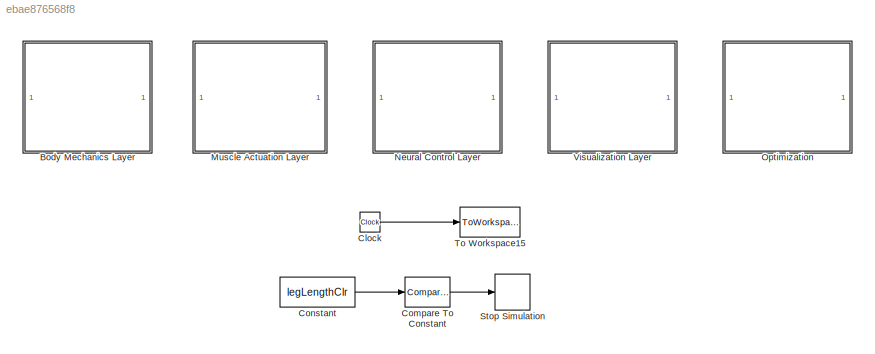
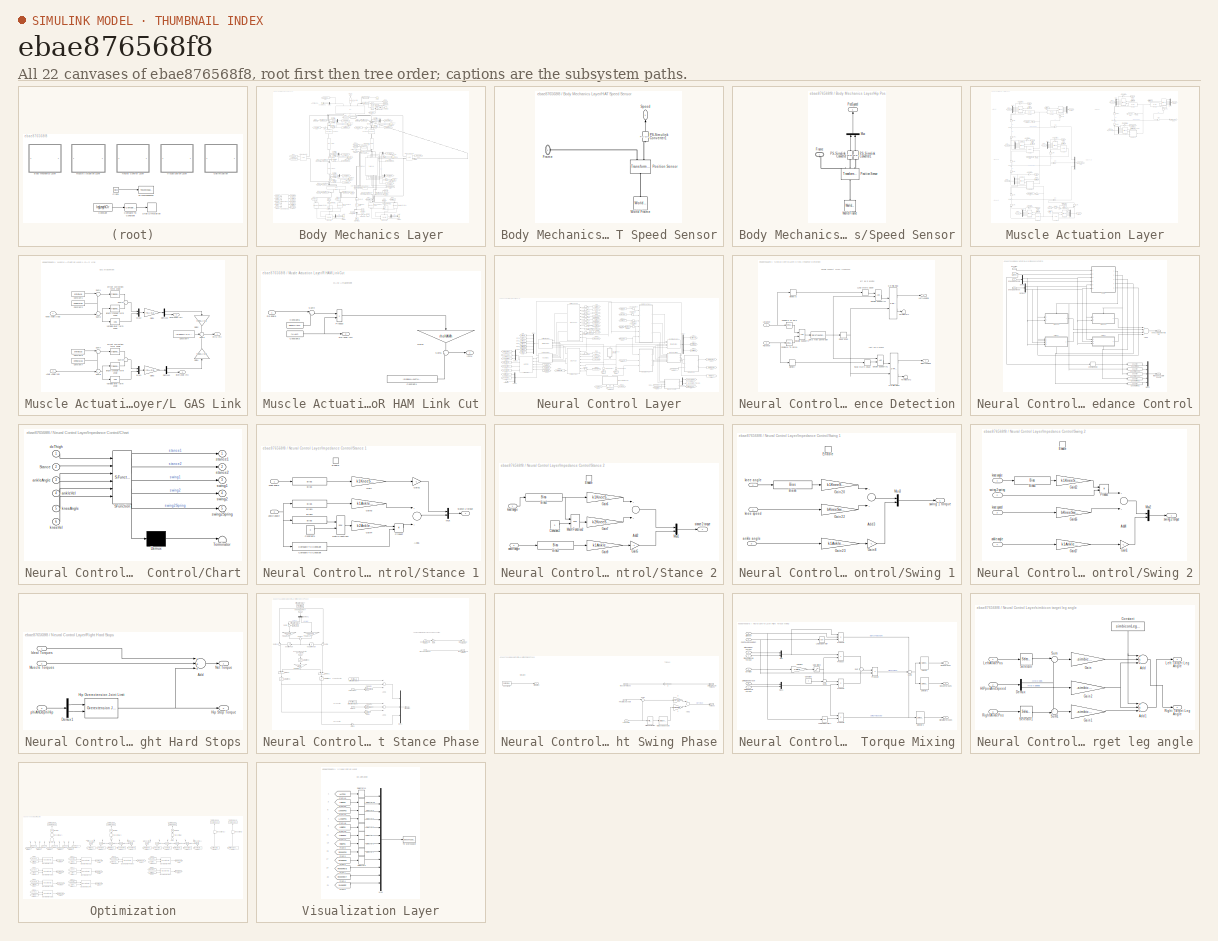
[diagram: thumbnail index - all 22 canvases of the model, root first then tree order]
MODEL slx_ebae876568f8
KIND model
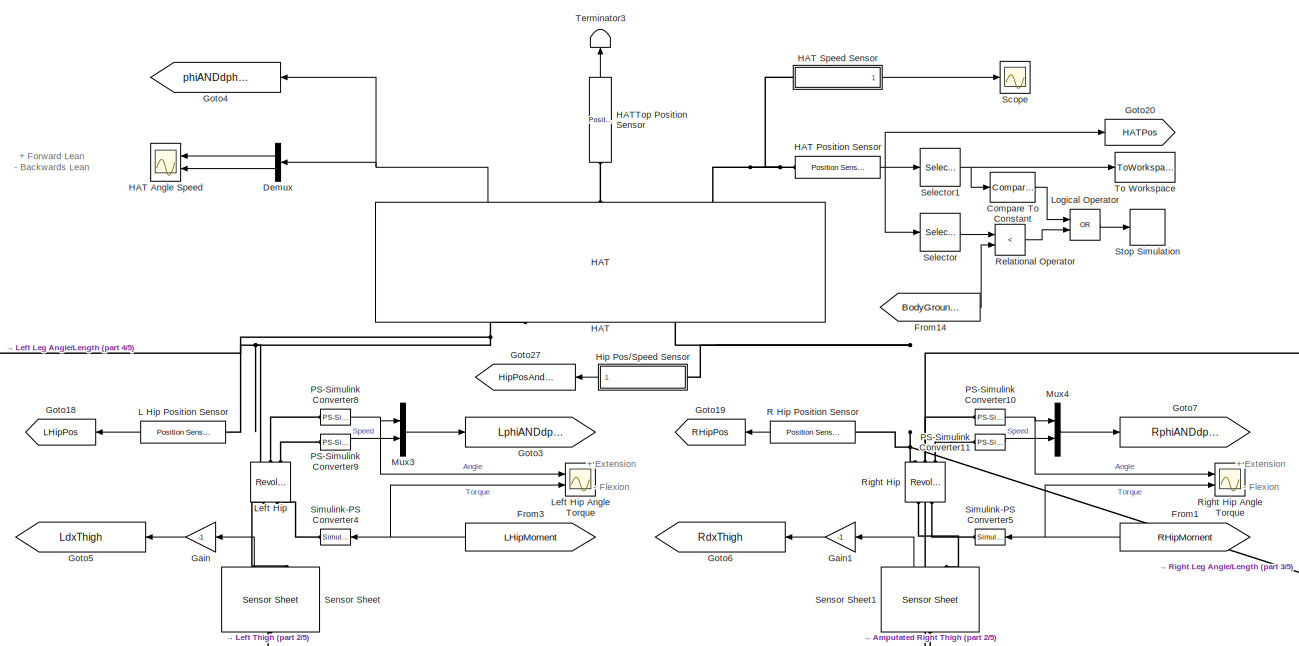
[diagram: Body Mechanics Layer - part 1/5, top center region]
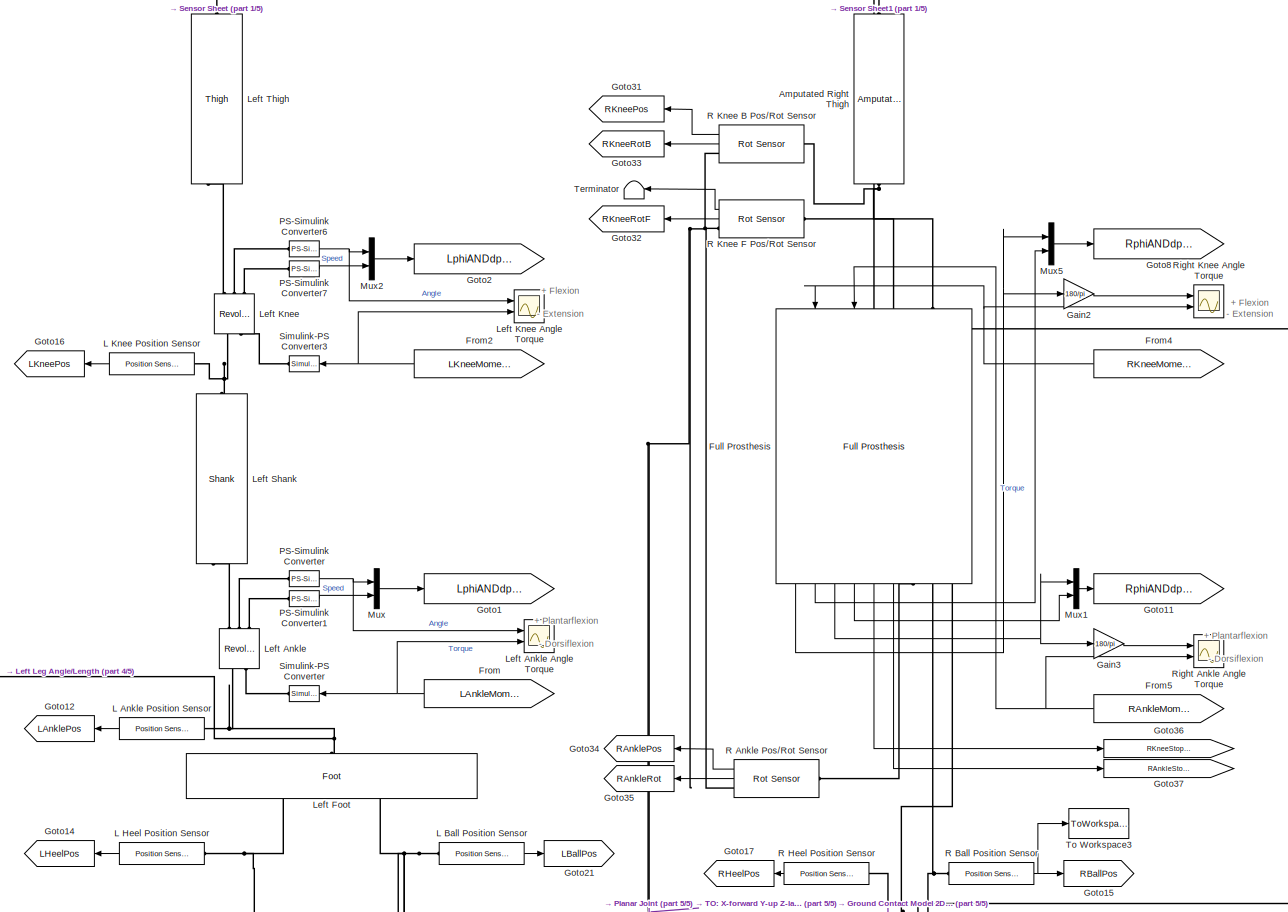
[diagram: Body Mechanics Layer - part 2/5, central region]
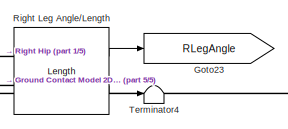
[diagram: Body Mechanics Layer - part 3/5, middle right region]
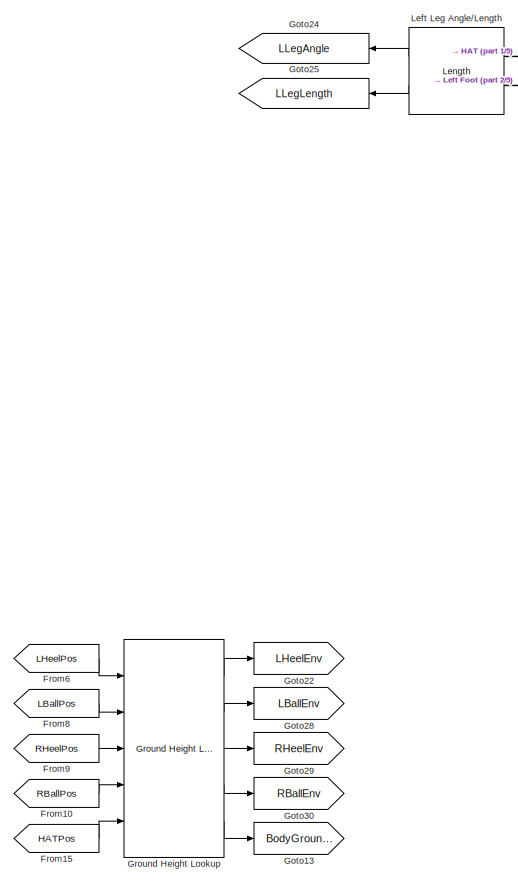
[diagram: Body Mechanics Layer - part 4/5, bottom left region]
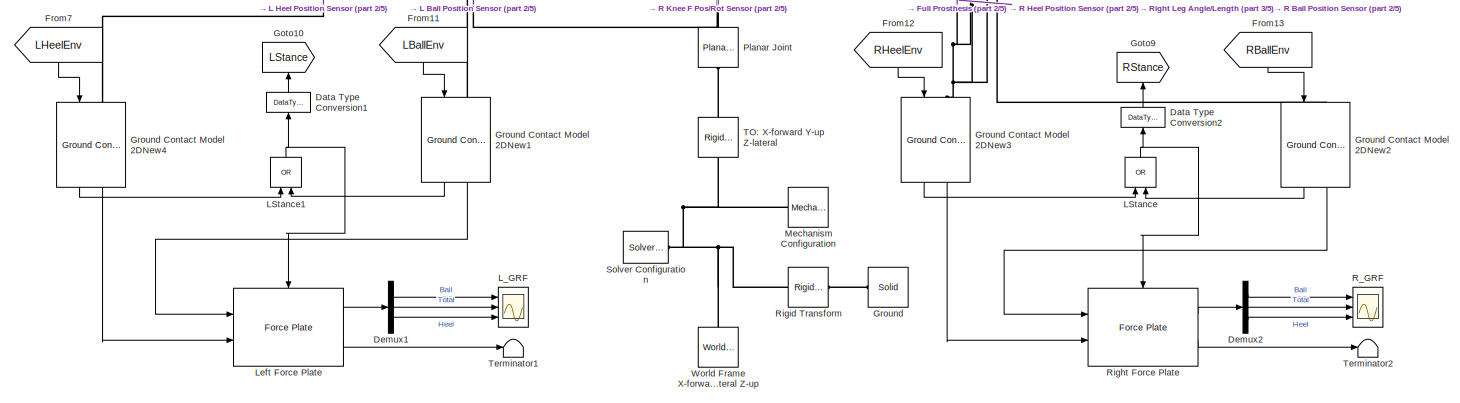
[diagram: Body Mechanics Layer - part 5/5, bottom center region]
BLOCK [SubSystem] Body Mechanics Layer
  Ports = []
  RequestExecContextInheritance = off
BLOCK [Reference] Body Mechanics Layer/Amputated Right Thigh  REF=NeuroMuscularLibrary/Amputated Thigh
  Ports = [0, 0, 0, 0, 0, 1, 1]
  SourceBlock = NeuroMuscularLibrary/Amputated Thigh
  SourceType = SubSystem
BLOCK [Reference] Body Mechanics Layer/Compare To Constant  REF=simulink/Logic and Bit
Operations/Compare
To Constant
  OutDataTypeStr = boolean
  Ports = [1, 1]
  SourceBlock = simulink/Logic and Bit\nOperations/Compare\nTo Constant
  SourceType = Compare To Constant
  ZeroCross = on
  const = 100
  relop = >
BLOCK [DataTypeConversion] Body Mechanics Layer/Data Type Conversion1
  OutDataTypeStr = double
  RndMeth = Floor
  SaturateOnIntegerOverflow = off
BLOCK [DataTypeConversion] Body Mechanics Layer/Data Type Conversion2
  OutDataTypeStr = double
  RndMeth = Floor
  SaturateOnIntegerOverflow = off
BLOCK [Demux] Body Mechanics Layer/Demux
  DisplayOption = bar
  Outputs = 2
  Ports = [1, 2]
BLOCK [Demux] Body Mechanics Layer/Demux1
  DisplayOption = bar
  Outputs = 3
  Ports = [1, 3]
BLOCK [Demux] Body Mechanics Layer/Demux2
  DisplayOption = bar
  Outputs = 3
  Ports = [1, 3]
BLOCK [From] Body Mechanics Layer/From
  GotoTag = LAnkleMoment
  TagVisibility = global
BLOCK [From] Body Mechanics Layer/From1
  GotoTag = RHipMoment
  TagVisibility = global
BLOCK [From] Body Mechanics Layer/From10
  GotoTag = RBallPos
  TagVisibility = global
BLOCK [From] Body Mechanics Layer/From11
  GotoTag = LBallEnv
BLOCK [From] Body Mechanics Layer/From12
  GotoTag = RHeelEnv
BLOCK [From] Body Mechanics Layer/From13
  GotoTag = RBallEnv
BLOCK [From] Body Mechanics Layer/From14
  GotoTag = BodyGroundy
BLOCK [From] Body Mechanics Layer/From15
  GotoTag = HATPos
  TagVisibility = global
BLOCK [From] Body Mechanics Layer/From2
  GotoTag = LKneeMoment
  TagVisibility = global
BLOCK [From] Body Mechanics Layer/From3
  GotoTag = LHipMoment
  TagVisibility = global
BLOCK [From] Body Mechanics Layer/From4
  GotoTag = RKneeMoment
  TagVisibility = global
BLOCK [From] Body Mechanics Layer/From5
  GotoTag = RAnkleMoment
  TagVisibility = global
BLOCK [From] Body Mechanics Layer/From6
  GotoTag = LHeelPos
  TagVisibility = global
BLOCK [From] Body Mechanics Layer/From7
  GotoTag = LHeelEnv
BLOCK [From] Body Mechanics Layer/From8
  GotoTag = LBallPos
  TagVisibility = global
BLOCK [From] Body Mechanics Layer/From9
  GotoTag = RHeelPos
  TagVisibility = global
BLOCK [Reference] Body Mechanics Layer/Full Prosthesis  REF=NeuroMuscularLibrary/Full Prosthesis
  FunctionWithSeparateData = off
  GeneratePreprocessorConditionals = off
  Ports = [2, 6, 0, 0, 0, 2, 3]
  ShowPortLabels = FromPortIcon
  SourceBlock = NeuroMuscularLibrary/Full Prosthesis
  SystemSampleTime = -1
BLOCK [Gain] Body Mechanics Layer/Gain
  Gain = -1
  OutDataTypeStr = Inherit: Inherit via internal rule
  ParamDataTypeStr = Inherit: Inherit via internal rule
  SaturateOnIntegerOverflow = off
BLOCK [Gain] Body Mechanics Layer/Gain1
  Gain = -1
  OutDataTypeStr = Inherit: Inherit via internal rule
  ParamDataTypeStr = Inherit: Inherit via internal rule
  SaturateOnIntegerOverflow = off
BLOCK [Gain] Body Mechanics Layer/Gain2
  Gain = 180/pi
  OutDataTypeStr = Inherit: Inherit via internal rule
  ParamDataTypeStr = Inherit: Inherit via internal rule
  SaturateOnIntegerOverflow = off
BLOCK [Gain] Body Mechanics Layer/Gain3
  Gain = 180/pi
  OutDataTypeStr = Inherit: Inherit via internal rule
  ParamDataTypeStr = Inherit: Inherit via internal rule
  SaturateOnIntegerOverflow = off
BLOCK [Goto] Body Mechanics Layer/Goto1
  GotoTag = LphiANDdphiAnkle
  TagVisibility = global
BLOCK [Goto] Body Mechanics Layer/Goto10
  GotoTag = LStance
  TagVisibility = global
BLOCK [Goto] Body Mechanics Layer/Goto11
  GotoTag = RphiANDdphiAnkle
  TagVisibility = global
BLOCK [Goto] Body Mechanics Layer/Goto12
  GotoTag = LAnklePos
  TagVisibility = global
BLOCK [Goto] Body Mechanics Layer/Goto13
  GotoTag = BodyGroundy
BLOCK [Goto] Body Mechanics Layer/Goto14
  GotoTag = LHeelPos
  TagVisibility = global
BLOCK [Goto] Body Mechanics Layer/Goto15
  GotoTag = RBallPos
  TagVisibility = global
BLOCK [Goto] Body Mechanics Layer/Goto16
  GotoTag = LKneePos
  TagVisibility = global
BLOCK [Goto] Body Mechanics Layer/Goto17
  GotoTag = RHeelPos
  TagVisibility = global
BLOCK [Goto] Body Mechanics Layer/Goto18
  GotoTag = LHipPos
  TagVisibility = global
BLOCK [Goto] Body Mechanics Layer/Goto19
  GotoTag = RHipPos
  TagVisibility = global
BLOCK [Goto] Body Mechanics Layer/Goto2
  GotoTag = LphiANDdphiKnee
  TagVisibility = global
BLOCK [Goto] Body Mechanics Layer/Goto20
  GotoTag = HATPos
  TagVisibility = global
BLOCK [Goto] Body Mechanics Layer/Goto21
  GotoTag = LBallPos
  TagVisibility = global
BLOCK [Goto] Body Mechanics Layer/Goto22
  GotoTag = LHeelEnv
BLOCK [Goto] Body Mechanics Layer/Goto23
  GotoTag = RLegAngle
  TagVisibility = global
BLOCK [Goto] Body Mechanics Layer/Goto24
  GotoTag = LLegAngle
  TagVisibility = global
BLOCK [Goto] Body Mechanics Layer/Goto25
  GotoTag = LLegLength
  TagVisibility = global
BLOCK [Goto] Body Mechanics Layer/Goto27
  GotoTag = HipPosAndSpeed
  TagVisibility = global
BLOCK [Goto] Body Mechanics Layer/Goto28
  GotoTag = LBallEnv
BLOCK [Goto] Body Mechanics Layer/Goto29
  GotoTag = RHeelEnv
BLOCK [Goto] Body Mechanics Layer/Goto3
  GotoTag = LphiANDdphiHip
  TagVisibility = global
BLOCK [Goto] Body Mechanics Layer/Goto30
  GotoTag = RBallEnv
BLOCK [Goto] Body Mechanics Layer/Goto31
  GotoTag = RKneePos
  TagVisibility = global
BLOCK [Goto] Body Mechanics Layer/Goto32
  GotoTag = RKneeRotF
  TagVisibility = global
BLOCK [Goto] Body Mechanics Layer/Goto33
  GotoTag = RKneeRotB
  TagVisibility = global
BLOCK [Goto] Body Mechanics Layer/Goto34
  GotoTag = RAnklePos
  TagVisibility = global
BLOCK [Goto] Body Mechanics Layer/Goto35
  GotoTag = RAnkleRot
  TagVisibility = global
BLOCK [Goto] Body Mechanics Layer/Goto36
  GotoTag = RKneeStopMoment
  TagVisibility = global
BLOCK [Goto] Body Mechanics Layer/Goto37
  GotoTag = RAnkleStopMoment
  TagVisibility = global
BLOCK [Goto] Body Mechanics Layer/Goto4
  GotoTag = phiANDdphiHAT
  TagVisibility = global
BLOCK [Goto] Body Mechanics Layer/Goto5
  GotoTag = LdxThigh
  TagVisibility = global
BLOCK [Goto] Body Mechanics Layer/Goto6
  GotoTag = RdxThigh
  TagVisibility = global
BLOCK [Goto] Body Mechanics Layer/Goto7
  GotoTag = RphiANDdphiHip
  TagVisibility = global
BLOCK [Goto] Body Mechanics Layer/Goto8
  GotoTag = RphiANDdphiKnee
  TagVisibility = global
BLOCK [Goto] Body Mechanics Layer/Goto9
  GotoTag = RStance
  TagVisibility = global
BLOCK [Reference] Body Mechanics Layer/Ground  REF=sm_lib/Body Elements/Solid
  BlockFunction = simmechanics.library.body_elements.solid
  BrickDimensionUnits = m
  BrickDimensions = [3 1 .01]
  CenterOfMass = [-footCenterToCGDist 0 0]
  CenterOfMassUnits = m
  ClassName = Solid
  CylinderLength = 1
  CylinderLengthUnits = m
  CylinderRadius = 1
  CylinderRadiusUnits = m
  Density = 1000
  DensityBased = on
  DensityUnits = kg/(m^3)
  EllipsoidRadii = [1 1 1]
  EllipsoidRadiiUnits = m
  ExtGeomFileType = STL
  ExtGeomFileUnits = m
  ExtrusionCrossSection = [1 1; -1 1; -1 -1; 1 -1]
  ExtrusionCrossSectionUnits = m
  ExtrusionLength = 1
  ExtrusionLengthUnits = m
  GeometryShape = Brick
  GraphicAmbientColor = [0.15 0.15 0.15 1.0]
  GraphicDiffuseColor = [0.4 0.2 0.0]
  GraphicEmissiveColor = [0.0 0.0 0.0 1.0]
  GraphicOpacity = 1.0
  GraphicShininess = 75
  GraphicSpecularColor = [0.5 0.5 0.5 1.0]
  GraphicType = FromGeometry
  GraphicVisPropType = SimpleVisualProperties
  InertiaType = CalculateFromGeometry
  LogSimulationData = off
  MarkerShape = Sphere
  MarkerSize = 10
  MarkerSizeUnits = m
  Mass = footMass
  MassUnits = kg
  MomentsOfInertia = [0 0 footInertia]
  MomentsOfInertiaUnits = kg*m^2
  PolygonNumSides = 3
  PolygonOuterRadius = 1
  PolygonOuterRadiusUnits = m
  Ports = [0, 0, 0, 0, 0, 0, 1]
  ProductsOfInertia = [0 0 0]
  ProductsOfInertiaUnits = kg*m^2
  RectangleSize = [1 1]
  RectangleSizeUnits = m
  RevolutionAngle = 180
  RevolutionAngleUnits = deg
  RevolutionCrossSection = [1 1; 1 -1; 2 -1; 2 1]
  RevolutionCrossSectionUnits = m
  RevolutionExtent = Full
  SourceBlock = sm_lib/Body Elements/Solid
  SourceType = Solid
  SphereRadius = 1
  SphereRadiusUnits = m
BLOCK [Reference] Body Mechanics Layer/Ground Contact Model 2DNew1  REF=NeuroMuscularLibrary/Ground Contact Model
  Ports = [1, 2, 0, 0, 0, 1]
  SourceBlock = NeuroMuscularLibrary/Ground Contact Model
  SourceType = SubSystem
BLOCK [Reference] Body Mechanics Layer/Ground Contact Model 2DNew2  REF=NeuroMuscularLibrary/Ground Contact Model
  Ports = [1, 2, 0, 0, 0, 1]
  SourceBlock = NeuroMuscularLibrary/Ground Contact Model
  SourceType = SubSystem
BLOCK [Reference] Body Mechanics Layer/Ground Contact Model 2DNew3  REF=NeuroMuscularLibrary/Ground Contact Model
  Ports = [1, 2, 0, 0, 0, 1]
  SourceBlock = NeuroMuscularLibrary/Ground Contact Model
  SourceType = SubSystem
BLOCK [Reference] Body Mechanics Layer/Ground Contact Model 2DNew4  REF=NeuroMuscularLibrary/Ground Contact Model
  Ports = [1, 2, 0, 0, 0, 1]
  SourceBlock = NeuroMuscularLibrary/Ground Contact Model
  SourceType = SubSystem
BLOCK [Reference] Body Mechanics Layer/Ground Height Lookup  REF=NeuroMuscularLibrary/Ground Height Lookup
  Ports = [5, 5]
  SourceBlock = NeuroMuscularLibrary/Ground Height Lookup
  SourceType = SubSystem
BLOCK [Reference] Body Mechanics Layer/HAT  REF=NeuroMuscularLibrary/HAT
  Ports = [0, 1, 0, 0, 0, 2, 2]
  SourceBlock = NeuroMuscularLibrary/HAT
  SourceType = SubSystem
BLOCK [Scope] Body Mechanics Layer/HAT Angle Speed
  DataFormat = StructureWithTime
  Floating = off
  NumInputPorts = 2
  Ports = [2]
  SampleTime = 0
  SaveName = ScopeData6
  ShowLegends = on
  TimeRange = 2
  YMax = 3.25~15
  YMin = 0~-3
  ZoomMode = yonly
BLOCK [Reference] Body Mechanics Layer/HAT Position Sensor  REF=NeuroMuscularLibrary/Position Sensor
  Ports = [0, 1, 0, 0, 0, 1]
  SourceBlock = NeuroMuscularLibrary/Position Sensor
  SourceType = SubSystem
BLOCK [SubSystem] Body Mechanics Layer/HAT Speed Sensor
  Ports = [0, 1, 0, 0, 0, 1]
  RequestExecContextInheritance = off
BLOCK [PMIOPort] Body Mechanics Layer/HAT Speed Sensor/Frame
  Port = 1
  Side = Left
BLOCK [Reference] Body Mechanics Layer/HAT Speed Sensor/PS-Simulink Converter1  REF=nesl_utility/PS-Simulink
Converter
  AffineConversion = off
  Frequencies = []
  LeftPortType = input
  PhysicalDomain = network_engine_domain
  Ports = [0, 1, 0, 0, 0, 1]
  PseudoPeriodic = off
  RightPortType = output
  SourceBlock = nesl_utility/PS-Simulink\nConverter
  SourceType = PS-Simulink\nConverter
  SubClassName = ps_output
  Unit = m/s
BLOCK [Reference] Body Mechanics Layer/HAT Speed Sensor/Position Sensor  REF=sm_lib/Frames and
Transforms/Transform
Sensor
  BlockFunction = simmechanics.library.frames_transforms.transform_sensor
  ClassName = TransformSensor
  LogSimulationData = off
  MeasurementFrame = World
  Ports = [0, 0, 0, 0, 0, 1, 2]
  SenseAlpha1 = off
  SenseAlpha2 = off
  SenseAlpha3 = off
  SenseAlphaX = off
  SenseAlphaY = off
  SenseAlphaZ = off
  SenseAngle = off
  SenseAngle1 = off
  SenseAngle2 = off
  SenseAngle3 = off
  SenseAxis = off
  SenseAzim = off
  SenseAzimDDot = off
  SenseAzimDot = off
  SenseDist = off
  SenseDistDDot = off
  SenseDistDot = off
  SenseInc = off
  SenseIncDDot = off
  SenseIncDot = off
  SenseOmega1 = off
  SenseOmega2 = off
  SenseOmega3 = off
  SenseOmegaX = off
  SenseOmegaY = off
  SenseOmegaZ = off
  SenseQ = off
  SenseQDDot = off
  SenseQDot = off
  SenseR = off
  SenseRDDot = off
  SenseRDot = off
  SenseRad = off
  SenseRadDDot = off
  SenseRadDot = off
  SenseX = off
  SenseXDDot = off
  SenseXDot = on
  SenseY = off
  SenseYDDot = off
  SenseYDot = off
  SenseZ = off
  SenseZDDot = off
  SenseZDot = off
  SourceBlock = sm_lib/Frames and\nTransforms/Transform\nSensor
  SourceType = Transform\nSensor
BLOCK [Outport] Body Mechanics Layer/HAT Speed Sensor/Speed
  IconDisplay = Port number
BLOCK [Reference] Body Mechanics Layer/HAT Speed Sensor/World Frame  REF=sm_lib/Frames and
Transforms/World Frame
  BlockFunction = simmechanics.library.frames_transforms.world_frame
  ClassName = WorldFrame
  LogSimulationData = off
  Ports = [0, 0, 0, 0, 0, 0, 1]
  SourceBlock = sm_lib/Frames and\nTransforms/World Frame
  SourceType = World Frame
BLOCK [Reference] Body Mechanics Layer/HATTop Position Sensor  REF=NeuroMuscularLibrary/Position Sensor
  Ports = [0, 1, 0, 0, 0, 1]
  SourceBlock = NeuroMuscularLibrary/Position Sensor
  SourceType = SubSystem
BLOCK [SubSystem] Body Mechanics Layer/Hip Pos//Speed Sensor
  Ports = [0, 1, 0, 0, 0, 1]
  RequestExecContextInheritance = off
BLOCK [PMIOPort] Body Mechanics Layer/Hip Pos//Speed Sensor/Frame
  Port = 1
  Side = Left
BLOCK [Mux] Body Mechanics Layer/Hip Pos//Speed Sensor/Mux
  DisplayOption = bar
  Inputs = 2
  Ports = [2, 1]
BLOCK [Reference] Body Mechanics Layer/Hip Pos//Speed Sensor/PS-Simulink Converter  REF=nesl_utility/PS-Simulink
Converter
  AffineConversion = off
  Frequencies = []
  LeftPortType = input
  PhysicalDomain = network_engine_domain
  Ports = [0, 1, 0, 0, 0, 1]
  PseudoPeriodic = off
  RightPortType = output
  SourceBlock = nesl_utility/PS-Simulink\nConverter
  SourceType = PS-Simulink\nConverter
  SubClassName = ps_output
  Unit = m
BLOCK [Reference] Body Mechanics Layer/Hip Pos//Speed Sensor/PS-Simulink Converter1  REF=nesl_utility/PS-Simulink
Converter
  AffineConversion = off
  Frequencies = []
  LeftPortType = input
  PhysicalDomain = network_engine_domain
  Ports = [0, 1, 0, 0, 0, 1]
  PseudoPeriodic = off
  RightPortType = output
  SourceBlock = nesl_utility/PS-Simulink\nConverter
  SourceType = PS-Simulink\nConverter
  SubClassName = ps_output
  Unit = m/s
BLOCK [Outport] Body Mechanics Layer/Hip Pos//Speed Sensor/PosSpeed
  IconDisplay = Port number
BLOCK [Reference] Body Mechanics Layer/Hip Pos//Speed Sensor/Position Sensor  REF=sm_lib/Frames and
Transforms/Transform
Sensor
  BlockFunction = simmechanics.library.frames_transforms.transform_sensor
  ClassName = TransformSensor
  LogSimulationData = off
  MeasurementFrame = World
  Ports = [0, 0, 0, 0, 0, 1, 3]
  SenseAlpha1 = off
  SenseAlpha2 = off
  SenseAlpha3 = off
  SenseAlphaX = off
  SenseAlphaY = off
  SenseAlphaZ = off
  SenseAngle = off
  SenseAngle1 = off
  SenseAngle2 = off
  SenseAngle3 = off
  SenseAxis = off
  SenseAzim = off
  SenseAzimDDot = off
  SenseAzimDot = off
  SenseDist = off
  SenseDistDDot = off
  SenseDistDot = off
  SenseInc = off
  SenseIncDDot = off
  SenseIncDot = off
  SenseOmega1 = off
  SenseOmega2 = off
  SenseOmega3 = off
  SenseOmegaX = off
  SenseOmegaY = off
  SenseOmegaZ = off
  SenseQ = off
  SenseQDDot = off
  SenseQDot = off
  SenseR = off
  SenseRDDot = off
  SenseRDot = off
  SenseRad = off
  SenseRadDDot = off
  SenseRadDot = off
  SenseX = on
  SenseXDDot = off
  SenseXDot = on
  SenseY = off
  SenseYDDot = off
  SenseYDot = off
  SenseZ = off
  SenseZDDot = off
  SenseZDot = off
  SourceBlock = sm_lib/Frames and\nTransforms/Transform\nSensor
  SourceType = Transform\nSensor
BLOCK [Reference] Body Mechanics Layer/Hip Pos//Speed Sensor/World Frame  REF=sm_lib/Frames and
Transforms/World Frame
  BlockFunction = simmechanics.library.frames_transforms.world_frame
  ClassName = WorldFrame
  LogSimulationData = off
  Ports = [0, 0, 0, 0, 0, 0, 1]
  SourceBlock = sm_lib/Frames and\nTransforms/World Frame
  SourceType = World Frame
BLOCK [Reference] Body Mechanics Layer/L Ankle Position Sensor  REF=NeuroMuscularLibrary/Position Sensor
  Ports = [0, 1, 0, 0, 0, 1]
  SourceBlock = NeuroMuscularLibrary/Position Sensor
  SourceType = SubSystem
BLOCK [Reference] Body Mechanics Layer/L Ball Position Sensor  REF=NeuroMuscularLibrary/Position Sensor
  Ports = [0, 1, 0, 0, 0, 1]
  SourceBlock = NeuroMuscularLibrary/Position Sensor
  SourceType = SubSystem
BLOCK [Reference] Body Mechanics Layer/L Heel Position Sensor  REF=NeuroMuscularLibrary/Position Sensor
  Ports = [0, 1, 0, 0, 0, 1]
  SourceBlock = NeuroMuscularLibrary/Position Sensor
  SourceType = SubSystem
BLOCK [Reference] Body Mechanics Layer/L Hip Position Sensor  REF=NeuroMuscularLibrary/Position Sensor
  Ports = [0, 1, 0, 0, 0, 1]
  SourceBlock = NeuroMuscularLibrary/Position Sensor
  SourceType = SubSystem
BLOCK [Reference] Body Mechanics Layer/L Knee Position Sensor  REF=NeuroMuscularLibrary/Position Sensor
  Ports = [0, 1, 0, 0, 0, 1]
  SourceBlock = NeuroMuscularLibrary/Position Sensor
  SourceType = SubSystem
BLOCK [Logic] Body Mechanics Layer/LStance
  AllPortsSameDT = off
  Operator = OR
  OutDataTypeStr = boolean
  Ports = [2, 1]
BLOCK [Logic] Body Mechanics Layer/LStance1
  AllPortsSameDT = off
  Operator = OR
  OutDataTypeStr = boolean
  Ports = [2, 1]
BLOCK [Scope] Body Mechanics Layer/L_GRF
  Floating = off
  NumInputPorts = 3
  Ports = [3]
  SampleTime = 0.002
  SaveName = GRF_Heel
  ShowLegends = on
  TimeRange = 0.07974047754022245
  YMax = 45~45~130
  YMin = -40~-40~-30
  ZoomMode = xonly
BLOCK [Reference] Body Mechanics Layer/Left Ankle  REF=sm_lib/Joints/Revolute Joint
  BlockFunction = simmechanics.library.joints.revolute_joint
  ClassName = RevoluteJoint
  CompositeWrenchDir = FollowerOnBase
  CompositeWrenchFrame = BaseFrame
  DampingCoefficient = 0
  DampingCoefficientUnits = N*m/(deg/s)
  EquilibriumPosition = 0
  EquilibriumPositionUnits = deg
  LogSimulationData = off
  MotionActuationMode = ComputedMotion
  Ports = [0, 0, 0, 0, 0, 2, 3]
  PositionTargetPriority = High
  PositionTargetSpecify = on
  PositionTargetValue = LphiAnkle0
  PositionTargetValueUnits = rad
  SenseAcceleration = off
  SenseConstraintForce = off
  SenseConstraintForceX = off
  SenseConstraintForceY = off
  SenseConstraintForceZ = off
  SenseConstraintTorque = off
  SenseConstraintTorqueX = off
  SenseConstraintTorqueY = off
  SenseConstraintTorqueZ = off
  SensePosition = on
  SenseTorqueForce = off
  SenseTotalForce = off
  SenseTotalForceX = off
  SenseTotalForceY = off
  SenseTotalForceZ = off
  SenseTotalTorque = off
  SenseTotalTorqueX = off
  SenseTotalTorqueY = off
  SenseTotalTorqueZ = off
  SenseVelocity = on
  SourceBlock = sm_lib/Joints/Revolute Joint
  SourceType = Revolute Joint
  SpringStiffness = 0
  SpringStiffnessUnits = N*m/deg
  TorqueActuationMode = InputTorque
  VelocityTargetPriority = Low
  VelocityTargetSpecify = on
  VelocityTargetValue = 0
  VelocityTargetValueUnits = rad/s
BLOCK [Scope] Body Mechanics Layer/Left Ankle Angle Torque
  DataFormat = StructureWithTime
  Floating = off
  LegendLocations = 0.82915     0.92894     0.12555    0.031525\n0.81881     0.45669     0.13589    0.031525
  NumInputPorts = 2
  Ports = [2]
  SampleTime = 0
  SaveName = ScopeData4
  ShowLegends = on
  TimeRange = 3
  YMax = 0.8~140
  YMin = -0.6000000000000001~-20
  ZoomMode = xonly
BLOCK [Reference] Body Mechanics Layer/Left Foot  REF=NeuroMuscularLibrary/Foot
  Ports = [0, 0, 0, 0, 0, 2, 1]
  SourceBlock = NeuroMuscularLibrary/Foot
  SourceType = SubSystem
BLOCK [Reference] Body Mechanics Layer/Left Force Plate  REF=NeuroMuscularLibrary/Force Plate
  Ports = [2, 2, 1]
  SourceBlock = NeuroMuscularLibrary/Force Plate
  SourceType = SubSystem
BLOCK [Reference] Body Mechanics Layer/Left Hip  REF=sm_lib/Joints/Revolute Joint
  BlockFunction = simmechanics.library.joints.revolute_joint
  ClassName = RevoluteJoint
  CompositeWrenchDir = FollowerOnBase
  CompositeWrenchFrame = BaseFrame
  DampingCoefficient = 0
  DampingCoefficientUnits = N*m/(deg/s)
  EquilibriumPosition = 0
  EquilibriumPositionUnits = deg
  LogSimulationData = off
  MotionActuationMode = ComputedMotion
  Ports = [0, 0, 0, 0, 0, 2, 3]
  PositionTargetPriority = High
  PositionTargetSpecify = on
  PositionTargetValue = LphiHip0
  PositionTargetValueUnits = rad
  SenseAcceleration = off
  SenseConstraintForce = off
  SenseConstraintForceX = off
  SenseConstraintForceY = off
  SenseConstraintForceZ = off
  SenseConstraintTorque = off
  SenseConstraintTorqueX = off
  SenseConstraintTorqueY = off
  SenseConstraintTorqueZ = off
  SensePosition = on
  SenseTorqueForce = off
  SenseTotalForce = off
  SenseTotalForceX = off
  SenseTotalForceY = off
  SenseTotalForceZ = off
  SenseTotalTorque = off
  SenseTotalTorqueX = off
  SenseTotalTorqueY = off
  SenseTotalTorqueZ = off
  SenseVelocity = on
  SourceBlock = sm_lib/Joints/Revolute Joint
  SourceType = Revolute Joint
  SpringStiffness = 0
  SpringStiffnessUnits = N*m/deg
  TorqueActuationMode = InputTorque
  VelocityTargetPriority = Low
  VelocityTargetSpecify = on
  VelocityTargetValue = 0
  VelocityTargetValueUnits = deg/s
BLOCK [Scope] Body Mechanics Layer/Left Hip Angle Torque
  DataFormat = StructureWithTime
  Floating = off
  LimitDataPoints = off
  NumInputPorts = 2
  Ports = [2]
  SampleTime = 0
  SaveName = ScopeData2
  ShowLegends = on
  TimeRange = 2
  YMax = 0.8~2
  YMin = -0.2~-14
  ZoomMode = xonly
BLOCK [Reference] Body Mechanics Layer/Left Knee  REF=sm_lib/Joints/Revolute Joint
  BlockFunction = simmechanics.library.joints.revolute_joint
  ClassName = RevoluteJoint
  CompositeWrenchDir = FollowerOnBase
  CompositeWrenchFrame = BaseFrame
  DampingCoefficient = 0
  DampingCoefficientUnits = N*m/(deg/s)
  EquilibriumPosition = 0
  EquilibriumPositionUnits = deg
  LogSimulationData = off
  MotionActuationMode = ComputedMotion
  Ports = [0, 0, 0, 0, 0, 2, 3]
  PositionTargetPriority = High
  PositionTargetSpecify = on
  PositionTargetValue = LphiKnee0
  PositionTargetValueUnits = rad
  SenseAcceleration = off
  SenseConstraintForce = off
  SenseConstraintForceX = off
  SenseConstraintForceY = off
  SenseConstraintForceZ = off
  SenseConstraintTorque = off
  SenseConstraintTorqueX = off
  SenseConstraintTorqueY = off
  SenseConstraintTorqueZ = off
  SensePosition = on
  SenseTorqueForce = off
  SenseTotalForce = off
  SenseTotalForceX = off
  SenseTotalForceY = off
  SenseTotalForceZ = off
  SenseTotalTorque = off
  SenseTotalTorqueX = off
  SenseTotalTorqueY = off
  SenseTotalTorqueZ = off
  SenseVelocity = on
  SourceBlock = sm_lib/Joints/Revolute Joint
  SourceType = Revolute Joint
  SpringStiffness = 0
  SpringStiffnessUnits = N*m/deg
  TorqueActuationMode = InputTorque
  VelocityTargetPriority = Low
  VelocityTargetSpecify = on
  VelocityTargetValue = 0
  VelocityTargetValueUnits = deg/s
BLOCK [Scope] Body Mechanics Layer/Left Knee Angle Torque
  DataFormat = StructureWithTime
  Floating = off
  LegendLocations = 0.8191     0.92621     0.12427    0.022632\n0.81372     0.45395     0.12966    0.022632
  LimitDataPoints = off
  NumInputPorts = 2
  Ports = [2]
  SampleTime = 0
  SaveName = ScopeData5
  ShowLegends = on
  TimeRange = 2
  YMax = 1.5~250
  YMin = -0.1~-100
  ZoomMode = xonly
BLOCK [Reference] Body Mechanics Layer/Left Leg Angle//Length  REF=NeuroMuscularLibrary/Leg Angle//Length
  Ports = [0, 2, 0, 0, 0, 2]
  SourceBlock = NeuroMuscularLibrary/Leg Angle//Length
  SourceType = SubSystem
BLOCK [Reference] Body Mechanics Layer/Left Shank  REF=NeuroMuscularLibrary/Shank
  Ports = [0, 0, 0, 0, 0, 2, 1]
  SourceBlock = NeuroMuscularLibrary/Shank
  SourceType = SubSystem
BLOCK [Reference] Body Mechanics Layer/Left Thigh  REF=NeuroMuscularLibrary/Thigh
  Ports = [0, 0, 0, 0, 0, 2, 1]
  SourceBlock = NeuroMuscularLibrary/Thigh
  SourceType = SubSystem
BLOCK [Logic] Body Mechanics Layer/Logical Operator
  AllPortsSameDT = off
  Operator = OR
  OutDataTypeStr = boolean
  Ports = [2, 1]
BLOCK [Reference] Body Mechanics Layer/Mechanism Configuration  REF=sm_lib/Utilities/Mechanism
Configuration
  BlockFunction = simmechanics.library.utilities.mechanism_configuration
  ClassName = MechanismConfiguration
  GravityUnits = m/s^2
  GravityVector = [0 0 -g]
  LinearizationDelta = 0.001
  LogSimulationData = off
  Ports = [0, 0, 0, 0, 0, 0, 1]
  SourceBlock = sm_lib/Utilities/Mechanism\nConfiguration
  SourceType = Mechanism\nConfiguration
  UniformGravity = Constant
BLOCK [Mux] Body Mechanics Layer/Mux
  DisplayOption = bar
  Inputs = 2
  Ports = [2, 1]
BLOCK [Mux] Body Mechanics Layer/Mux1
  DisplayOption = bar
  Inputs = 2
  Ports = [2, 1]
BLOCK [Mux] Body Mechanics Layer/Mux2
  DisplayOption = bar
  Inputs = 2
  Ports = [2, 1]
BLOCK [Mux] Body Mechanics Layer/Mux3
  DisplayOption = bar
  Inputs = 2
  Ports = [2, 1]
BLOCK [Mux] Body Mechanics Layer/Mux4
  DisplayOption = bar
  Inputs = 2
  Ports = [2, 1]
BLOCK [Mux] Body Mechanics Layer/Mux5
  DisplayOption = bar
  Inputs = 2
  Ports = [2, 1]
BLOCK [Reference] Body Mechanics Layer/PS-Simulink Converter  REF=nesl_utility/PS-Simulink
Converter
  AffineConversion = off
  Frequencies = []
  LeftPortType = input
  PhysicalDomain = network_engine_domain
  Ports = [0, 1, 0, 0, 0, 1]
  PseudoPeriodic = off
  RightPortType = output
  SourceBlock = nesl_utility/PS-Simulink\nConverter
  SourceType = PS-Simulink\nConverter
  SubClassName = ps_output
  Unit = rad
BLOCK [Reference] Body Mechanics Layer/PS-Simulink Converter1  REF=nesl_utility/PS-Simulink
Converter
  AffineConversion = off
  Frequencies = []
  LeftPortType = input
  PhysicalDomain = network_engine_domain
  Ports = [0, 1, 0, 0, 0, 1]
  PseudoPeriodic = off
  RightPortType = output
  SourceBlock = nesl_utility/PS-Simulink\nConverter
  SourceType = PS-Simulink\nConverter
  SubClassName = ps_output
  Unit = rad/s
BLOCK [Reference] Body Mechanics Layer/PS-Simulink Converter10  REF=nesl_utility/PS-Simulink
Converter
  AffineConversion = off
  Frequencies = []
  LeftPortType = input
  PhysicalDomain = network_engine_domain
  Ports = [0, 1, 0, 0, 0, 1]
  PseudoPeriodic = off
  RightPortType = output
  SourceBlock = nesl_utility/PS-Simulink\nConverter
  SourceType = PS-Simulink\nConverter
  SubClassName = ps_output
  Unit = rad
BLOCK [Reference] Body Mechanics Layer/PS-Simulink Converter11  REF=nesl_utility/PS-Simulink
Converter
  AffineConversion = off
  Frequencies = []
  LeftPortType = input
  PhysicalDomain = network_engine_domain
  Ports = [0, 1, 0, 0, 0, 1]
  PseudoPeriodic = off
  RightPortType = output
  SourceBlock = nesl_utility/PS-Simulink\nConverter
  SourceType = PS-Simulink\nConverter
  SubClassName = ps_output
  Unit = rad/s
BLOCK [Reference] Body Mechanics Layer/PS-Simulink Converter6  REF=nesl_utility/PS-Simulink
Converter
  AffineConversion = off
  Frequencies = []
  LeftPortType = input
  PhysicalDomain = network_engine_domain
  Ports = [0, 1, 0, 0, 0, 1]
  PseudoPeriodic = off
  RightPortType = output
  SourceBlock = nesl_utility/PS-Simulink\nConverter
  SourceType = PS-Simulink\nConverter
  SubClassName = ps_output
  Unit = rad
BLOCK [Reference] Body Mechanics Layer/PS-Simulink Converter7  REF=nesl_utility/PS-Simulink
Converter
  AffineConversion = off
  Frequencies = []
  LeftPortType = input
  PhysicalDomain = network_engine_domain
  Ports = [0, 1, 0, 0, 0, 1]
  PseudoPeriodic = off
  RightPortType = output
  SourceBlock = nesl_utility/PS-Simulink\nConverter
  SourceType = PS-Simulink\nConverter
  SubClassName = ps_output
  Unit = rad/s
BLOCK [Reference] Body Mechanics Layer/PS-Simulink Converter8  REF=nesl_utility/PS-Simulink
Converter
  AffineConversion = off
  Frequencies = []
  LeftPortType = input
  PhysicalDomain = network_engine_domain
  Ports = [0, 1, 0, 0, 0, 1]
  PseudoPeriodic = off
  RightPortType = output
  SourceBlock = nesl_utility/PS-Simulink\nConverter
  SourceType = PS-Simulink\nConverter
  SubClassName = ps_output
  Unit = rad
BLOCK [Reference] Body Mechanics Layer/PS-Simulink Converter9  REF=nesl_utility/PS-Simulink
Converter
  AffineConversion = off
  Frequencies = []
  LeftPortType = input
  PhysicalDomain = network_engine_domain
  Ports = [0, 1, 0, 0, 0, 1]
  PseudoPeriodic = off
  RightPortType = output
  SourceBlock = nesl_utility/PS-Simulink\nConverter
  SourceType = PS-Simulink\nConverter
  SubClassName = ps_output
  Unit = rad/s
BLOCK [Reference] Body Mechanics Layer/Planar Joint  REF=sm_lib/Joints/Planar Joint
  BlockFunction = simmechanics.library.joints.planar_joint
  ClassName = PlanarJoint
  CompositeWrenchDir = FollowerOnBase
  CompositeWrenchFrame = BaseFrame
  LogSimulationData = off
  Ports = [0, 0, 0, 0, 0, 1, 1]
  PxDampingCoefficient = 0
  PxDampingCoefficientUnits = N/(m/s)
  PxEquilibriumPosition = 0
  PxEquilibriumPositionUnits = m
  PxMotionActuationMode = ComputedMotion
  PxPositionTargetPriority = Low
  PxPositionTargetSpecify = on
  PxPositionTargetValue = 0
  PxPositionTargetValueUnits = m
  PxSenseAcceleration = off
  PxSensePosition = off
  PxSenseTorqueForce = off
  PxSenseVelocity = off
  PxSpringStiffness = 0
  PxSpringStiffnessUnits = N/m
  PxTorqueActuationMode = NoTorque
  PxVelocityTargetPriority = High
  PxVelocityTargetSpecify = on
  PxVelocityTargetValue = vx0
  PxVelocityTargetValueUnits = m/s
  PyDampingCoefficient = 0
  PyDampingCoefficientUnits = N/(m/s)
  PyEquilibriumPosition = 0
  PyEquilibriumPositionUnits = m
  PyMotionActuationMode = ComputedMotion
  PyPositionTargetPriority = Low
  PyPositionTargetSpecify = on
  PyPositionTargetValue = 0
  PyPositionTargetValueUnits = m
  PySenseAcceleration = off
  PySensePosition = off
  PySenseTorqueForce = off
  PySenseVelocity = off
  PySpringStiffness = 0
  PySpringStiffnessUnits = N/m
  PyTorqueActuationMode = NoTorque
  PyVelocityTargetPriority = Low
  PyVelocityTargetSpecify = on
  PyVelocityTargetValue = 0
  PyVelocityTargetValueUnits = m/s
  RzDampingCoefficient = 0
  RzDampingCoefficientUnits = N*m/(deg/s)
  RzEquilibriumPosition = 0
  RzEquilibriumPositionUnits = deg
  RzMotionActuationMode = ComputedMotion
  RzPositionTargetPriority = Low
  RzPositionTargetSpecify = on
  RzPositionTargetValue = 0
  RzPositionTargetValueUnits = deg
  RzSenseAcceleration = off
  RzSensePosition = off
  RzSenseTorqueForce = off
  RzSenseVelocity = off
  RzSpringStiffness = 0
  RzSpringStiffnessUnits = N*m/deg
  RzTorqueActuationMode = NoTorque
  RzVelocityTargetPriority = Low
  RzVelocityTargetSpecify = on
  RzVelocityTargetValue = 0
  RzVelocityTargetValueUnits = deg/s
  SenseConstraintForce = off
  SenseConstraintForceX = off
  SenseConstraintForceY = off
  SenseConstraintForceZ = off
  SenseConstraintTorque = off
  SenseConstraintTorqueX = off
  SenseConstraintTorqueY = off
  SenseConstraintTorqueZ = off
  SenseTotalForce = off
  SenseTotalForceX = off
  SenseTotalForceY = off
  SenseTotalForceZ = off
  SenseTotalTorque = off
  SenseTotalTorqueX = off
  SenseTotalTorqueY = off
  SenseTotalTorqueZ = off
  SourceBlock = sm_lib/Joints/Planar Joint
  SourceType = Planar Joint
BLOCK [Reference] Body Mechanics Layer/R Ankle Pos//Rot Sensor  REF=NeuroMuscularLibrary/Pos//Rot Sensor
  Ports = [0, 2, 0, 0, 0, 1, 1]
  SourceBlock = NeuroMuscularLibrary/Pos//Rot Sensor
  SourceType = SubSystem
BLOCK [Reference] Body Mechanics Layer/R Ball Position Sensor  REF=NeuroMuscularLibrary/Position Sensor
  Ports = [0, 1, 0, 0, 0, 1]
  SourceBlock = NeuroMuscularLibrary/Position Sensor
  SourceType = SubSystem
BLOCK [Reference] Body Mechanics Layer/R Heel Position Sensor  REF=NeuroMuscularLibrary/Position Sensor
  Ports = [0, 1, 0, 0, 0, 1]
  SourceBlock = NeuroMuscularLibrary/Position Sensor
  SourceType = SubSystem
BLOCK [Reference] Body Mechanics Layer/R Hip Position Sensor  REF=NeuroMuscularLibrary/Position Sensor
  Ports = [0, 1, 0, 0, 0, 1]
  SourceBlock = NeuroMuscularLibrary/Position Sensor
  SourceType = SubSystem
BLOCK [Reference] Body Mechanics Layer/R Knee B Pos//Rot Sensor  REF=NeuroMuscularLibrary/Pos//Rot Sensor
  Ports = [0, 2, 0, 0, 0, 1, 1]
  SourceBlock = NeuroMuscularLibrary/Pos//Rot Sensor
  SourceType = SubSystem
BLOCK [Reference] Body Mechanics Layer/R Knee F Pos//Rot Sensor  REF=NeuroMuscularLibrary/Pos//Rot Sensor
  Ports = [0, 2, 0, 0, 0, 1, 1]
  SourceBlock = NeuroMuscularLibrary/Pos//Rot Sensor
  SourceType = SubSystem
BLOCK [Scope] Body Mechanics Layer/R_GRF
  Floating = off
  LimitDataPoints = off
  NumInputPorts = 3
  Ports = [3]
  SampleTime = 0.002
  SaveName = GRF_Heel1
  ShowLegends = on
  TimeRange = 0.00337774441733929
  YMax = 700~700~1
  YMin = 50~50~-1
  ZoomMode = xonly
BLOCK [RelationalOperator] Body Mechanics Layer/Relational Operator
  InputSameDT = off
  Operator = <
  OutDataTypeStr = boolean
  Ports = [2, 1]
BLOCK [Scope] Body Mechanics Layer/Right Ankle Angle Torque
  DataFormat = StructureWithTime
  Floating = off
  LegendLocations = 0.86898     0.94287    0.090416    0.017522\n0.86315     0.46481    0.096243    0.017522
  LimitDataPoints = off
  NumInputPorts = 2
  Ports = [2]
  SampleTime = 0
  SaveName = ankleData
  ShowLegends = on
  TimeRange = 0.35
  YMax = 25~60
  YMin = -5~-60
  ZoomMode = xonly
BLOCK [Reference] Body Mechanics Layer/Right Force Plate  REF=NeuroMuscularLibrary/Force Plate
  Ports = [2, 2, 1]
  SourceBlock = NeuroMuscularLibrary/Force Plate
  SourceType = SubSystem
BLOCK [Reference] Body Mechanics Layer/Right Hip  REF=sm_lib/Joints/Revolute Joint
  BlockFunction = simmechanics.library.joints.revolute_joint
  ClassName = RevoluteJoint
  CompositeWrenchDir = FollowerOnBase
  CompositeWrenchFrame = BaseFrame
  DampingCoefficient = 0
  DampingCoefficientUnits = N*m/(deg/s)
  EquilibriumPosition = 0
  EquilibriumPositionUnits = deg
  LogSimulationData = off
  MotionActuationMode = ComputedMotion
  Ports = [0, 0, 0, 0, 0, 2, 3]
  PositionTargetPriority = High
  PositionTargetSpecify = on
  PositionTargetValue = RphiHip0
  PositionTargetValueUnits = rad
  SenseAcceleration = off
  SenseConstraintForce = off
  SenseConstraintForceX = off
  SenseConstraintForceY = off
  SenseConstraintForceZ = off
  SenseConstraintTorque = off
  SenseConstraintTorqueX = off
  SenseConstraintTorqueY = off
  SenseConstraintTorqueZ = off
  SensePosition = on
  SenseTorqueForce = off
  SenseTotalForce = off
  SenseTotalForceX = off
  SenseTotalForceY = off
  SenseTotalForceZ = off
  SenseTotalTorque = off
  SenseTotalTorqueX = off
  SenseTotalTorqueY = off
  SenseTotalTorqueZ = off
  SenseVelocity = on
  SourceBlock = sm_lib/Joints/Revolute Joint
  SourceType = Revolute Joint
  SpringStiffness = 0
  SpringStiffnessUnits = N*m/deg
  TorqueActuationMode = InputTorque
  VelocityTargetPriority = Low
  VelocityTargetSpecify = on
  VelocityTargetValue = 0
  VelocityTargetValueUnits = deg/s
BLOCK [Scope] Body Mechanics Layer/Right Hip Angle Torque
  DataFormat = StructureWithTime
  Floating = off
  LimitDataPoints = off
  NumInputPorts = 2
  Ports = [2]
  SampleTime = 0
  SaveName = ScopeData12
  ShowLegends = on
  TimeRange = 2
  YMax = 0.8~2
  YMin = -0.2~-14
  ZoomMode = xonly
BLOCK [Scope] Body Mechanics Layer/Right Knee Angle Torque
  DataFormat = StructureWithTime
  Floating = off
  LimitDataPoints = off
  NumInputPorts = 2
  Ports = [2]
  SampleTime = 0
  SaveName = kneeData
  ShowLegends = on
  TimeRange = 1.5
  YMax = 34~20
  YMin = 19~-110
  ZoomMode = xonly
BLOCK [Reference] Body Mechanics Layer/Right Leg Angle//Length  REF=NeuroMuscularLibrary/Leg Angle//Length
  Ports = [0, 2, 0, 0, 0, 2]
  SourceBlock = NeuroMuscularLibrary/Leg Angle//Length
  SourceType = SubSystem
BLOCK [Reference] Body Mechanics Layer/Rigid Transform  REF=sm_lib/Frames and
Transforms/Rigid
Transform
  BaseAlignAxisA = +Y
  BaseAlignAxisB = +Z
  BlockFunction = simmechanics.library.frames_transforms.rigid_transform
  ClassName = RigidTransform
  FollAlignAxisA = +X
  FollAlignAxisB = +Y
  LogSimulationData = off
  Ports = [0, 0, 0, 0, 0, 1, 1]
  RotationAngle = 0
  RotationAngleUnits = deg
  RotationArbitraryAxis = [0 0 1]
  RotationMatrix = [1 0 0; 0 1 0; 0 0 1]
  RotationMethod = None
  RotationStandardAxis = +Z
  SourceBlock = sm_lib/Frames and\nTransforms/Rigid\nTransform
  SourceType = Rigid\nTransform
  TranslationCartesianOffset = [1  0 0]
  TranslationLengthUnit = m
  TranslationMethod = Cartesian
  TranslationROffset = 0
  TranslationROffsetUnits = m
  TranslationStandardAxis = +X
  TranslationStandardOffset = 1
  TranslationThetaOffset = 0
  TranslationThetaOffsetUnits = deg
  TranslationZOffset = 0
  TranslationZOffsetUnits = m
BLOCK [Scope] Body Mechanics Layer/Scope
  DataFormat = StructureWithTime
  Floating = off
  LimitDataPoints = off
  NumInputPorts = 1
  Ports = [1]
  SampleTime = 0
  SaveName = HATSpeed
  ShowLegends = off
BLOCK [Selector] Body Mechanics Layer/Selector
  Indices = [3]
  InputPortWidth = 3
  Ports = [1, 1]
BLOCK [Selector] Body Mechanics Layer/Selector1
  Indices = [1]
  InputPortWidth = 3
  Ports = [1, 1]
BLOCK [Reference] Body Mechanics Layer/Sensor Sheet  REF=NeuroMuscularLibrary/Sensor Sheet
  Ports = [0, 1, 0, 0, 0, 1, 1]
  SourceBlock = NeuroMuscularLibrary/Sensor Sheet
  SourceType = SubSystem
BLOCK [Reference] Body Mechanics Layer/Sensor Sheet1  REF=NeuroMuscularLibrary/Sensor Sheet
  Ports = [0, 1, 0, 0, 0, 1, 1]
  SourceBlock = NeuroMuscularLibrary/Sensor Sheet
  SourceType = SubSystem
BLOCK [Reference] Body Mechanics Layer/Simulink-PS Converter  REF=nesl_utility/Simulink-PS
Converter
  AffineConversion = off
  Frequencies = []
  InputFilterTimeConstant = 0.001
  InputFiltering = off
  LeftPortType = input
  NoiseDistribution = none
  NoiseParameters = []
  PhysicalDomain = network_engine_domain
  Ports = [1, 0, 0, 0, 0, 0, 1]
  PseudoPeriodic = off
  RightPortType = output
  SimscapeFilterOrder = 1
  SourceBlock = nesl_utility/Simulink-PS\nConverter
  SourceType = Simulink-PS\nConverter
  SubClassName = ps_input
  UdotUserProvided = 1
  Unit = N*m
BLOCK [Reference] Body Mechanics Layer/Simulink-PS Converter3  REF=nesl_utility/Simulink-PS
Converter
  AffineConversion = off
  Frequencies = []
  InputFilterTimeConstant = 0.001
  InputFiltering = off
  LeftPortType = input
  NoiseDistribution = none
  NoiseParameters = []
  PhysicalDomain = network_engine_domain
  Ports = [1, 0, 0, 0, 0, 0, 1]
  PseudoPeriodic = off
  RightPortType = output
  SimscapeFilterOrder = 1
  SourceBlock = nesl_utility/Simulink-PS\nConverter
  SourceType = Simulink-PS\nConverter
  SubClassName = ps_input
  UdotUserProvided = 1
  Unit = N*m
BLOCK [Reference] Body Mechanics Layer/Simulink-PS Converter4  REF=nesl_utility/Simulink-PS
Converter
  AffineConversion = off
  Frequencies = []
  InputFilterTimeConstant = 0.001
  InputFiltering = off
  LeftPortType = input
  NoiseDistribution = none
  NoiseParameters = []
  PhysicalDomain = network_engine_domain
  Ports = [1, 0, 0, 0, 0, 0, 1]
  PseudoPeriodic = off
  RightPortType = output
  SimscapeFilterOrder = 1
  SourceBlock = nesl_utility/Simulink-PS\nConverter
  SourceType = Simulink-PS\nConverter
  SubClassName = ps_input
  UdotUserProvided = 1
  Unit = N*m
BLOCK [Reference] Body Mechanics Layer/Simulink-PS Converter5  REF=nesl_utility/Simulink-PS
Converter
  AffineConversion = off
  Frequencies = []
  InputFilterTimeConstant = 0.001
  InputFiltering = off
  LeftPortType = input
  NoiseDistribution = none
  NoiseParameters = []
  PhysicalDomain = network_engine_domain
  Ports = [1, 0, 0, 0, 0, 0, 1]
  PseudoPeriodic = off
  RightPortType = output
  SimscapeFilterOrder = 1
  SourceBlock = nesl_utility/Simulink-PS\nConverter
  SourceType = Simulink-PS\nConverter
  SubClassName = ps_input
  UdotUserProvided = 1
  Unit = N*m
BLOCK [Reference] Body Mechanics Layer/Solver Configuration  REF=nesl_utility/Solver
Configuration
  AbsTol = 1e-06
  Accelerate = off
  AutomaticFiltering = on
  DelaysMemoryBudget = 1024
  DoDC = off
  DoFixedCost = off
  EnableSwitchedLinearOptims = on
  FilteringTimeConstant = 0.001
  FrequencyDomain = off
  Harmonics = []
  LeftPortType = input
  LinearAlgebra = Sparse
  LocalSolverChoice = NE_BACKWARD_EULER_ADVANCER
  LocalSolverSampleTime = 0.001
  MaxModeIter = 2
  MaxNonlinIter = 3
  MinStep = 1e-09
  PhysicalDomain = network_engine_domain
  Ports = [0, 0, 0, 0, 0, 0, 1]
  Profile = off
  RelTol = 0.001
  ResidualTolerance = 1e-09
  RightPortType = generic
  SimulateNoise = off
  SourceBlock = nesl_utility/Solver\nConfiguration
  SourceType = Solver\nConfiguration
  SubClassName = solver
  ToWorkspace = off
  Tones = []
  UseCCode = off
  UseLocalSampling = off
  UseLocalSolver = off
BLOCK [Stop] Body Mechanics Layer/Stop Simulation
BLOCK [Reference] Body Mechanics Layer/TO: X-forward Y-up Z-lateral  REF=sm_lib/Frames and
Transforms/Rigid
Transform
  BaseAlignAxisA = +Y
  BaseAlignAxisB = +X
  BlockFunction = simmechanics.library.frames_transforms.rigid_transform
  ClassName = RigidTransform
  FollAlignAxisA = +Z
  FollAlignAxisB = +X
  LogSimulationData = off
  Ports = [0, 0, 0, 0, 0, 1, 1]
  RotationAngle = 0
  RotationAngleUnits = deg
  RotationArbitraryAxis = [0 0 1]
  RotationMatrix = [1 0 0; 0 1 0; 0 0 1]
  RotationMethod = AlignedAxes
  RotationStandardAxis = +Z
  SourceBlock = sm_lib/Frames and\nTransforms/Rigid\nTransform
  SourceType = Rigid\nTransform
  TranslationCartesianOffset = [0 0 0]
  TranslationLengthUnit = m
  TranslationMethod = StandardAxis
  TranslationROffset = 0
  TranslationROffsetUnits = m
  TranslationStandardAxis = +Z
  TranslationStandardOffset = hatLeftHipToCenterDistWidth
  TranslationThetaOffset = 0
  TranslationThetaOffsetUnits = deg
  TranslationZOffset = 0
  TranslationZOffsetUnits = m
BLOCK [Terminator] Body Mechanics Layer/Terminator
BLOCK [Terminator] Body Mechanics Layer/Terminator1
BLOCK [Terminator] Body Mechanics Layer/Terminator2
BLOCK [Terminator] Body Mechanics Layer/Terminator3
BLOCK [Terminator] Body Mechanics Layer/Terminator4
BLOCK [ToWorkspace] Body Mechanics Layer/To Workspace
  MaxDataPoints = 1
  Ports = [1]
  SampleTime = -1
  VariableName = HATPos
BLOCK [ToWorkspace] Body Mechanics Layer/To Workspace3
  MaxDataPoints = inf
  Ports = [1]
  SampleTime = -1
  SaveFormat = Structure With Time
  VariableName = RToePos
BLOCK [Reference] Body Mechanics Layer/World Frame X-forward Y-lateral Z-up  REF=sm_lib/Frames and
Transforms/World Frame
  BlockFunction = simmechanics.library.frames_transforms.world_frame
  ClassName = WorldFrame
  LogSimulationData = off
  Ports = [0, 0, 0, 0, 0, 0, 1]
  SourceBlock = sm_lib/Frames and\nTransforms/World Frame
  SourceType = World Frame
BLOCK [Clock] Clock
BLOCK [Reference] Compare To Constant  REF=simulink/Logic and Bit
Operations/Compare
To Constant
  OutDataTypeStr = boolean
  Ports = [1, 1]
  SourceBlock = simulink/Logic and Bit\nOperations/Compare\nTo Constant
  SourceType = Compare To Constant
  ZeroCross = on
  const = 1
  relop = >
BLOCK [Constant] Constant
  Value = legLengthClr
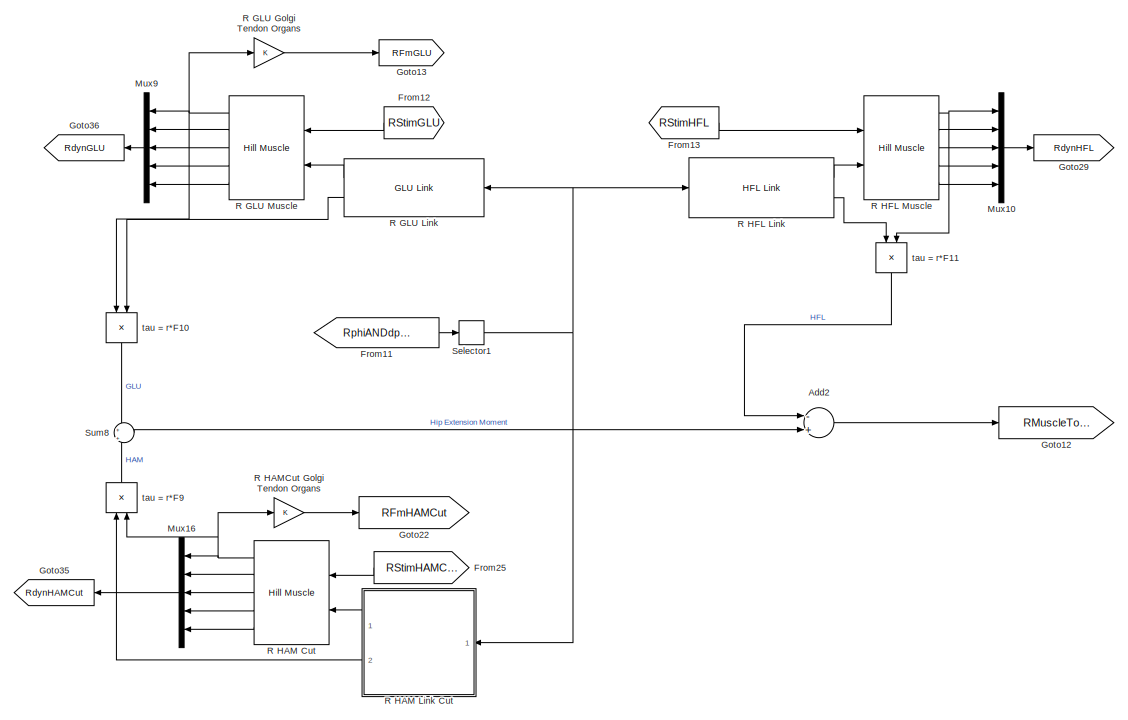
[diagram: Muscle Actuation Layer - part 1/6, top right region]
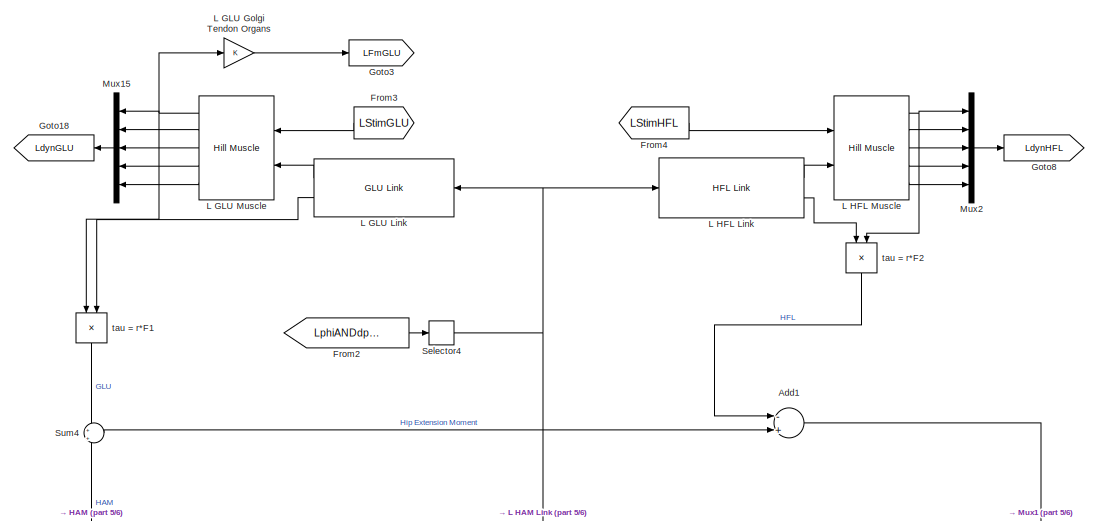
[diagram: Muscle Actuation Layer - part 2/6, top left region]
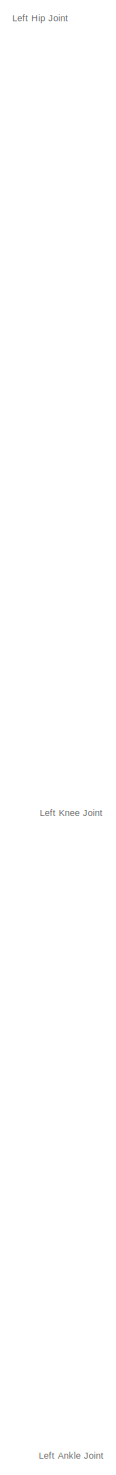
[diagram: Muscle Actuation Layer - part 3/6, middle left region]
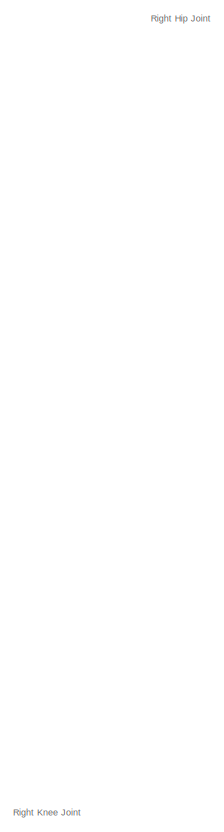
[diagram: Muscle Actuation Layer - part 4/6, top center region]
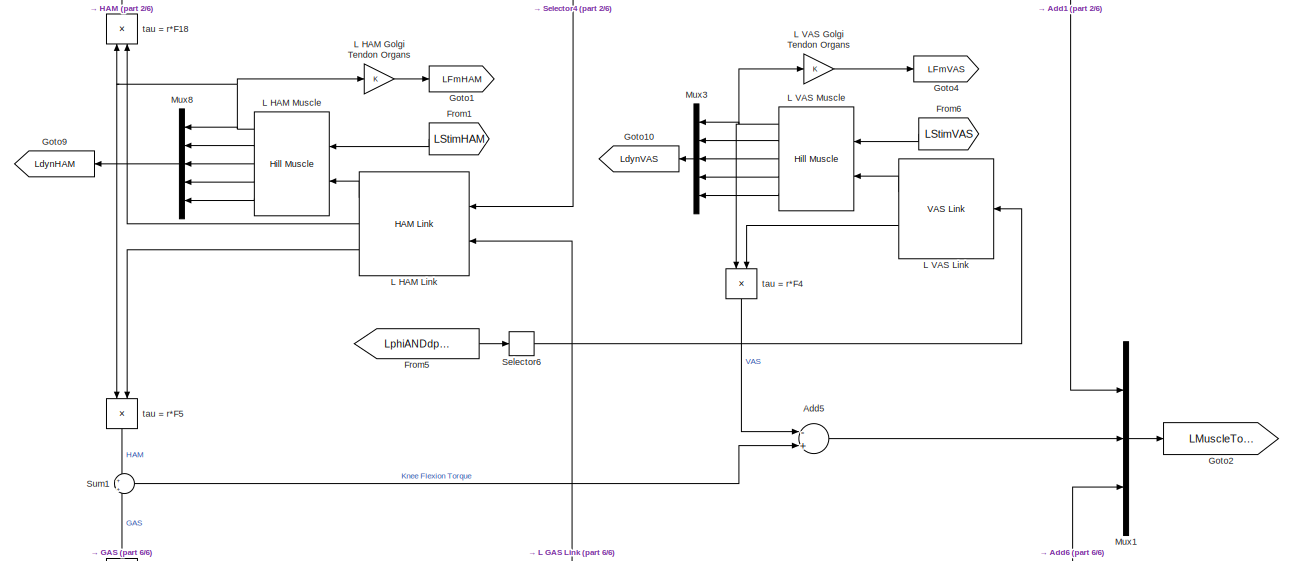
[diagram: Muscle Actuation Layer - part 5/6, middle left region]
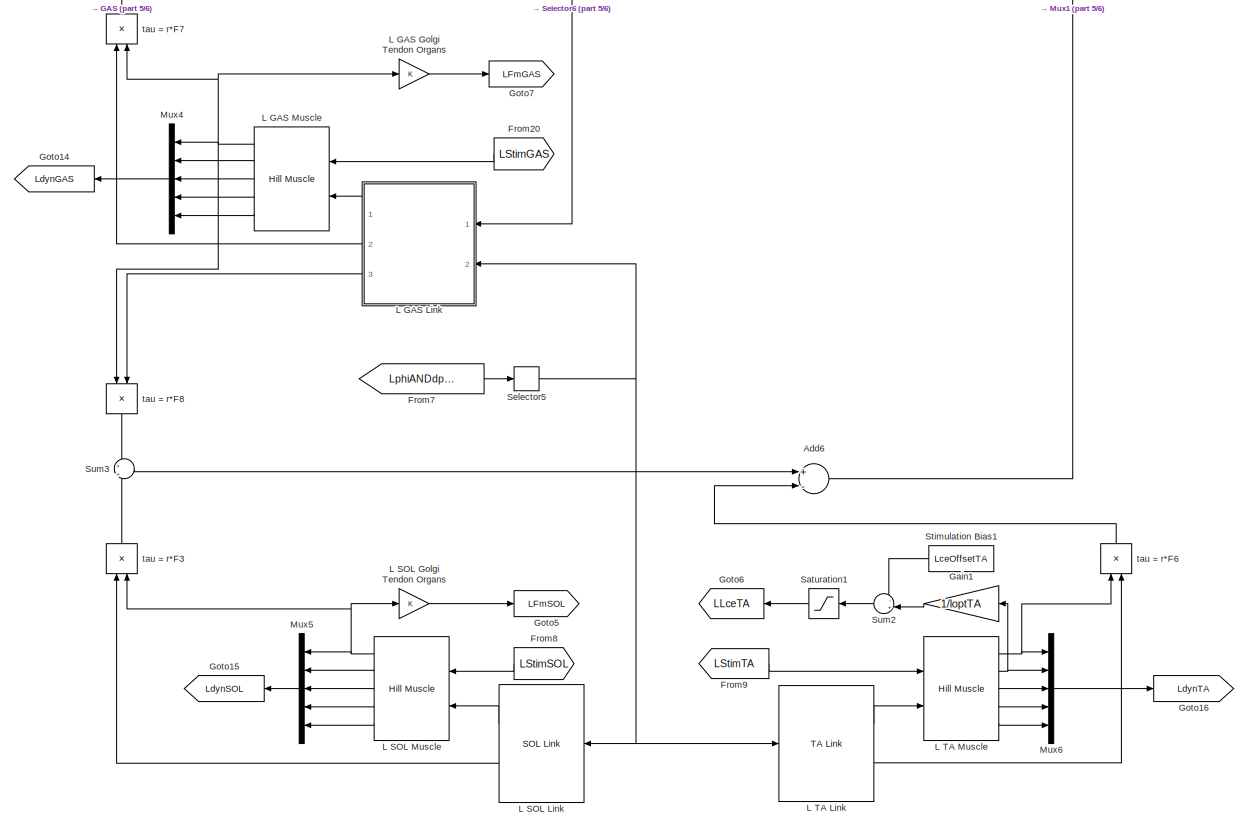
[diagram: Muscle Actuation Layer - part 6/6, bottom left region]
BLOCK [SubSystem] Muscle Actuation Layer
  Ports = []
  RequestExecContextInheritance = off
BLOCK [Sum] Muscle Actuation Layer/Add1
  InputSameDT = off
  Inputs = -+
  OutDataTypeStr = Inherit: Inherit via internal rule
  Ports = [2, 1]
  SaturateOnIntegerOverflow = off
BLOCK [Sum] Muscle Actuation Layer/Add2
  InputSameDT = off
  Inputs = -+
  OutDataTypeStr = Inherit: Inherit via internal rule
  Ports = [2, 1]
  SaturateOnIntegerOverflow = off
BLOCK [Sum] Muscle Actuation Layer/Add5
  InputSameDT = off
  Inputs = -+
  OutDataTypeStr = Inherit: Inherit via internal rule
  Ports = [2, 1]
  SaturateOnIntegerOverflow = off
BLOCK [Sum] Muscle Actuation Layer/Add6
  InputSameDT = off
  Inputs = +-
  OutDataTypeStr = Inherit: Inherit via internal rule
  Ports = [2, 1]
  SaturateOnIntegerOverflow = off
BLOCK [From] Muscle Actuation Layer/From1
  GotoTag = LStimHAM
  TagVisibility = global
BLOCK [From] Muscle Actuation Layer/From11
  GotoTag = RphiANDdphiHip
  TagVisibility = global
BLOCK [From] Muscle Actuation Layer/From12
  GotoTag = RStimGLU
  TagVisibility = global
BLOCK [From] Muscle Actuation Layer/From13
  GotoTag = RStimHFL
  TagVisibility = global
BLOCK [From] Muscle Actuation Layer/From2
  GotoTag = LphiANDdphiHip
  TagVisibility = global
BLOCK [From] Muscle Actuation Layer/From20
  GotoTag = LStimGAS
  TagVisibility = global
BLOCK [From] Muscle Actuation Layer/From25
  GotoTag = RStimHAMCut
  TagVisibility = global
BLOCK [From] Muscle Actuation Layer/From3
  GotoTag = LStimGLU
  TagVisibility = global
BLOCK [From] Muscle Actuation Layer/From4
  GotoTag = LStimHFL
  TagVisibility = global
BLOCK [From] Muscle Actuation Layer/From5
  GotoTag = LphiANDdphiKnee
  TagVisibility = global
BLOCK [From] Muscle Actuation Layer/From6
  GotoTag = LStimVAS
  TagVisibility = global
BLOCK [From] Muscle Actuation Layer/From7
  GotoTag = LphiANDdphiAnkle
  TagVisibility = global
BLOCK [From] Muscle Actuation Layer/From8
  GotoTag = LStimSOL
  TagVisibility = global
BLOCK [From] Muscle Actuation Layer/From9
  GotoTag = LStimTA
  TagVisibility = global
BLOCK [Gain] Muscle Actuation Layer/Gain1
  Gain = 1/loptTA
  OutDataTypeStr = Inherit: Inherit via internal rule
  ParamDataTypeStr = Inherit: Inherit via internal rule
  SaturateOnIntegerOverflow = off
BLOCK [Goto] Muscle Actuation Layer/Goto1
  GotoTag = LFmHAM
  TagVisibility = global
BLOCK [Goto] Muscle Actuation Layer/Goto10
  GotoTag = LdynVAS
  TagVisibility = global
BLOCK [Goto] Muscle Actuation Layer/Goto12
  GotoTag = RMuscleTorques
  TagVisibility = global
BLOCK [Goto] Muscle Actuation Layer/Goto13
  GotoTag = RFmGLU
  TagVisibility = global
BLOCK [Goto] Muscle Actuation Layer/Goto14
  GotoTag = LdynGAS
  TagVisibility = global
BLOCK [Goto] Muscle Actuation Layer/Goto15
  GotoTag = LdynSOL
  TagVisibility = global
BLOCK [Goto] Muscle Actuation Layer/Goto16
  GotoTag = LdynTA
  TagVisibility = global
BLOCK [Goto] Muscle Actuation Layer/Goto18
  GotoTag = LdynGLU
  TagVisibility = global
BLOCK [Goto] Muscle Actuation Layer/Goto2
  GotoTag = LMuscleTorques
  TagVisibility = global
BLOCK [Goto] Muscle Actuation Layer/Goto22
  GotoTag = RFmHAMCut
  TagVisibility = global
BLOCK [Goto] Muscle Actuation Layer/Goto29
  GotoTag = RdynHFL
  TagVisibility = global
BLOCK [Goto] Muscle Actuation Layer/Goto3
  GotoTag = LFmGLU
  TagVisibility = global
BLOCK [Goto] Muscle Actuation Layer/Goto35
  GotoTag = RdynHAMCut
  TagVisibility = global
BLOCK [Goto] Muscle Actuation Layer/Goto36
  GotoTag = RdynGLU
  TagVisibility = global
BLOCK [Goto] Muscle Actuation Layer/Goto4
  GotoTag = LFmVAS
  TagVisibility = global
BLOCK [Goto] Muscle Actuation Layer/Goto5
  GotoTag = LFmSOL
  TagVisibility = global
BLOCK [Goto] Muscle Actuation Layer/Goto6
  GotoTag = LLceTA
  TagVisibility = global
BLOCK [Goto] Muscle Actuation Layer/Goto7
  GotoTag = LFmGAS
  TagVisibility = global
BLOCK [Goto] Muscle Actuation Layer/Goto8
  GotoTag = LdynHFL
  TagVisibility = global
BLOCK [Goto] Muscle Actuation Layer/Goto9
  GotoTag = LdynHAM
  TagVisibility = global
BLOCK [Reference] Muscle Actuation Layer/L  TA Link  REF=NeuroMuscularLibrary/TA Link
  Ports = [1, 2]
  SourceBlock = NeuroMuscularLibrary/TA Link
  SourceType = SubSystem
BLOCK [Gain] Muscle Actuation Layer/L GAS Golgi Tendon Organs
  OutDataTypeStr = Inherit: Inherit via internal rule
  ParamDataTypeStr = Inherit: Inherit via internal rule
  SaturateOnIntegerOverflow = off
BLOCK [SubSystem] Muscle Actuation Layer/L GAS Link
  Ports = [2, 3]
  RequestExecContextInheritance = off
BLOCK [Inport] Muscle Actuation Layer/L GAS Link/Ankle Angle[rad]
  IconDisplay = Port number
  Port = 2
BLOCK [Constant] Muscle Actuation Layer/L GAS Link/Constant1
  Value = phirefGASk
BLOCK [Constant] Muscle Actuation Layer/L GAS Link/Constant2
  Value = phimaxGASk
BLOCK [Constant] Muscle Actuation Layer/L GAS Link/Constant4
  Value = lslackGAS+loptGAS
BLOCK [Constant] Muscle Actuation Layer/L GAS Link/Constant6
  Value = phirefGASa
BLOCK [Constant] Muscle Actuation Layer/L GAS Link/Constant7
  Value = phimaxGASa
BLOCK [Demux] Muscle Actuation Layer/L GAS Link/Demux1
  DisplayOption = bar
  Outputs = 2
  Ports = [1, 2]
BLOCK [Demux] Muscle Actuation Layer/L GAS Link/Demux2
  DisplayOption = bar
  Outputs = 2
  Ports = [1, 2]
BLOCK [Gain] Muscle Actuation Layer/L GAS Link/Gain1
  Gain = rGASk
  OutDataTypeStr = Inherit: Inherit via internal rule
  ParamDataTypeStr = Inherit: Inherit via internal rule
  SaturateOnIntegerOverflow = off
BLOCK [Gain] Muscle Actuation Layer/L GAS Link/Gain2
  Gain = rhoGASk
  OutDataTypeStr = Inherit: Inherit via internal rule
  ParamDataTypeStr = Inherit: Inherit via internal rule
  SaturateOnIntegerOverflow = off
BLOCK [Gain] Muscle Actuation Layer/L GAS Link/Gain3
  Gain = rGASa
  OutDataTypeStr = Inherit: Inherit via internal rule
  ParamDataTypeStr = Inherit: Inherit via internal rule
  SaturateOnIntegerOverflow = off
BLOCK [Gain] Muscle Actuation Layer/L GAS Link/Gain4
  Gain = rhoGASa
  OutDataTypeStr = Inherit: Inherit via internal rule
  ParamDataTypeStr = Inherit: Inherit via internal rule
  SaturateOnIntegerOverflow = off
BLOCK [Inport] Muscle Actuation Layer/L GAS Link/Knee Angle [rad]
  IconDisplay = Port number
BLOCK [Mux] Muscle Actuation Layer/L GAS Link/Mux1
  DisplayOption = bar
  Inputs = 2
  Ports = [2, 1]
BLOCK [Mux] Muscle Actuation Layer/L GAS Link/Mux2
  DisplayOption = bar
  Inputs = 2
  Ports = [2, 1]
BLOCK [Sum] Muscle Actuation Layer/L GAS Link/Sum1
  IconShape = round
  InputSameDT = off
  Inputs = |+-
  OutDataTypeStr = Inherit: Inherit via internal rule
  Ports = [2, 1]
  SaturateOnIntegerOverflow = off
BLOCK [Sum] Muscle Actuation Layer/L GAS Link/Sum2
  IconShape = round
  InputSameDT = off
  Inputs = -+|
  OutDataTypeStr = Inherit: Inherit via internal rule
  Ports = [2, 1]
  SaturateOnIntegerOverflow = off
BLOCK [Sum] Muscle Actuation Layer/L GAS Link/Sum3
  IconShape = round
  InputSameDT = off
  Inputs = +-
  OutDataTypeStr = Inherit: Inherit via internal rule
  Ports = [2, 1]
  SaturateOnIntegerOverflow = off
BLOCK [Sum] Muscle Actuation Layer/L GAS Link/Sum5
  IconShape = round
  InputSameDT = off
  Inputs = +++
  OutDataTypeStr = Inherit: Inherit via internal rule
  Ports = [3, 1]
  SaturateOnIntegerOverflow = off
BLOCK [Sum] Muscle Actuation Layer/L GAS Link/Sum7
  IconShape = round
  InputSameDT = off
  Inputs = |+-
  OutDataTypeStr = Inherit: Inherit via internal rule
  Ports = [2, 1]
  SaturateOnIntegerOverflow = off
BLOCK [Sum] Muscle Actuation Layer/L GAS Link/Sum8
  IconShape = round
  InputSameDT = off
  Inputs = -+|
  OutDataTypeStr = Inherit: Inherit via internal rule
  Ports = [2, 1]
  SaturateOnIntegerOverflow = off
BLOCK [Sum] Muscle Actuation Layer/L GAS Link/Sum9
  IconShape = round
  InputSameDT = off
  Inputs = +-
  OutDataTypeStr = Inherit: Inherit via internal rule
  Ports = [2, 1]
  SaturateOnIntegerOverflow = off
BLOCK [Trigonometry] Muscle Actuation Layer/L GAS Link/length change term Knee
  Ports = [1, 1]
BLOCK [Trigonometry] Muscle Actuation Layer/L GAS Link/length change term ankle
  Ports = [1, 1]
BLOCK [Outport] Muscle Actuation Layer/L GAS Link/leverAnkle [m]
  IconDisplay = Port number
  Port = 3
BLOCK [Outport] Muscle Actuation Layer/L GAS Link/leverKnee [m]
  IconDisplay = Port number
  Port = 2
BLOCK [Outport] Muscle Actuation Layer/L GAS Link/lmtu [m]
  IconDisplay = Port number
BLOCK [Trigonometry] Muscle Actuation Layer/L GAS Link/offset correction term ankle
  Ports = [1, 1]
BLOCK [Trigonometry] Muscle Actuation Layer/L GAS Link/offset correction term knee
  Ports = [1, 1]
BLOCK [Trigonometry] Muscle Actuation Layer/L GAS Link/variable lever term Knee
  Operator = cos
  Ports = [1, 1]
BLOCK [Trigonometry] Muscle Actuation Layer/L GAS Link/variable lever term ankle
  Operator = cos
  Ports = [1, 1]
BLOCK [Reference] Muscle Actuation Layer/L GAS Muscle  REF=NeuroMuscularLibrary/Hill Muscle
  Fmax = FmaxGAS
  Ports = [2, 5]
  SourceBlock = NeuroMuscularLibrary/Hill Muscle
  SourceType = Hill Type Muscle
  lopt = loptGAS
  lslack = lslackGAS
  vmax = vmaxGAS
BLOCK [Gain] Muscle Actuation Layer/L GLU Golgi Tendon Organs
  OutDataTypeStr = Inherit: Inherit via internal rule
  ParamDataTypeStr = Inherit: Inherit via internal rule
  SaturateOnIntegerOverflow = off
BLOCK [Reference] Muscle Actuation Layer/L GLU Link  REF=NeuroMuscularLibrary/GLU Link
  Ports = [1, 2]
  SourceBlock = NeuroMuscularLibrary/GLU Link
  SourceType = SubSystem
BLOCK [Reference] Muscle Actuation Layer/L GLU Muscle  REF=NeuroMuscularLibrary/Hill Muscle
  Fmax = FmaxGLU
  Ports = [2, 5]
  SourceBlock = NeuroMuscularLibrary/Hill Muscle
  SourceType = Hill Type Muscle
  lopt = loptGLU
  lslack = lslackGLU
  vmax = vmaxGLU
BLOCK [Gain] Muscle Actuation Layer/L HAM Golgi Tendon Organs
  OutDataTypeStr = Inherit: Inherit via internal rule
  ParamDataTypeStr = Inherit: Inherit via internal rule
  SaturateOnIntegerOverflow = off
BLOCK [Reference] Muscle Actuation Layer/L HAM Link  REF=NeuroMuscularLibrary/HAM Link
  Ports = [2, 3]
  SourceBlock = NeuroMuscularLibrary/HAM Link
  SourceType = SubSystem
BLOCK [Reference] Muscle Actuation Layer/L HAM Muscle  REF=NeuroMuscularLibrary/Hill Muscle
  Fmax = FmaxHAM
  Ports = [2, 5]
  SourceBlock = NeuroMuscularLibrary/Hill Muscle
  SourceType = Hill Type Muscle
  lopt = loptHAM
  lslack = lslackHAM
  vmax = vmaxHAM
BLOCK [Reference] Muscle Actuation Layer/L HFL Link  REF=NeuroMuscularLibrary/HFL Link
  Ports = [1, 2]
  SourceBlock = NeuroMuscularLibrary/HFL Link
  SourceType = SubSystem
BLOCK [Reference] Muscle Actuation Layer/L HFL Muscle  REF=NeuroMuscularLibrary/Hill Muscle
  Fmax = FmaxHFL
  Ports = [2, 5]
  SourceBlock = NeuroMuscularLibrary/Hill Muscle
  SourceType = Hill Type Muscle
  lopt = loptHFL
  lslack = lslackHFL
  vmax = vmaxHFL
BLOCK [Gain] Muscle Actuation Layer/L SOL Golgi Tendon Organs
  OutDataTypeStr = Inherit: Inherit via internal rule
  ParamDataTypeStr = Inherit: Inherit via internal rule
  SaturateOnIntegerOverflow = off
BLOCK [Reference] Muscle Actuation Layer/L SOL Link  REF=NeuroMuscularLibrary/SOL Link
  Ports = [1, 2]
  SourceBlock = NeuroMuscularLibrary/SOL Link
  SourceType = SubSystem
BLOCK [Reference] Muscle Actuation Layer/L SOL Muscle  REF=NeuroMuscularLibrary/Hill Muscle
  Fmax = FmaxSOL
  Ports = [2, 5]
  SourceBlock = NeuroMuscularLibrary/Hill Muscle
  SourceType = Hill Type Muscle
  lopt = loptSOL
  lslack = lslackSOL
  vmax = vmaxSOL
BLOCK [Reference] Muscle Actuation Layer/L TA Muscle  REF=NeuroMuscularLibrary/Hill Muscle
  Fmax = FmaxTA
  Ports = [2, 5]
  SourceBlock = NeuroMuscularLibrary/Hill Muscle
  SourceType = Hill Type Muscle
  lopt = loptTA
  lslack = lslackTA
  vmax = vmaxTA
BLOCK [Gain] Muscle Actuation Layer/L VAS Golgi Tendon Organs
  OutDataTypeStr = Inherit: Inherit via internal rule
  ParamDataTypeStr = Inherit: Inherit via internal rule
  SaturateOnIntegerOverflow = off
BLOCK [Reference] Muscle Actuation Layer/L VAS Link  REF=NeuroMuscularLibrary/VAS Link
  Ports = [1, 2]
  SourceBlock = NeuroMuscularLibrary/VAS Link
  SourceType = SubSystem
BLOCK [Reference] Muscle Actuation Layer/L VAS Muscle  REF=NeuroMuscularLibrary/Hill Muscle
  Fmax = FmaxVAS
  Ports = [2, 5]
  SourceBlock = NeuroMuscularLibrary/Hill Muscle
  SourceType = Hill Type Muscle
  lopt = loptVAS
  lslack = lslackVAS
  vmax = vmaxVAS
BLOCK [Mux] Muscle Actuation Layer/Mux1
  DisplayOption = bar
  Inputs = 3
  Ports = [3, 1]
BLOCK [Mux] Muscle Actuation Layer/Mux10
  DisplayOption = bar
  Inputs = 5
  Ports = [5, 1]
BLOCK [Mux] Muscle Actuation Layer/Mux15
  DisplayOption = bar
  Inputs = 5
  Ports = [5, 1]
BLOCK [Mux] Muscle Actuation Layer/Mux16
  DisplayOption = bar
  Inputs = 5
  Ports = [5, 1]
BLOCK [Mux] Muscle Actuation Layer/Mux2
  DisplayOption = bar
  Inputs = 5
  Ports = [5, 1]
BLOCK [Mux] Muscle Actuation Layer/Mux3
  DisplayOption = bar
  Inputs = 5
  Ports = [5, 1]
BLOCK [Mux] Muscle Actuation Layer/Mux4
  DisplayOption = bar
  Inputs = 5
  Ports = [5, 1]
BLOCK [Mux] Muscle Actuation Layer/Mux5
  DisplayOption = bar
  Inputs = 5
  Ports = [5, 1]
BLOCK [Mux] Muscle Actuation Layer/Mux6
  DisplayOption = bar
  Inputs = 5
  Ports = [5, 1]
BLOCK [Mux] Muscle Actuation Layer/Mux8
  DisplayOption = bar
  Inputs = 5
  Ports = [5, 1]
BLOCK [Mux] Muscle Actuation Layer/Mux9
  DisplayOption = bar
  Inputs = 5
  Ports = [5, 1]
BLOCK [Gain] Muscle Actuation Layer/R GLU Golgi Tendon Organs
  OutDataTypeStr = Inherit: Inherit via internal rule
  ParamDataTypeStr = Inherit: Inherit via internal rule
  SaturateOnIntegerOverflow = off
BLOCK [Reference] Muscle Actuation Layer/R GLU Link  REF=NeuroMuscularLibrary/GLU Link
  Ports = [1, 2]
  SourceBlock = NeuroMuscularLibrary/GLU Link
  SourceType = SubSystem
BLOCK [Reference] Muscle Actuation Layer/R GLU Muscle  REF=NeuroMuscularLibrary/Hill Muscle
  Fmax = FmaxGLU
  Ports = [2, 5]
  SourceBlock = NeuroMuscularLibrary/Hill Muscle
  SourceType = Hill Type Muscle
  lopt = loptGLU
  lslack = lslackGLU
  vmax = vmaxGLU
BLOCK [Reference] Muscle Actuation Layer/R HAM Cut  REF=NeuroMuscularLibrary/Hill Muscle
  Fmax = FmaxHAMCut
  Ports = [2, 5]
  SourceBlock = NeuroMuscularLibrary/Hill Muscle
  SourceType = Hill Type Muscle
  lopt = loptHAMCut
  lslack = lslackHAMCut
  vmax = vmaxHAM
BLOCK [SubSystem] Muscle Actuation Layer/R HAM Link Cut
  Ports = [1, 2]
  RequestExecContextInheritance = off
BLOCK [Constant] Muscle Actuation Layer/R HAM Link Cut/Constant3
  Value = rHAMh
BLOCK [Constant] Muscle Actuation Layer/R HAM Link Cut/Constant4
  Value = lslackHAMCut+loptHAMCut
BLOCK [Constant] Muscle Actuation Layer/R HAM Link Cut/Constant5
  Value = phirefHAMh
BLOCK [Gain] Muscle Actuation Layer/R HAM Link Cut/Gain2
  Gain = rhoHAMh
  OutDataTypeStr = Inherit: Inherit via internal rule
  ParamDataTypeStr = Inherit: Inherit via internal rule
  SaturateOnIntegerOverflow = off
BLOCK [Product] Muscle Actuation Layer/R HAM Link Cut/Product
  InputSameDT = off
  OutDataTypeStr = Inherit: Inherit via internal rule
  Ports = [2, 1]
  SaturateOnIntegerOverflow = off
BLOCK [Sum] Muscle Actuation Layer/R HAM Link Cut/Sum4
  IconShape = round
  InputSameDT = off
  Inputs = |+-
  OutDataTypeStr = Inherit: Inherit via internal rule
  Ports = [2, 1]
  SaturateOnIntegerOverflow = off
BLOCK [Sum] Muscle Actuation Layer/R HAM Link Cut/Sum5
  IconShape = round
  InputSameDT = off
  Inputs = -+
  OutDataTypeStr = Inherit: Inherit via internal rule
  Ports = [2, 1]
  SaturateOnIntegerOverflow = off
BLOCK [Inport] Muscle Actuation Layer/R HAM Link Cut/hip angle
  IconDisplay = Port number
BLOCK [Outport] Muscle Actuation Layer/R HAM Link Cut/hip lever [m]
  IconDisplay = Port number
  Port = 2
BLOCK [Outport] Muscle Actuation Layer/R HAM Link Cut/lmtu
  IconDisplay = Port number
BLOCK [Gain] Muscle Actuation Layer/R HAMCut Golgi Tendon Organs
  OutDataTypeStr = Inherit: Inherit via internal rule
  ParamDataTypeStr = Inherit: Inherit via internal rule
  SaturateOnIntegerOverflow = off
BLOCK [Reference] Muscle Actuation Layer/R HFL Link  REF=NeuroMuscularLibrary/HFL Link
  Ports = [1, 2]
  SourceBlock = NeuroMuscularLibrary/HFL Link
  SourceType = SubSystem
BLOCK [Reference] Muscle Actuation Layer/R HFL Muscle  REF=NeuroMuscularLibrary/Hill Muscle
  Fmax = FmaxHFL
  Ports = [2, 5]
  SourceBlock = NeuroMuscularLibrary/Hill Muscle
  SourceType = Hill Type Muscle
  lopt = loptHFL
  lslack = lslackHFL
  vmax = vmaxHFL
BLOCK [Saturate] Muscle Actuation Layer/Saturation1
  InputPortMap = u0
  LowerLimit = 0
  Ports = [1, 1]
  UpperLimit = inf
BLOCK [Selector] Muscle Actuation Layer/Selector1
  InputPortWidth = 2
  Ports = [1, 1]
BLOCK [Selector] Muscle Actuation Layer/Selector4
  InputPortWidth = 2
  Ports = [1, 1]
BLOCK [Selector] Muscle Actuation Layer/Selector5
  InputPortWidth = 2
  Ports = [1, 1]
BLOCK [Selector] Muscle Actuation Layer/Selector6
  InputPortWidth = 2
  Ports = [1, 1]
BLOCK [Constant] Muscle Actuation Layer/Stimulation Bias1
  Value = LceOffsetTA
BLOCK [Sum] Muscle Actuation Layer/Sum1
  IconShape = round
  InputSameDT = off
  Inputs = +|+
  OutDataTypeStr = Inherit: Inherit via internal rule
  Ports = [2, 1]
  SaturateOnIntegerOverflow = off
BLOCK [Sum] Muscle Actuation Layer/Sum2
  IconShape = round
  InputSameDT = off
  Inputs = -+|
  OutDataTypeStr = Inherit: Inherit via internal rule
  Ports = [2, 1]
  SaturateOnIntegerOverflow = off
BLOCK [Sum] Muscle Actuation Layer/Sum3
  IconShape = round
  InputSameDT = off
  Inputs = +|+
  OutDataTypeStr = Inherit: Inherit via internal rule
  Ports = [2, 1]
  SaturateOnIntegerOverflow = off
BLOCK [Sum] Muscle Actuation Layer/Sum4
  IconShape = round
  InputSameDT = off
  Inputs = +|+
  OutDataTypeStr = Inherit: Inherit via internal rule
  Ports = [2, 1]
  SaturateOnIntegerOverflow = off
BLOCK [Sum] Muscle Actuation Layer/Sum8
  IconShape = round
  InputSameDT = off
  Inputs = +|+
  OutDataTypeStr = Inherit: Inherit via internal rule
  Ports = [2, 1]
  SaturateOnIntegerOverflow = off
BLOCK [Product] Muscle Actuation Layer/tau = r*F1
  InputSameDT = off
  OutDataTypeStr = Inherit: Inherit via internal rule
  Ports = [2, 1]
  RndMeth = Floor
  SaturateOnIntegerOverflow = off
BLOCK [Product] Muscle Actuation Layer/tau = r*F10
  InputSameDT = off
  OutDataTypeStr = Inherit: Inherit via internal rule
  Ports = [2, 1]
  RndMeth = Floor
  SaturateOnIntegerOverflow = off
BLOCK [Product] Muscle Actuation Layer/tau = r*F11
  InputSameDT = off
  OutDataTypeStr = Inherit: Inherit via internal rule
  Ports = [2, 1]
  RndMeth = Floor
  SaturateOnIntegerOverflow = off
BLOCK [Product] Muscle Actuation Layer/tau = r*F18
  InputSameDT = off
  OutDataTypeStr = Inherit: Inherit via internal rule
  Ports = [2, 1]
  RndMeth = Floor
  SaturateOnIntegerOverflow = off
BLOCK [Product] Muscle Actuation Layer/tau = r*F2
  InputSameDT = off
  OutDataTypeStr = Inherit: Inherit via internal rule
  Ports = [2, 1]
  RndMeth = Floor
  SaturateOnIntegerOverflow = off
BLOCK [Product] Muscle Actuation Layer/tau = r*F3
  InputSameDT = off
  OutDataTypeStr = Inherit: Inherit via internal rule
  Ports = [2, 1]
  RndMeth = Floor
  SaturateOnIntegerOverflow = off
BLOCK [Product] Muscle Actuation Layer/tau = r*F4
  InputSameDT = off
  OutDataTypeStr = Inherit: Inherit via internal rule
  Ports = [2, 1]
  RndMeth = Floor
  SaturateOnIntegerOverflow = off
BLOCK [Product] Muscle Actuation Layer/tau = r*F5
  InputSameDT = off
  OutDataTypeStr = Inherit: Inherit via internal rule
  Ports = [2, 1]
  RndMeth = Floor
  SaturateOnIntegerOverflow = off
BLOCK [Product] Muscle Actuation Layer/tau = r*F6
  InputSameDT = off
  OutDataTypeStr = Inherit: Inherit via internal rule
  Ports = [2, 1]
  RndMeth = Floor
  SaturateOnIntegerOverflow = off
BLOCK [Product] Muscle Actuation Layer/tau = r*F7
  InputSameDT = off
  OutDataTypeStr = Inherit: Inherit via internal rule
  Ports = [2, 1]
  RndMeth = Floor
  SaturateOnIntegerOverflow = off
BLOCK [Product] Muscle Actuation Layer/tau = r*F8
  InputSameDT = off
  OutDataTypeStr = Inherit: Inherit via internal rule
  Ports = [2, 1]
  RndMeth = Floor
  SaturateOnIntegerOverflow = off
BLOCK [Product] Muscle Actuation Layer/tau = r*F9
  InputSameDT = off
  OutDataTypeStr = Inherit: Inherit via internal rule
  Ports = [2, 1]
  RndMeth = Floor
  SaturateOnIntegerOverflow = off
BLOCK [SubSystem] Neural Control Layer
  Ports = []
  RequestExecContextInheritance = off
BLOCK [SubSystem] Neural Control Layer/Cross Influence Detection
  Ports = [2, 2]
  RequestExecContextInheritance = off
BLOCK [Reference] Neural Control Layer/Cross Influence Detection/Compare To Zero  REF=simulink/Logic and Bit
Operations/Compare
To Zero
  OutDataTypeStr = boolean
  Ports = [1, 1]
  SourceBlock = simulink/Logic and Bit\nOperations/Compare\nTo Zero
  SourceType = Compare To Zero
  ZeroCross = on
  relop = ~=
BLOCK [Reference] Neural Control Layer/Cross Influence Detection/Compare To Zero1  REF=simulink/Logic and Bit
Operations/Compare
To Zero
  OutDataTypeStr = boolean
  Ports = [1, 1]
  SourceBlock = simulink/Logic and Bit\nOperations/Compare\nTo Zero
  SourceType = Compare To Zero
  ZeroCross = on
  relop = ~=
BLOCK [HitCross] Neural Control Layer/Cross Influence Detection/DSup ends
  HitCrossingDirection = falling
  HitCrossingOffset = 0.5
  Ports = [1, 1]
  ZeroCross = off
BLOCK [DataTypeConversion] Neural Control Layer/Cross Influence Detection/Data Type Conversion
  OutDataTypeStr = double
  RndMeth = Floor
  SaturateOnIntegerOverflow = off
BLOCK [Logic] Neural Control Layer/Cross Influence Detection/Double Support?
  AllPortsSameDT = off
  Ports = [2, 1]
BLOCK [Logic] Neural Control Layer/Cross Influence Detection/Double Support?1
  AllPortsSameDT = off
  Ports = [2, 1]
BLOCK [Logic] Neural Control Layer/Cross Influence Detection/Double Support?4
  AllPortsSameDT = off
  Ports = [2, 1]
BLOCK [HitCross] Neural Control Layer/Cross Influence Detection/LLeg starts DSup
  HitCrossingDirection = rising
  HitCrossingOffset = 0.5
  Ports = [1, 1]
  ZeroCross = off
BLOCK [Inport] Neural Control Layer/Cross Influence Detection/LStance
  IconDisplay = Port number
BLOCK [Outport] Neural Control Layer/Cross Influence Detection/LeftLeading
  IconDisplay = Port number
  Port = 2
BLOCK [Memory] Neural Control Layer/Cross Influence Detection/Memory
BLOCK [Memory] Neural Control Layer/Cross Influence Detection/Memory3
BLOCK [HitCross] Neural Control Layer/Cross Influence Detection/RLeg starts DSup
  HitCrossingDirection = rising
  HitCrossingOffset = 0.5
  Ports = [1, 1]
  ZeroCross = off
BLOCK [Inport] Neural Control Layer/Cross Influence Detection/RStance
  IconDisplay = Port number
  Port = 2
BLOCK [Outport] Neural Control Layer/Cross Influence Detection/RightLeading
  IconDisplay = Port number
BLOCK [Reference] Neural Control Layer/Cross Influence Detection/S-R Flip-Flop  REF=simulink_extras/Flip Flops/S-R
Flip-Flop
  Ports = [2, 2]
  SourceBlock = simulink_extras/Flip Flops/S-R\nFlip-Flop
  SourceType = SRFlipFlop
  initial_condition = 0
BLOCK [Reference] Neural Control Layer/Cross Influence Detection/S-R Flip-Flop1  REF=simulink_extras/Flip Flops/S-R
Flip-Flop
  Ports = [2, 2]
  SourceBlock = simulink_extras/Flip Flops/S-R\nFlip-Flop
  SourceType = SRFlipFlop
  initial_condition = 0
BLOCK [Terminator] Neural Control Layer/Cross Influence Detection/Terminator1
BLOCK [Terminator] Neural Control Layer/Cross Influence Detection/Terminator2
BLOCK [Demux] Neural Control Layer/Demux
  DisplayOption = bar
  Outputs = 7
  Ports = [1, 7]
BLOCK [Demux] Neural Control Layer/Demux1
  DisplayOption = bar
  Outputs = 2
  Ports = [1, 2]
BLOCK [Demux] Neural Control Layer/Demux2
  DisplayOption = bar
  Outputs = 3
  Ports = [1, 3]
BLOCK [Demux] Neural Control Layer/Demux5
  DisplayOption = bar
  Outputs = 3
  Ports = [1, 3]
BLOCK [Demux] Neural Control Layer/Demux7
  DisplayOption = bar
  Outputs = 3
  Ports = [1, 3]
BLOCK [From] Neural Control Layer/From
  GotoTag = LFmSOL
  TagVisibility = global
BLOCK [From] Neural Control Layer/From1
  GotoTag = LLceTA
  TagVisibility = global
BLOCK [From] Neural Control Layer/From10
  GotoTag = LFmGLU
  TagVisibility = global
BLOCK [From] Neural Control Layer/From11
  GotoTag = LStance
  TagVisibility = global
BLOCK [From] Neural Control Layer/From12
  CloseFcn = tagdialog Close
  GotoTag = RdxThigh
  TagVisibility = global
BLOCK [From] Neural Control Layer/From13
  GotoTag = RStance
  TagVisibility = global
BLOCK [From] Neural Control Layer/From14
  GotoTag = RFmGLU
  TagVisibility = global
BLOCK [From] Neural Control Layer/From15
  CloseFcn = tagdialog Close
  GotoTag = LdxThigh
  TagVisibility = global
BLOCK [From] Neural Control Layer/From16
  GotoTag = phiANDdphiHAT
  TagVisibility = global
BLOCK [From] Neural Control Layer/From17
  GotoTag = RLegAngle
  TagVisibility = global
BLOCK [From] Neural Control Layer/From18
  GotoTag = LphiANDdphiKnee
  TagVisibility = global
BLOCK [From] Neural Control Layer/From2
  GotoTag = LLceTA
  TagVisibility = global
BLOCK [From] Neural Control Layer/From28
  GotoTag = LAnklePos
  TagVisibility = global
BLOCK [From] Neural Control Layer/From29
  GotoTag = RAnklePos
  TagVisibility = global
BLOCK [From] Neural Control Layer/From3
  GotoTag = LFmGAS
  TagVisibility = global
BLOCK [From] Neural Control Layer/From30
  GotoTag = HipPosAndSpeed
  TagVisibility = global
BLOCK [From] Neural Control Layer/From31
  CloseFcn = tagdialog Close
  GotoTag = RMuscleTorques
  TagVisibility = global
BLOCK [From] Neural Control Layer/From33
  GotoTag = RphiANDdphiHip
  TagVisibility = global
BLOCK [From] Neural Control Layer/From35
  CloseFcn = tagdialog Close
  GotoTag = LMuscleTorques
  TagVisibility = global
BLOCK [From] Neural Control Layer/From36
  GotoTag = LphiANDdphiKnee
  TagVisibility = global
BLOCK [From] Neural Control Layer/From37
  GotoTag = LphiANDdphiHip
  TagVisibility = global
BLOCK [From] Neural Control Layer/From38
  GotoTag = LphiANDdphiAnkle
  TagVisibility = global
BLOCK [From] Neural Control Layer/From39
  GotoTag = RFmHAMCut
  TagVisibility = global
BLOCK [From] Neural Control Layer/From4
  GotoTag = LFmVAS
  TagVisibility = global
BLOCK [From] Neural Control Layer/From40
  GotoTag = RphiANDdphiKnee
  TagVisibility = global
BLOCK [From] Neural Control Layer/From41
  GotoTag = RphiANDdphiAnkle
  TagVisibility = global
BLOCK [From] Neural Control Layer/From5
  GotoTag = phiANDdphiHAT
  TagVisibility = global
BLOCK [From] Neural Control Layer/From6
  GotoTag = LphiANDdphiKnee
  TagVisibility = global
BLOCK [From] Neural Control Layer/From7
  GotoTag = LLegAngle
  TagVisibility = global
BLOCK [From] Neural Control Layer/From8
  GotoTag = LLegLength
  TagVisibility = global
BLOCK [From] Neural Control Layer/From9
  GotoTag = LFmHAM
  TagVisibility = global
BLOCK [Goto] Neural Control Layer/Goto
  GotoTag = LStimSOL
  TagVisibility = global
BLOCK [Goto] Neural Control Layer/Goto1
  GotoTag = LStimTA
  TagVisibility = global
BLOCK [Goto] Neural Control Layer/Goto11
  GotoTag = RStimHAMCut
  TagVisibility = global
BLOCK [Goto] Neural Control Layer/Goto12
  GotoTag = RStimGLU
  TagVisibility = global
BLOCK [Goto] Neural Control Layer/Goto13
  GotoTag = RStimHFL
  TagVisibility = global
BLOCK [Goto] Neural Control Layer/Goto14
  GotoTag = LSwingStateCounts
  TagVisibility = global
BLOCK [Goto] Neural Control Layer/Goto16
  GotoTag = RHipStopMoment
  TagVisibility = global
BLOCK [Goto] Neural Control Layer/Goto19
  GotoTag = RHipMoment
  TagVisibility = global
BLOCK [Goto] Neural Control Layer/Goto2
  GotoTag = LStimGAS
  TagVisibility = global
BLOCK [Goto] Neural Control Layer/Goto21
  GotoTag = LAnkleMoment
  TagVisibility = global
BLOCK [Goto] Neural Control Layer/Goto22
  GotoTag = LHipStopMoment
  TagVisibility = global
BLOCK [Goto] Neural Control Layer/Goto23
  GotoTag = LKneeStopMoment
  TagVisibility = global
BLOCK [Goto] Neural Control Layer/Goto24
  GotoTag = LKneeMoment
  TagVisibility = global
BLOCK [Goto] Neural Control Layer/Goto25
  GotoTag = LHipMoment
  TagVisibility = global
BLOCK [Goto] Neural Control Layer/Goto26
  GotoTag = LAnkleStopMoment
  TagVisibility = global
BLOCK [Goto] Neural Control Layer/Goto27
  GotoTag = RHipIdealMoment
  TagVisibility = global
BLOCK [Goto] Neural Control Layer/Goto29
  GotoTag = LHipIdealMoment
  TagVisibility = global
BLOCK [Goto] Neural Control Layer/Goto3
  GotoTag = LStimVAS
  TagVisibility = global
BLOCK [Goto] Neural Control Layer/Goto31
  GotoTag = LKneeIdealMoment
  TagVisibility = global
BLOCK [Goto] Neural Control Layer/Goto4
  GotoTag = LStimHAM
  TagVisibility = global
BLOCK [Goto] Neural Control Layer/Goto5
  GotoTag = LStimGLU
  TagVisibility = global
BLOCK [Goto] Neural Control Layer/Goto6
  GotoTag = LStimHFL
  TagVisibility = global
BLOCK [Goto] Neural Control Layer/Goto7
  GotoTag = RImpedanceStateCounts
  TagVisibility = global
BLOCK [Goto] Neural Control Layer/Goto8
  GotoTag = RKneeMoment
  TagVisibility = global
BLOCK [Goto] Neural Control Layer/Goto9
  GotoTag = RAnkleMoment
  TagVisibility = global
BLOCK [SubSystem] Neural Control Layer/Impedance Control
  Ports = [4, 2]
  RequestExecContextInheritance = off
BLOCK [Sum] Neural Control Layer/Impedance Control/Add8
  InputSameDT = off
  Inputs = ++++
  OutDataTypeStr = Inherit: Inherit via internal rule
  Ports = [4, 1]
  SaturateOnIntegerOverflow = off
BLOCK [SubSystem] Neural Control Layer/Impedance Control/Chart
  ErrorFcn = Stateflow.Translate.translate
  PermitHierarchicalResolution = ExplicitOnly
  Ports = [6, 5]
  RequestExecContextInheritance = off
  SFBlockType = Chart
  TreatAsAtomicUnit = on
BLOCK [Demux] Neural Control Layer/Impedance Control/Chart/ Demux 
  Outputs = 1
  Ports = [1, 1]
BLOCK [S-Function] Neural Control Layer/Impedance Control/Chart/ SFunction 
  EnableBusSupport = on
  FunctionName = sf_sfun
  Parameters = DeltaThRef,ankleAngleThr,phiKneeSwing2
  PortCounts = [6 6]
  Ports = [6, 6]
  Tag = Stateflow S-Function NeuromuscularModelwImpedance 2
BLOCK [Terminator] Neural Control Layer/Impedance Control/Chart/ Terminator 
BLOCK [Inport] Neural Control Layer/Impedance Control/Chart/Stance
  IconDisplay = Port number
  Port = 2
BLOCK [Inport] Neural Control Layer/Impedance Control/Chart/ankleAngle
  IconDisplay = Port number
  Port = 3
BLOCK [Inport] Neural Control Layer/Impedance Control/Chart/ankleVel
  IconDisplay = Port number
  Port = 4
BLOCK [Inport] Neural Control Layer/Impedance Control/Chart/dxThigh
  IconDisplay = Port number
BLOCK [Inport] Neural Control Layer/Impedance Control/Chart/kneeAngle
  IconDisplay = Port number
  Port = 5
BLOCK [Inport] Neural Control Layer/Impedance Control/Chart/kneeVel
  IconDisplay = Port number
  Port = 6
BLOCK [Outport] Neural Control Layer/Impedance Control/Chart/stance1
  IconDisplay = Port number
BLOCK [Outport] Neural Control Layer/Impedance Control/Chart/stance2
  IconDisplay = Port number
  Port = 2
BLOCK [Outport] Neural Control Layer/Impedance Control/Chart/swing1
  IconDisplay = Port number
  Port = 3
BLOCK [Outport] Neural Control Layer/Impedance Control/Chart/swing2
  IconDisplay = Port number
  Port = 4
BLOCK [Outport] Neural Control Layer/Impedance Control/Chart/swing2Spring
  IconDisplay = Port number
  Port = 5
BLOCK [Reference] Neural Control Layer/Impedance Control/Count Stance 1  REF=dspswit3/Counter
  CntDtype = double
  CountEvent = Rising edge
  CounterSize = 16 bits
  Direction = Up
  HitDtype = Logical
  HitValue = 32
  InitialCount = 0
  MaxCount = 255
  Output = Count
  Ports = [1, 1]
  ResetInput = off
  SamplesPerFrame = 1
  SourceBlock = dspswit3/Counter
  SourceType = Counter
  Ts = 1
BLOCK [Reference] Neural Control Layer/Impedance Control/Count Stance 2  REF=dspswit3/Counter
  CntDtype = double
  CountEvent = Rising edge
  CounterSize = 16 bits
  Direction = Up
  HitDtype = Logical
  HitValue = 32
  InitialCount = 0
  MaxCount = 255
  Output = Count
  Ports = [1, 1]
  ResetInput = off
  SamplesPerFrame = 1
  SourceBlock = dspswit3/Counter
  SourceType = Counter
  Ts = 1
BLOCK [Reference] Neural Control Layer/Impedance Control/Count Steps  REF=dspswit3/Counter
  CntDtype = double
  CountEvent = Rising edge
  CounterSize = 16 bits
  Direction = Up
  HitDtype = Logical
  HitValue = 32
  InitialCount = 0
  MaxCount = 255
  Output = Count
  Ports = [1, 1]
  ResetInput = off
  SamplesPerFrame = 1
  SourceBlock = dspswit3/Counter
  SourceType = Counter
  Ts = 1
BLOCK [Reference] Neural Control Layer/Impedance Control/Count Swing 1  REF=dspswit3/Counter
  CntDtype = double
  CountEvent = Rising edge
  CounterSize = 16 bits
  Direction = Up
  HitDtype = Logical
  HitValue = 32
  InitialCount = 0
  MaxCount = 255
  Output = Count
  Ports = [1, 1]
  ResetInput = off
  SamplesPerFrame = 1
  SourceBlock = dspswit3/Counter
  SourceType = Counter
  Ts = 1
BLOCK [Reference] Neural Control Layer/Impedance Control/Count Swing 2  REF=dspswit3/Counter
  CntDtype = double
  CountEvent = Rising edge
  CounterSize = 16 bits
  Direction = Up
  HitDtype = Logical
  HitValue = 32
  InitialCount = 0
  MaxCount = 255
  Output = Count
  Ports = [1, 1]
  ResetInput = off
  SamplesPerFrame = 1
  SourceBlock = dspswit3/Counter
  SourceType = Counter
  Ts = 1
BLOCK [Demux] Neural Control Layer/Impedance Control/Demux
  DisplayOption = bar
  Outputs = 2
  Ports = [1, 2]
BLOCK [Demux] Neural Control Layer/Impedance Control/Demux1
  DisplayOption = bar
  Outputs = 2
  Ports = [1, 2]
BLOCK [Outport] Neural Control Layer/Impedance Control/Impedance State Counts
  IconDisplay = Port number
  Port = 2
BLOCK [Mux] Neural Control Layer/Impedance Control/Mux3
  DisplayOption = bar
  Inputs = 5
  Ports = [5, 1]
BLOCK [Inport] Neural Control Layer/Impedance Control/Stance
  IconDisplay = Port number
  Port = 2
BLOCK [SubSystem] Neural Control Layer/Impedance Control/Stance 1
  Ports = [2, 1, 1]
  RequestExecContextInheritance = off
BLOCK [Sum] Neural Control Layer/Impedance Control/Stance 1/Add1
  InputSameDT = off
  Inputs = --
  OutDataTypeStr = Inherit: Inherit via internal rule
  Ports = [2, 1]
  SaturateOnIntegerOverflow = off
BLOCK [Bias] Neural Control Layer/Impedance Control/Stance 1/Bias
  Bias = -phiKneeStance1
  SaturateOnIntegerOverflow = off
BLOCK [Bias] Neural Control Layer/Impedance Control/Stance 1/Bias1
  Bias = -phiAnkleStance1
  SaturateOnIntegerOverflow = off
BLOCK [Bias] Neural Control Layer/Impedance Control/Stance 1/Bias2
  Bias = phiAnkleStance12
  SaturateOnIntegerOverflow = off
BLOCK [Reference] Neural Control Layer/Impedance Control/Stance 1/Compare To Constant  REF=simulink/Logic and Bit
Operations/Compare
To Constant
  OutDataTypeStr = boolean
  Ports = [1, 1]
  SourceBlock = simulink/Logic and Bit\nOperations/Compare\nTo Constant
  SourceType = Compare To Constant
  ZeroCross = off
  const = -phiAnkleStance12
  relop = <
BLOCK [Constant] Neural Control Layer/Impedance Control/Stance 1/Constant1
  Value = 3
BLOCK [EnablePort] Neural Control Layer/Impedance Control/Stance 1/Enable
  Ports = []
  StatesWhenEnabling = reset
BLOCK [Gain] Neural Control Layer/Impedance Control/Stance 1/Gain
  Gain = k1KneeStance1
  OutDataTypeStr = Inherit: Inherit via internal rule
  ParamDataTypeStr = Inherit: Inherit via internal rule
  SaturateOnIntegerOverflow = off
BLOCK [Gain] Neural Control Layer/Impedance Control/Stance 1/Gain2
  Gain = -1
  OutDataTypeStr = Inherit: Inherit via internal rule
  ParamDataTypeStr = Inherit: Inherit via internal rule
  SaturateOnIntegerOverflow = off
BLOCK [Gain] Neural Control Layer/Impedance Control/Stance 1/Gain3
  Gain = k1AnkleStance1
  OutDataTypeStr = Inherit: Inherit via internal rule
  ParamDataTypeStr = Inherit: Inherit via internal rule
  SaturateOnIntegerOverflow = off
BLOCK [Gain] Neural Control Layer/Impedance Control/Stance 1/Gain4
  Gain = k2AnkleStance1
  OutDataTypeStr = Inherit: Inherit via internal rule
  ParamDataTypeStr = Inherit: Inherit via internal rule
  SaturateOnIntegerOverflow = off
BLOCK [Math] Neural Control Layer/Impedance Control/Stance 1/Math Function1
  Operator = pow
  Ports = [2, 1]
BLOCK [Mux] Neural Control Layer/Impedance Control/Stance 1/Mux
  DisplayOption = bar
  Inputs = 2
  Ports = [2, 1]
BLOCK [Product] Neural Control Layer/Impedance Control/Stance 1/Product
  InputSameDT = off
  OutDataTypeStr = Inherit: Inherit via internal rule
  Ports = [2, 1]
  RndMeth = Floor
  SaturateOnIntegerOverflow = off
BLOCK [Inport] Neural Control Layer/Impedance Control/Stance 1/ankle angle
  IconDisplay = Port number
  Port = 2
BLOCK [Inport] Neural Control Layer/Impedance Control/Stance 1/knee angle
  IconDisplay = Port number
BLOCK [Outport] Neural Control Layer/Impedance Control/Stance 1/stance 1 torque
  IconDisplay = Port number
  InitialOutput = [0 0]
  OutputWhenDisabled = reset
BLOCK [SubSystem] Neural Control Layer/Impedance Control/Stance 2
  Ports = [2, 1, 1]
  RequestExecContextInheritance = off
BLOCK [Sum] Neural Control Layer/Impedance Control/Stance 2/Add2
  InputSameDT = off
  Inputs = --
  OutDataTypeStr = Inherit: Inherit via internal rule
  Ports = [2, 1]
  SaturateOnIntegerOverflow = off
BLOCK [Bias] Neural Control Layer/Impedance Control/Stance 2/Bias2
  Bias = -phiKneeStance2
  SaturateOnIntegerOverflow = off
BLOCK [Bias] Neural Control Layer/Impedance Control/Stance 2/Bias3
  Bias = -phiAnkleStance2
  SaturateOnIntegerOverflow = off
BLOCK [Constant] Neural Control Layer/Impedance Control/Stance 2/Constant2
  Value = 3
BLOCK [EnablePort] Neural Control Layer/Impedance Control/Stance 2/Enable
  Ports = []
  StatesWhenEnabling = reset
BLOCK [Gain] Neural Control Layer/Impedance Control/Stance 2/Gain5
  Gain = -1
  OutDataTypeStr = Inherit: Inherit via internal rule
  ParamDataTypeStr = Inherit: Inherit via internal rule
  SaturateOnIntegerOverflow = off
BLOCK [Gain] Neural Control Layer/Impedance Control/Stance 2/Gain6
  Gain = k1KneeStance2
  OutDataTypeStr = Inherit: Inherit via internal rule
  ParamDataTypeStr = Inherit: Inherit via internal rule
  SaturateOnIntegerOverflow = off
BLOCK [Gain] Neural Control Layer/Impedance Control/Stance 2/Gain7
  Gain = k2KneeStance2
  OutDataTypeStr = Inherit: Inherit via internal rule
  ParamDataTypeStr = Inherit: Inherit via internal rule
  SaturateOnIntegerOverflow = off
BLOCK [Gain] Neural Control Layer/Impedance Control/Stance 2/Gain9
  Gain = k1AnkleStance2
  OutDataTypeStr = Inherit: Inherit via internal rule
  ParamDataTypeStr = Inherit: Inherit via internal rule
  SaturateOnIntegerOverflow = off
BLOCK [Math] Neural Control Layer/Impedance Control/Stance 2/Math Function2
  Operator = pow
  Ports = [2, 1]
BLOCK [Mux] Neural Control Layer/Impedance Control/Stance 2/Mux1
  DisplayOption = bar
  Inputs = 2
  Ports = [2, 1]
BLOCK [Inport] Neural Control Layer/Impedance Control/Stance 2/ankle angle
  IconDisplay = Port number
  Port = 2
BLOCK [Inport] Neural Control Layer/Impedance Control/Stance 2/knee angle
  IconDisplay = Port number
BLOCK [Outport] Neural Control Layer/Impedance Control/Stance 2/stance 2 torque
  IconDisplay = Port number
  InitialOutput = [0 0]
  OutputWhenDisabled = reset
BLOCK [SubSystem] Neural Control Layer/Impedance Control/Swing 1
  Ports = [3, 1, 1]
  RequestExecContextInheritance = off
BLOCK [Sum] Neural Control Layer/Impedance Control/Swing 1/Add3
  InputSameDT = off
  Inputs = --
  OutDataTypeStr = Inherit: Inherit via internal rule
  Ports = [2, 1]
  SaturateOnIntegerOverflow = off
BLOCK [Bias] Neural Control Layer/Impedance Control/Swing 1/Bias6
  Bias = -phiKneeSwing1
  SaturateOnIntegerOverflow = off
BLOCK [EnablePort] Neural Control Layer/Impedance Control/Swing 1/Enable
  Ports = []
  StatesWhenEnabling = reset
BLOCK [Gain] Neural Control Layer/Impedance Control/Swing 1/Gain20
  Gain = k1KneeSwing1
  OutDataTypeStr = Inherit: Inherit via internal rule
  ParamDataTypeStr = Inherit: Inherit via internal rule
  SaturateOnIntegerOverflow = off
BLOCK [Gain] Neural Control Layer/Impedance Control/Swing 1/Gain22
  Gain = bKneeSwing1
  OutDataTypeStr = Inherit: Inherit via internal rule
  ParamDataTypeStr = Inherit: Inherit via internal rule
  SaturateOnIntegerOverflow = off
BLOCK [Gain] Neural Control Layer/Impedance Control/Swing 1/Gain23
  Gain = k1AnkleSwing1
  OutDataTypeStr = Inherit: Inherit via internal rule
  ParamDataTypeStr = Inherit: Inherit via internal rule
  SaturateOnIntegerOverflow = off
BLOCK [Gain] Neural Control Layer/Impedance Control/Swing 1/Gain8
  Gain = -1
  OutDataTypeStr = Inherit: Inherit via internal rule
  ParamDataTypeStr = Inherit: Inherit via internal rule
  SaturateOnIntegerOverflow = off
BLOCK [Mux] Neural Control Layer/Impedance Control/Swing 1/Mux3
  DisplayOption = bar
  Inputs = 2
  Ports = [2, 1]
BLOCK [Inport] Neural Control Layer/Impedance Control/Swing 1/ankle angle
  IconDisplay = Port number
  Port = 3
BLOCK [Inport] Neural Control Layer/Impedance Control/Swing 1/knee angle
  IconDisplay = Port number
BLOCK [Inport] Neural Control Layer/Impedance Control/Swing 1/knee speed
  IconDisplay = Port number
  Port = 2
BLOCK [Outport] Neural Control Layer/Impedance Control/Swing 1/swing 1 torque
  IconDisplay = Port number
  InitialOutput = [0 0]
  OutputWhenDisabled = reset
BLOCK [SubSystem] Neural Control Layer/Impedance Control/Swing 2
  Ports = [4, 1, 1]
  RequestExecContextInheritance = off
BLOCK [Sum] Neural Control Layer/Impedance Control/Swing 2/Add4
  InputSameDT = off
  Inputs = --
  OutDataTypeStr = Inherit: Inherit via internal rule
  Ports = [2, 1]
  SaturateOnIntegerOverflow = off
BLOCK [Bias] Neural Control Layer/Impedance Control/Swing 2/Bias4
  Bias = -phiKneeSwing2
  SaturateOnIntegerOverflow = off
BLOCK [EnablePort] Neural Control Layer/Impedance Control/Swing 2/Enable
  Ports = []
  StatesWhenEnabling = reset
BLOCK [Gain] Neural Control Layer/Impedance Control/Swing 2/Gain1
  Gain = -1
  OutDataTypeStr = Inherit: Inherit via internal rule
  ParamDataTypeStr = Inherit: Inherit via internal rule
  SaturateOnIntegerOverflow = off
BLOCK [Gain] Neural Control Layer/Impedance Control/Swing 2/Gain12
  Gain = k1KneeSwing2
  OutDataTypeStr = Inherit: Inherit via internal rule
  ParamDataTypeStr = Inherit: Inherit via internal rule
  SaturateOnIntegerOverflow = off
BLOCK [Gain] Neural Control Layer/Impedance Control/Swing 2/Gain16
  Gain = bKneeSwing2
  OutDataTypeStr = Inherit: Inherit via internal rule
  ParamDataTypeStr = Inherit: Inherit via internal rule
  SaturateOnIntegerOverflow = off
BLOCK [Gain] Neural Control Layer/Impedance Control/Swing 2/Gain17
  Gain = k1AnkleSwing2
  OutDataTypeStr = Inherit: Inherit via internal rule
  ParamDataTypeStr = Inherit: Inherit via internal rule
  SaturateOnIntegerOverflow = off
BLOCK [Mux] Neural Control Layer/Impedance Control/Swing 2/Mux2
  DisplayOption = bar
  Inputs = 2
  Ports = [2, 1]
BLOCK [Product] Neural Control Layer/Impedance Control/Swing 2/Product
  InputSameDT = off
  OutDataTypeStr = Inherit: Inherit via internal rule
  Ports = [2, 1]
  RndMeth = Floor
  SaturateOnIntegerOverflow = off
BLOCK [Inport] Neural Control Layer/Impedance Control/Swing 2/ankle angle
  IconDisplay = Port number
  Port = 4
BLOCK [Inport] Neural Control Layer/Impedance Control/Swing 2/knee angle
  IconDisplay = Port number
BLOCK [Inport] Neural Control Layer/Impedance Control/Swing 2/knee speed
  IconDisplay = Port number
  Port = 3
BLOCK [Inport] Neural Control Layer/Impedance Control/Swing 2/swing 2 spring
  IconDisplay = Port number
  Port = 2
BLOCK [Outport] Neural Control Layer/Impedance Control/Swing 2/swing 2 torque
  IconDisplay = Port number
  InitialOutput = [0 0]
  OutputWhenDisabled = reset
BLOCK [ZeroOrderHold] Neural Control Layer/Impedance Control/Zero-Order Hold
  SampleTime = .01
BLOCK [Inport] Neural Control Layer/Impedance Control/dxThigh
  IconDisplay = Port number
BLOCK [Outport] Neural Control Layer/Impedance Control/kneeANDankleTorque
  IconDisplay = Port number
BLOCK [Inport] Neural Control Layer/Impedance Control/phiANDdphiAnkle
  IconDisplay = Port number
  Port = 3
BLOCK [Inport] Neural Control Layer/Impedance Control/phiANDdphiKnee
  IconDisplay = Port number
  Port = 4
BLOCK [TransportDelay] Neural Control Layer/L GLU Fm loop delay
  DelayTime = ShortDelay
  Ports = [1, 1]
BLOCK [TransportDelay] Neural Control Layer/L GLU Fm loop delay1
  DelayTime = ShortDelay
  Ports = [1, 1]
BLOCK [TransportDelay] Neural Control Layer/L HAM Fm loop delay
  DelayTime = ShortDelay
  Ports = [1, 1]
BLOCK [TransportDelay] Neural Control Layer/L HAM Fm loop delay2
  BufferSize = 2048
  DelayTime = ShortDelay
  Ports = [1, 1]
BLOCK [TransportDelay] Neural Control Layer/L SOL loop delay
  DelayTime = LongDelay
  Ports = [1, 1]
BLOCK [TransportDelay] Neural Control Layer/L SOL loop delay1
  DelayTime = LongDelay
  Ports = [1, 1]
BLOCK [TransportDelay] Neural Control Layer/L SOL loop delay2
  DelayTime = LongDelay
  Ports = [1, 1]
BLOCK [TransportDelay] Neural Control Layer/L SOL loop delay3
  DelayTime = LongDelay
  Ports = [1, 1]
BLOCK [TransportDelay] Neural Control Layer/L SOL loop delay4
  DelayTime = MidDelay
  Ports = [1, 1]
BLOCK [TransportDelay] Neural Control Layer/L SOL loop delay5
  DelayTime = MidDelay
  Ports = [1, 1]
BLOCK [TransportDelay] Neural Control Layer/L SOL loop delay6
  DelayTime = ShortDelay
  Ports = [1, 1]
BLOCK [TransportDelay] Neural Control Layer/L SOL loop delay7
  DelayTime = MidDelay
  Ports = [1, 1]
BLOCK [TransportDelay] Neural Control Layer/L SOL loop delay8
  DelayTime = MidDelay
  Ports = [1, 1]
BLOCK [TransportDelay] Neural Control Layer/L SOL loop delay9
  DelayTime = ShortDelay
  Ports = [1, 1]
BLOCK [TransportDelay] Neural Control Layer/L Thigh afferent delay
  DelayTime = ShortDelay
  Ports = [1, 1]
BLOCK [Reference] Neural Control Layer/Left Hard Stops  REF=NeuroMuscularLibrary/Hard Stops
  Ports = [5, 4]
  SourceBlock = NeuroMuscularLibrary/Hard Stops
  SourceType = SubSystem
BLOCK [Reference] Neural Control Layer/Left Stance Phase  REF=NeuroMuscularLibrary/Stance Phase
  GainGAS = LGainGAS
  GainGLU = LGainGLU
  GainHAM = LGainHAM
  GainKneeOverExt = LGainKneeOverExt
  GainSOL = LGainSOL
  GainSOLTA = LGainSOLTA
  GainTA = LGainTA
  GainVAS = LGainVAS
  Kglu = LKglu
  Ports = [11, 3]
  PosGainGG = LPosGainGG
  SourceBlock = NeuroMuscularLibrary/Stance Phase
  SpeedGainGG = LSpeedGainGG
BLOCK [Reference] Neural Control Layer/Left Swing Phase  REF=NeuroMuscularLibrary/Swing Phase
  GainTA = LGainTA
  Ports = [8, 4]
  SourceBlock = NeuroMuscularLibrary/Swing Phase
  hipDGain = LhipDGain
  hipPGain = LhipPGain
  kneeExtendGain = LkneeExtendGain
  kneeFlexGain = LkneeFlexGain
  kneeHoldGain1 = LkneeHoldGain1
  kneeHoldGain2 = LkneeHoldGain2
  kneeStopGain = LkneeStopGain
  legAngleFilter = LlegAngleFilter
  legLengthClr = legLengthClr
BLOCK [Reference] Neural Control Layer/Left Torque Mixing  REF=NeuroMuscularLibrary/Torque Mixing
  Ports = [7, 3]
  SourceBlock = NeuroMuscularLibrary/Torque Mixing
  SourceType = SubSystem
BLOCK [Reference] Neural Control Layer/Left timulation Mixing  REF=NeuroMuscularLibrary/Stimulation Mixing
  Ports = [5, 1]
  SourceBlock = NeuroMuscularLibrary/Stimulation Mixing
  SourceType = SubSystem
BLOCK [TransportDelay] Neural Control Layer/R Thigh afferent delay
  DelayTime = ShortDelay
  Ports = [1, 1]
BLOCK [SubSystem] Neural Control Layer/Right Hard Stops
  Ports = [3, 2]
  RequestExecContextInheritance = off
BLOCK [Sum] Neural Control Layer/Right Hard Stops/Add
  InputSameDT = off
  Inputs = +++
  OutDataTypeStr = Inherit: Inherit via internal rule
  Ports = [3, 1]
  SaturateOnIntegerOverflow = off
BLOCK [Demux] Neural Control Layer/Right Hard Stops/Demux1
  DisplayOption = bar
  Outputs = 2
  Ports = [1, 2]
BLOCK [Reference] Neural Control Layer/Right Hard Stops/Hip Overextension Joint Limit  REF=NeuroMuscularLibrary/Overextension Joint Limit
  Ports = [2, 1]
  SourceBlock = NeuroMuscularLibrary/Overextension Joint Limit
  ext = 1
  phiUpLimit = phiHipUpLimit
BLOCK [Outport] Neural Control Layer/Right Hard Stops/Hip Stop Torque
  IconDisplay = Port number
  Port = 2
BLOCK [Inport] Neural Control Layer/Right Hard Stops/Ideal Torques
  IconDisplay = Port number
BLOCK [Inport] Neural Control Layer/Right Hard Stops/Muscle Torques
  IconDisplay = Port number
  Port = 2
BLOCK [Outport] Neural Control Layer/Right Hard Stops/Net Torque
  IconDisplay = Port number
BLOCK [Inport] Neural Control Layer/Right Hard Stops/phiANDdphiHip
  IconDisplay = Port number
  Port = 3
BLOCK [SubSystem] Neural Control Layer/Right Stance Phase
  Ports = [6, 3]
  RequestExecContextInheritance = off
BLOCK [Sum] Neural Control Layer/Right Stance Phase/Add5
  InputSameDT = off
  Inputs = +++
  OutDataTypeStr = Inherit: Inherit via internal rule
  Ports = [3, 1]
  SaturateOnIntegerOverflow = off
BLOCK [Sum] Neural Control Layer/Right Stance Phase/Add6
  InputSameDT = off
  Inputs = +++
  OutDataTypeStr = Inherit: Inherit via internal rule
  Ports = [3, 1]
  SaturateOnIntegerOverflow = off
BLOCK [Inport] Neural Control Layer/Right Stance Phase/Contra Swing Hip Torque
  IconDisplay = Port number
  Port = 5
BLOCK [Demux] Neural Control Layer/Right Stance Phase/Demux1
  DisplayOption = bar
  Outputs = 2
  Ports = [1, 2]
BLOCK [Product] Neural Control Layer/Right Stance Phase/Divide1
  InputSameDT = off
  OutDataTypeStr = Inherit: Inherit via internal rule
  Ports = [2, 1]
  RndMeth = Floor
  SaturateOnIntegerOverflow = off
BLOCK [Product] Neural Control Layer/Right Stance Phase/Divide2
  InputSameDT = off
  OutDataTypeStr = Inherit: Inherit via internal rule
  Ports = [2, 1]
  RndMeth = Floor
  SaturateOnIntegerOverflow = off
BLOCK [Gain] Neural Control Layer/Right Stance Phase/FB Gain1
  Gain = GainHAM
BLOCK [Gain] Neural Control Layer/Right Stance Phase/FB Gain10
  Gain = SpeedGainGG
BLOCK [Gain] Neural Control Layer/Right Stance Phase/FB Gain11
  Gain = PosGainGG
BLOCK [Gain] Neural Control Layer/Right Stance Phase/FB Gain5
  Gain = GainGLU
BLOCK [Gain] Neural Control Layer/Right Stance Phase/FB Gain6
  Gain = 1/DeltaThRef
BLOCK [Inport] Neural Control Layer/Right Stance Phase/FmGLU
  IconDisplay = Port number
  Port = 3
BLOCK [Inport] Neural Control Layer/Right Stance Phase/FmHAMCut
  IconDisplay = Port number
  Port = 2
BLOCK [Gain] Neural Control Layer/Right Stance Phase/Gain
  Gain = -1
  OutDataTypeStr = Inherit: Inherit via internal rule
  ParamDataTypeStr = Inherit: Inherit via internal rule
  SaturateOnIntegerOverflow = off
BLOCK [Gain] Neural Control Layer/Right Stance Phase/Gain1
  Gain = Kglu
  OutDataTypeStr = Inherit: Inherit via internal rule
  ParamDataTypeStr = Inherit: Inherit via internal rule
  SaturateOnIntegerOverflow = off
BLOCK [Gain] Neural Control Layer/Right Stance Phase/Gain3
  OutDataTypeStr = Inherit: Inherit via internal rule
  ParamDataTypeStr = Inherit: Inherit via internal rule
  SaturateOnIntegerOverflow = off
BLOCK [Outport] Neural Control Layer/Right Stance Phase/Muscle Stance Torque
  IconDisplay = Port number
  Port = 2
BLOCK [Inport] Neural Control Layer/Right Stance Phase/Muscle Torques
  IconDisplay = Port number
  Port = 6
BLOCK [Mux] Neural Control Layer/Right Stance Phase/Mux1
  DisplayOption = bar
  Inputs = 3
  Ports = [3, 1]
BLOCK [Saturate] Neural Control Layer/Right Stance Phase/Saturation1
  InputPortMap = u0
  LowerLimit = 0
  Ports = [1, 1]
  UpperLimit = 1
  ZeroCross = off
BLOCK [Saturate] Neural Control Layer/Right Stance Phase/Saturation2
  InputPortMap = u0
  LowerLimit = 0
  Ports = [1, 1]
  UpperLimit = inf
  ZeroCross = off
BLOCK [Saturate] Neural Control Layer/Right Stance Phase/Saturation5
  InputPortMap = u0
  LowerLimit = 0
  Ports = [1, 1]
  UpperLimit = 1
  ZeroCross = off
BLOCK [Outport] Neural Control Layer/Right Stance Phase/Stance Ideal Torques
  IconDisplay = Port number
  Port = 3
BLOCK [Outport] Neural Control Layer/Right Stance Phase/Stimulation
  IconDisplay = Port number
BLOCK [Constant] Neural Control Layer/Right Stance Phase/Stimulation Bias5
  Value = PreStimHAM
BLOCK [Constant] Neural Control Layer/Right Stance Phase/Stimulation Bias6
  Value = phiHATref
BLOCK [Constant] Neural Control Layer/Right Stance Phase/Stimulation Bias7
  Value = PreStimGG
BLOCK [Constant] Neural Control Layer/Right Stance Phase/Stimulation Bias8
  Value = PreStimGLU
BLOCK [Sum] Neural Control Layer/Right Stance Phase/Sum10
  IconShape = round
  Inputs = |++
  Ports = [2, 1]
BLOCK [Sum] Neural Control Layer/Right Stance Phase/Sum12
  IconShape = round
  Ports = [2, 1]
BLOCK [Sum] Neural Control Layer/Right Stance Phase/Sum8
  IconShape = round
  Inputs = -+|
  Ports = [2, 1]
BLOCK [Sum] Neural Control Layer/Right Stance Phase/Sum9
  IconShape = round
  Inputs = |+-
  Ports = [2, 1]
BLOCK [Inport] Neural Control Layer/Right Stance Phase/dxThigh [N]
  IconDisplay = Port number
  Port = 4
BLOCK [Saturate] Neural Control Layer/Right Stance Phase/negative half
  InputPortMap = u0
  LowerLimit = -inf
  Ports = [1, 1]
  UpperLimit = 0
  ZeroCross = off
BLOCK [Inport] Neural Control Layer/Right Stance Phase/phiANDdphiHAT
  IconDisplay = Port number
BLOCK [Saturate] Neural Control Layer/Right Stance Phase/positive half
  InputPortMap = u0
  LowerLimit = 0
  Ports = [1, 1]
  UpperLimit = inf
  ZeroCross = off
BLOCK [Reference] Neural Control Layer/Right Stimulation Mixing  REF=NeuroMuscularLibrary/Stimulation Mixing
  Ports = [5, 1]
  SourceBlock = NeuroMuscularLibrary/Stimulation Mixing
  SourceType = SubSystem
BLOCK [SubSystem] Neural Control Layer/Right Swing Phase
  Ports = [3, 3]
  RequestExecContextInheritance = off
BLOCK [Gain] Neural Control Layer/Right Swing Phase/ 2
  Gain = 0
  OutDataTypeStr = Inherit: Inherit via internal rule
  ParamDataTypeStr = Inherit: Inherit via internal rule
  SaturateOnIntegerOverflow = off
BLOCK [Gain] Neural Control Layer/Right Swing Phase/ 3
  Gain = hipPGain
  OutDataTypeStr = Inherit: Inherit via internal rule
  ParamDataTypeStr = Inherit: Inherit via internal rule
  SaturateOnIntegerOverflow = off
BLOCK [Gain] Neural Control Layer/Right Swing Phase/ 4
  Gain = hipDGain
  OutDataTypeStr = Inherit: Inherit via internal rule
  ParamDataTypeStr = Inherit: Inherit via internal rule
  SaturateOnIntegerOverflow = off
BLOCK [Sum] Neural Control Layer/Right Swing Phase/Add2
  InputSameDT = off
  Inputs = +-
  OutDataTypeStr = Inherit: Inherit via internal rule
  Ports = [2, 1]
  SaturateOnIntegerOverflow = off
BLOCK [Constant] Neural Control Layer/Right Swing Phase/Constant6
  Value = zeros(3,1)
BLOCK [Reference] Neural Control Layer/Right Swing Phase/Filtered Derivative  REF=NeuroMuscularLibrary/Swing Phase/Filtered Derivative
  Ports = [1, 1]
  SourceBlock = NeuroMuscularLibrary/Swing Phase/Filtered Derivative
  SourceType = SubSystem
BLOCK [Inport] Neural Control Layer/Right Swing Phase/H Target Leg Angle
  IconDisplay = Port number
  Port = 3
BLOCK [Inport] Neural Control Layer/Right Swing Phase/Leg Angle
  IconDisplay = Port number
  Port = 2
BLOCK [Inport] Neural Control Layer/Right Swing Phase/Muscle Torques
  IconDisplay = Port number
BLOCK [Outport] Neural Control Layer/Right Swing Phase/Stimulation
  IconDisplay = Port number
BLOCK [Sum] Neural Control Layer/Right Swing Phase/Sum1
  IconShape = round
  InputSameDT = off
  Inputs = |+-
  OutDataTypeStr = Inherit: Inherit via internal rule
  Ports = [2, 1]
  SaturateOnIntegerOverflow = off
BLOCK [Outport] Neural Control Layer/Right Swing Phase/Swing Muscle Torques
  IconDisplay = Port number
  Port = 3
BLOCK [Outport] Neural Control Layer/Right Swing Phase/Torques
  IconDisplay = Port number
  Port = 2
BLOCK [Reference] Neural Control Layer/Right Swing Phase/Wait 100 ms to enable  REF=NeuroMuscularLibrary/Swing Phase/Wait 100 ms to enable
  Ports = [1, 1]
  SourceBlock = NeuroMuscularLibrary/Swing Phase/Wait 100 ms to enable
  SourceType = SubSystem
BLOCK [SubSystem] Neural Control Layer/Right Torque Mixing
  Ports = [7, 3]
  RequestExecContextInheritance = off
BLOCK [Constant] Neural Control Layer/Right Torque Mixing/Constant
BLOCK [Inport] Neural Control Layer/Right Torque Mixing/ContraLegLeading?
  IconDisplay = Port number
  Port = 5
BLOCK [Gain] Neural Control Layer/Right Torque Mixing/FB Gain1
  Gain = 1/DeltaThRef
BLOCK [Outport] Neural Control Layer/Right Torque Mixing/Hip Swing Torques
  IconDisplay = Port number
  OutputWhenDisabled = reset
BLOCK [Outport] Neural Control Layer/Right Torque Mixing/Ideal Torques
  IconDisplay = Port number
  OutputWhenDisabled = reset
  Port = 2
BLOCK [Logic] Neural Control Layer/Right Torque Mixing/Logical Operator
  AllPortsSameDT = off
  Operator = NOT
  OutDataTypeStr = boolean
  Ports = [1, 1]
BLOCK [Logic] Neural Control Layer/Right Torque Mixing/Logical Operator1
  AllPortsSameDT = off
  Operator = NOT
  OutDataTypeStr = boolean
  Ports = [1, 1]
BLOCK [Outport] Neural Control Layer/Right Torque Mixing/Muscle Torques
  IconDisplay = Port number
  OutputWhenDisabled = reset
  Port = 3
BLOCK [Mux] Neural Control Layer/Right Torque Mixing/Mux
  DisplayOption = bar
  Inputs = 2
  Ports = [2, 1]
BLOCK [Mux] Neural Control Layer/Right Torque Mixing/Mux1
  DisplayOption = bar
  Inputs = 2
  Ports = [2, 1]
BLOCK [Product] Neural Control Layer/Right Torque Mixing/Product
  InputSameDT = off
  OutDataTypeStr = Inherit: Inherit via internal rule
  Ports = [2, 1]
  RndMeth = Floor
  SaturateOnIntegerOverflow = off
BLOCK [Product] Neural Control Layer/Right Torque Mixing/Product1
  InputSameDT = off
  OutDataTypeStr = Inherit: Inherit via internal rule
  Ports = [2, 1]
  RndMeth = Floor
  SaturateOnIntegerOverflow = off
BLOCK [Product] Neural Control Layer/Right Torque Mixing/Product2
  InputSameDT = off
  OutDataTypeStr = Inherit: Inherit via internal rule
  Ports = [2, 1]
  RndMeth = Floor
  SaturateOnIntegerOverflow = off
BLOCK [Product] Neural Control Layer/Right Torque Mixing/Product3
  InputSameDT = off
  OutDataTypeStr = Inherit: Inherit via internal rule
  Ports = [2, 1]
  RndMeth = Floor
  SaturateOnIntegerOverflow = off
BLOCK [Product] Neural Control Layer/Right Torque Mixing/Product4
  InputSameDT = off
  Inputs = 3
  OutDataTypeStr = Inherit: Inherit via internal rule
  Ports = [3, 1]
  RndMeth = Floor
  SaturateOnIntegerOverflow = off
BLOCK [Saturate] Neural Control Layer/Right Torque Mixing/Saturation2
  InputPortMap = u0
  LowerLimit = 0
  Ports = [1, 1]
  UpperLimit = 1
  ZeroCross = off
BLOCK [Selector] Neural Control Layer/Right Torque Mixing/Selector
  Indices = [1]
  InputPortWidth = 2
  Ports = [1, 1]
BLOCK [Selector] Neural Control Layer/Right Torque Mixing/Selector1
  Indices = [2]
  InputPortWidth = 2
  Ports = [1, 1]
BLOCK [Selector] Neural Control Layer/Right Torque Mixing/Selector3
  InputPortWidth = 2
  Ports = [1, 1]
BLOCK [Inport] Neural Control Layer/Right Torque Mixing/Stance Ideal Torque
  IconDisplay = Port number
  Port = 2
BLOCK [Inport] Neural Control Layer/Right Torque Mixing/Stance Muscle Torque
  IconDisplay = Port number
BLOCK [Inport] Neural Control Layer/Right Torque Mixing/Stance?
  IconDisplay = Port number
  Port = 4
BLOCK [Sum] Neural Control Layer/Right Torque Mixing/Sum
  IconShape = round
  InputSameDT = off
  Inputs = +|+
  OutDataTypeStr = Inherit: Inherit via internal rule
  Ports = [2, 1]
  SaturateOnIntegerOverflow = off
BLOCK [Sum] Neural Control Layer/Right Torque Mixing/Sum1
  IconShape = round
  InputSameDT = off
  Inputs = -+|
  OutDataTypeStr = Inherit: Inherit via internal rule
  Ports = [2, 1]
  SaturateOnIntegerOverflow = off
BLOCK [Sum] Neural Control Layer/Right Torque Mixing/Sum3
  IconShape = round
  InputSameDT = off
  Inputs = +++
  OutDataTypeStr = Inherit: Inherit via internal rule
  Ports = [3, 1]
  SaturateOnIntegerOverflow = off
BLOCK [Inport] Neural Control Layer/Right Torque Mixing/Swing Ideal Torque
  IconDisplay = Port number
  Port = 6
BLOCK [Inport] Neural Control Layer/Right Torque Mixing/Swing Muscle Torque
  IconDisplay = Port number
  Port = 7
BLOCK [Inport] Neural Control Layer/Right Torque Mixing/dxThigh
  IconDisplay = Port number
  Port = 3
BLOCK [Selector] Neural Control Layer/Selector
  Indices = 2
  InputPortWidth = 2
  Ports = [1, 1]
BLOCK [Terminator] Neural Control Layer/Terminator1
BLOCK [SubSystem] Neural Control Layer/simbicon target leg angle
  Ports = [3, 2]
  RequestExecContextInheritance = off
BLOCK [Sum] Neural Control Layer/simbicon target leg angle/Add
  InputSameDT = off
  Inputs = +++
  OutDataTypeStr = Inherit: Inherit via internal rule
  Ports = [3, 1]
  SaturateOnIntegerOverflow = off
BLOCK [Sum] Neural Control Layer/simbicon target leg angle/Add1
  InputSameDT = off
  Inputs = +++
  OutDataTypeStr = Inherit: Inherit via internal rule
  Ports = [3, 1]
  SaturateOnIntegerOverflow = off
BLOCK [Constant] Neural Control Layer/simbicon target leg angle/Constant
  Value = simbiconLegAngle0
BLOCK [Demux] Neural Control Layer/simbicon target leg angle/Demux
  DisplayOption = bar
  Outputs = 2
  Ports = [1, 2]
BLOCK [Gain] Neural Control Layer/simbicon target leg angle/Gain
  Gain = -simbiconGainD
  OutDataTypeStr = Inherit: Inherit via internal rule
  ParamDataTypeStr = Inherit: Inherit via internal rule
  SaturateOnIntegerOverflow = off
BLOCK [Gain] Neural Control Layer/simbicon target leg angle/Gain1
  Gain = -simbiconGainD
  OutDataTypeStr = Inherit: Inherit via internal rule
  ParamDataTypeStr = Inherit: Inherit via internal rule
  SaturateOnIntegerOverflow = off
BLOCK [Gain] Neural Control Layer/simbicon target leg angle/Gain2
  Gain = -simbiconGainV
  OutDataTypeStr = Inherit: Inherit via internal rule
  ParamDataTypeStr = Inherit: Inherit via internal rule
  SaturateOnIntegerOverflow = off
BLOCK [Inport] Neural Control Layer/simbicon target leg angle/HIPposAndSpeed
  IconDisplay = Port number
  Port = 2
BLOCK [Outport] Neural Control Layer/simbicon target leg angle/Left Target Leg Angle
  IconDisplay = Port number
BLOCK [Inport] Neural Control Layer/simbicon target leg angle/LeftAnklePos
  IconDisplay = Port number
BLOCK [Outport] Neural Control Layer/simbicon target leg angle/Right Target Leg Angle
  IconDisplay = Port number
  Port = 2
BLOCK [Inport] Neural Control Layer/simbicon target leg angle/RightAnklePos
  IconDisplay = Port number
  Port = 3
BLOCK [Selector] Neural Control Layer/simbicon target leg angle/Selector
  Indices = [1]
  InputPortWidth = 3
  Ports = [1, 1]
BLOCK [Selector] Neural Control Layer/simbicon target leg angle/Selector1
  Indices = [1]
  InputPortWidth = 3
  Ports = [1, 1]
BLOCK [Sum] Neural Control Layer/simbicon target leg angle/Sum
  IconShape = round
  InputSameDT = off
  Inputs = |-+
  OutDataTypeStr = Inherit: Inherit via internal rule
  Ports = [2, 1]
  SaturateOnIntegerOverflow = off
BLOCK [Sum] Neural Control Layer/simbicon target leg angle/Sum1
  IconShape = round
  InputSameDT = off
  Inputs = +-|
  OutDataTypeStr = Inherit: Inherit via internal rule
  Ports = [2, 1]
  SaturateOnIntegerOverflow = off
BLOCK [TransferFcn] Neural Control Layer/smooth
  Denominator = [0.02 1]
BLOCK [TransferFcn] Neural Control Layer/smooth1
  Denominator = [0.02 1]
BLOCK [SubSystem] Optimization
  Ports = []
  RequestExecContextInheritance = off
BLOCK [From] Optimization/From1
  GotoTag = RAnkleMoment
  TagVisibility = global
BLOCK [From] Optimization/From10
  GotoTag = LdynTA
  TagVisibility = global
BLOCK [From] Optimization/From11
  GotoTag = LStimHAM
  TagVisibility = global
BLOCK [From] Optimization/From12
  GotoTag = LKneeStopMoment
  TagVisibility = global
BLOCK [From] Optimization/From13
  GotoTag = LdynHAM
  TagVisibility = global
BLOCK [From] Optimization/From14
  GotoTag = LStimGLU
  TagVisibility = global
BLOCK [From] Optimization/From15
  GotoTag = LStimVAS
  TagVisibility = global
BLOCK [From] Optimization/From16
  GotoTag = LdynGLU
  TagVisibility = global
BLOCK [From] Optimization/From17
  GotoTag = LStimHFL
  TagVisibility = global
BLOCK [From] Optimization/From18
  GotoTag = LAnkleStopMoment
  TagVisibility = global
BLOCK [From] Optimization/From19
  GotoTag = LdynHFL
  TagVisibility = global
BLOCK [From] Optimization/From2
  GotoTag = Rpower_HAMCut
  TagVisibility = global
BLOCK [From] Optimization/From21
  GotoTag = LStimSOL
  TagVisibility = global
BLOCK [From] Optimization/From22
  GotoTag = LdynSOL
  TagVisibility = global
BLOCK [From] Optimization/From24
  GotoTag = LHipIdealMoment
  TagVisibility = global
BLOCK [From] Optimization/From26
  GotoTag = RHipIdealMoment
  TagVisibility = global
BLOCK [From] Optimization/From28
  GotoTag = RStimGLU
  TagVisibility = global
BLOCK [From] Optimization/From3
  GotoTag = RImpedanceStateCounts
  TagVisibility = global
BLOCK [From] Optimization/From30
  GotoTag = RdynGLU
  TagVisibility = global
BLOCK [From] Optimization/From33
  GotoTag = RStimHFL
  TagVisibility = global
BLOCK [From] Optimization/From35
  GotoTag = RdynHFL
  TagVisibility = global
BLOCK [From] Optimization/From36
  GotoTag = RKneeStopMoment
  TagVisibility = global
BLOCK [From] Optimization/From38
  GotoTag = RAnkleStopMoment
  TagVisibility = global
BLOCK [From] Optimization/From4
  GotoTag = LdynVAS
  TagVisibility = global
BLOCK [From] Optimization/From43
  GotoTag = Lpower_TA
  TagVisibility = global
BLOCK [From] Optimization/From44
  GotoTag = RStimHAMCut
  TagVisibility = global
BLOCK [From] Optimization/From45
  GotoTag = RdynHAMCut
  TagVisibility = global
BLOCK [From] Optimization/From46
  GotoTag = LKneeIdealMoment
  TagVisibility = global
BLOCK [From] Optimization/From47
  GotoTag = Lpower_HFL
  TagVisibility = global
BLOCK [From] Optimization/From48
  GotoTag = Lpower_VAS
  TagVisibility = global
BLOCK [From] Optimization/From49
  GotoTag = Lpower_GAS
  TagVisibility = global
BLOCK [From] Optimization/From5
  GotoTag = LStimGAS
  TagVisibility = global
BLOCK [From] Optimization/From50
  GotoTag = Lpower_SOL
  TagVisibility = global
BLOCK [From] Optimization/From51
  GotoTag = Lpower_HAM
  TagVisibility = global
BLOCK [From] Optimization/From52
  GotoTag = Lpower_GLU
  TagVisibility = global
BLOCK [From] Optimization/From53
  GotoTag = LSwingStateCounts
  TagVisibility = global
BLOCK [From] Optimization/From54
  GotoTag = Rpower_HFL
  TagVisibility = global
BLOCK [From] Optimization/From57
  GotoTag = RKneeMoment
  TagVisibility = global
BLOCK [From] Optimization/From59
  GotoTag = Rpower_GLU
  TagVisibility = global
BLOCK [From] Optimization/From6
  GotoTag = LHipStopMoment
  TagVisibility = global
BLOCK [From] Optimization/From7
  GotoTag = LStimTA
  TagVisibility = global
BLOCK [From] Optimization/From8
  GotoTag = RHipStopMoment
  TagVisibility = global
BLOCK [From] Optimization/From9
  GotoTag = LdynGAS
  TagVisibility = global
BLOCK [Goto] Optimization/Goto10
  GotoTag = Lpower_VAS
  TagVisibility = global
BLOCK [Goto] Optimization/Goto11
  GotoTag = Lpower_HAM
  TagVisibility = global
BLOCK [Goto] Optimization/Goto12
  GotoTag = Lpower_GLU
  TagVisibility = global
BLOCK [Goto] Optimization/Goto13
  GotoTag = Lpower_HFL
  TagVisibility = global
BLOCK [Goto] Optimization/Goto14
  GotoTag = Rpower_HAMCut
  TagVisibility = global
BLOCK [Goto] Optimization/Goto5
  GotoTag = Rpower_GLU
  TagVisibility = global
BLOCK [Goto] Optimization/Goto6
  GotoTag = Rpower_HFL
  TagVisibility = global
BLOCK [Goto] Optimization/Goto7
  GotoTag = Lpower_GAS
  TagVisibility = global
BLOCK [Goto] Optimization/Goto8
  GotoTag = Lpower_SOL
  TagVisibility = global
BLOCK [Goto] Optimization/Goto9
  GotoTag = Lpower_TA
  TagVisibility = global
BLOCK [Integrator] Optimization/Integrator1
  Ports = [1, 1]
BLOCK [Integrator] Optimization/Integrator2
  Ports = [1, 1]
BLOCK [Integrator] Optimization/Integrator3
  Ports = [1, 1]
BLOCK [Math] Optimization/Math Function
  Operator = square
  Ports = [1, 1]
BLOCK [Math] Optimization/Math Function1
  Operator = square
  Ports = [1, 1]
BLOCK [Math] Optimization/Math Function11
  Operator = square
  Ports = [1, 1]
BLOCK [Math] Optimization/Math Function2
  Operator = square
  Ports = [1, 1]
BLOCK [Math] Optimization/Math Function3
  Operator = square
  Ports = [1, 1]
BLOCK [Math] Optimization/Math Function4
  Operator = square
  Ports = [1, 1]
BLOCK [Math] Optimization/Math Function5
  Operator = square
  Ports = [1, 1]
BLOCK [Math] Optimization/Math Function6
  Operator = square
  Ports = [1, 1]
BLOCK [Math] Optimization/Math Function7
  Operator = square
  Ports = [1, 1]
BLOCK [Math] Optimization/Math Function8
  Operator = square
  Ports = [1, 1]
BLOCK [Math] Optimization/Math Function9
  Operator = square
  Ports = [1, 1]
BLOCK [Reference] Optimization/Muscle Energy LGAS  REF=NeuroMuscularLibrary/Muscle Energy
  FT = FT_GAS
  Fmax = FmaxGAS
  Ports = [2, 1]
  SourceBlock = NeuroMuscularLibrary/Muscle Energy
  lopt = loptGAS
BLOCK [Reference] Optimization/Muscle Energy LGLU  REF=NeuroMuscularLibrary/Muscle Energy
  FT = FT_GLU
  Fmax = FmaxGLU
  Ports = [2, 1]
  SourceBlock = NeuroMuscularLibrary/Muscle Energy
  lopt = loptGLU
BLOCK [Reference] Optimization/Muscle Energy LHAM  REF=NeuroMuscularLibrary/Muscle Energy
  FT = FT_HAM
  Fmax = FmaxHAM
  Ports = [2, 1]
  SourceBlock = NeuroMuscularLibrary/Muscle Energy
  lopt = loptHAM
BLOCK [Reference] Optimization/Muscle Energy LHFL  REF=NeuroMuscularLibrary/Muscle Energy
  FT = FT_HFL
  Fmax = FmaxHFL
  Ports = [2, 1]
  SourceBlock = NeuroMuscularLibrary/Muscle Energy
  lopt = loptHFL
BLOCK [Reference] Optimization/Muscle Energy LSOL  REF=NeuroMuscularLibrary/Muscle Energy
  FT = FT_SOL
  Fmax = FmaxSOL
  Ports = [2, 1]
  SourceBlock = NeuroMuscularLibrary/Muscle Energy
  lopt = loptSOL
BLOCK [Reference] Optimization/Muscle Energy LTA  REF=NeuroMuscularLibrary/Muscle Energy
  FT = FT_TA
  Fmax = FmaxTA
  Ports = [2, 1]
  SourceBlock = NeuroMuscularLibrary/Muscle Energy
  lopt = loptTA
BLOCK [Reference] Optimization/Muscle Energy LVAS  REF=NeuroMuscularLibrary/Muscle Energy
  FT = FT_VAS
  Fmax = FmaxVAS
  Ports = [2, 1]
  SourceBlock = NeuroMuscularLibrary/Muscle Energy
  lopt = loptVAS
BLOCK [Reference] Optimization/Muscle Energy RGLU  REF=NeuroMuscularLibrary/Muscle Energy
  FT = FT_GLU
  Fmax = FmaxGLU
  Ports = [2, 1]
  SourceBlock = NeuroMuscularLibrary/Muscle Energy
  lopt = loptGLU
BLOCK [Reference] Optimization/Muscle Energy RHAM cut  REF=NeuroMuscularLibrary/Muscle Energy
  FT = FT_HAM
  Fmax = FmaxHAMCut
  Ports = [2, 1]
  SourceBlock = NeuroMuscularLibrary/Muscle Energy
  lopt = loptHAMCut
BLOCK [Reference] Optimization/Muscle Energy RHFL  REF=NeuroMuscularLibrary/Muscle Energy
  FT = FT_HFL
  Fmax = FmaxHFL
  Ports = [2, 1]
  SourceBlock = NeuroMuscularLibrary/Muscle Energy
  lopt = loptHFL
BLOCK [Sum] Optimization/Sum1
  InputSameDT = off
  Inputs = ++++++++++
  OutDataTypeStr = Inherit: Inherit via internal rule
  Ports = [10, 1]
  SaturateOnIntegerOverflow = off
BLOCK [Sum] Optimization/Sum2
  InputSameDT = off
  Inputs = +++++
  OutDataTypeStr = Inherit: Inherit via internal rule
  Ports = [5, 1]
  SaturateOnIntegerOverflow = off
BLOCK [Sum] Optimization/Sum3
  InputSameDT = off
  Inputs = ++++++
  OutDataTypeStr = Inherit: Inherit via internal rule
  Ports = [6, 1]
  SaturateOnIntegerOverflow = off
BLOCK [ToWorkspace] Optimization/To Workspace
  MaxDataPoints = 1
  Ports = [1]
  SampleTime = -1
  VariableName = sumOfIdealTorques
BLOCK [ToWorkspace] Optimization/To Workspace1
  MaxDataPoints = 1
  Ports = [1]
  SampleTime = -1
  VariableName = sumOfStopTorques
BLOCK [ToWorkspace] Optimization/To Workspace2
  MaxDataPoints = 1
  Ports = [1]
  SampleTime = -1
  VariableName = metabolicEnergy
BLOCK [ToWorkspace] Optimization/To Workspace3
  MaxDataPoints = 1
  Ports = [1]
  SampleTime = -1
  VariableName = impedanceCounts
BLOCK [ToWorkspace] Optimization/To Workspace4
  MaxDataPoints = 1
  Ports = [1]
  SampleTime = -1
  VariableName = swingStateCounts
BLOCK [TransportDelay] Optimization/Transport Delay
  BufferSize = 57344
  DelayTime = 3
  Ports = [1, 1]
BLOCK [TransportDelay] Optimization/Transport Delay1
  BufferSize = 57344
  DelayTime = 3
  Ports = [1, 1]
BLOCK [TransportDelay] Optimization/Transport Delay2
  BufferSize = 24576
  DelayTime = 3
  Ports = [1, 1]
BLOCK [TransportDelay] Optimization/Transport Delay3
  BufferSize = 24576
  DelayTime = 3
  Ports = [1, 1]
BLOCK [TransportDelay] Optimization/Transport Delay4
  BufferSize = 24576
  DelayTime = 3
  Ports = [1, 1]
BLOCK [Stop] Stop Simulation
BLOCK [ToWorkspace] To Workspace15
  MaxDataPoints = 1
  Ports = [1]
  SampleTime = -1
  VariableName = time
BLOCK [SubSystem] Visualization Layer
  Ports = []
  RequestExecContextInheritance = off
BLOCK [From] Visualization Layer/From1
  CloseFcn = tagdialog Close
  GotoTag = RKneeRotB
  TagVisibility = global
BLOCK [From] Visualization Layer/From10
  CloseFcn = tagdialog Close
  GotoTag = LBallPos
  TagVisibility = global
BLOCK [From] Visualization Layer/From15
  CloseFcn = tagdialog Close
  GotoTag = LHeelPos
  TagVisibility = global
BLOCK [From] Visualization Layer/From16
  CloseFcn = tagdialog Close
  GotoTag = HATPos
  TagVisibility = global
BLOCK [From] Visualization Layer/From2
  CloseFcn = tagdialog Close
  GotoTag = RAnklePos
  TagVisibility = global
BLOCK [From] Visualization Layer/From3
  CloseFcn = tagdialog Close
  GotoTag = RKneePos
  TagVisibility = global
BLOCK [From] Visualization Layer/From4
  CloseFcn = tagdialog Close
  GotoTag = RKneeRotF
  TagVisibility = global
BLOCK [From] Visualization Layer/From48
  CloseFcn = tagdialog Close
  GotoTag = LAnklePos
  TagVisibility = global
BLOCK [From] Visualization Layer/From49
  CloseFcn = tagdialog Close
  GotoTag = LKneePos
  TagVisibility = global
BLOCK [From] Visualization Layer/From5
  CloseFcn = tagdialog Close
  GotoTag = RAnkleRot
  TagVisibility = global
BLOCK [From] Visualization Layer/From50
  CloseFcn = tagdialog Close
  GotoTag = LHipPos
  TagVisibility = global
BLOCK [From] Visualization Layer/From9
  CloseFcn = tagdialog Close
  GotoTag = RHipPos
  TagVisibility = global
BLOCK [Mux] Visualization Layer/Mux
  DisplayOption = bar
  Inputs = 12
  Ports = [12, 1]
BLOCK [Selector] Visualization Layer/Selector10
  Indices = [1 3]
  InputPortWidth = 3
  Ports = [1, 1]
BLOCK [Selector] Visualization Layer/Selector11
  Indices = [1 3]
  InputPortWidth = 3
  Ports = [1, 1]
BLOCK [Selector] Visualization Layer/Selector3
  Indices = [1 3]
  InputPortWidth = 3
  Ports = [1, 1]
BLOCK [Selector] Visualization Layer/Selector4
  Indices = [1 3]
  InputPortWidth = 3
  Ports = [1, 1]
BLOCK [Selector] Visualization Layer/Selector5
  Indices = [1 3]
  InputPortWidth = 3
  Ports = [1, 1]
BLOCK [Selector] Visualization Layer/Selector6
  Indices = [1 3]
  InputPortWidth = 3
  Ports = [1, 1]
BLOCK [Selector] Visualization Layer/Selector7
  Indices = [1 3]
  InputPortWidth = 3
  Ports = [1, 1]
BLOCK [Selector] Visualization Layer/Selector8
  Indices = [1 3]
  InputPortWidth = 3
  Ports = [1, 1]
BLOCK [Selector] Visualization Layer/Selector9
  Indices = [1 3]
  InputPortWidth = 3
  Ports = [1, 1]
BLOCK [ToWorkspace] Visualization Layer/To Workspace
  MaxDataPoints = inf
  Ports = [1]
  SampleTime = 1/30
  SaveFormat = Structure With Time
  VariableName = animData
ANNOTATION Body Mechanics Layer: + Extension - Flexion
ANNOTATION Body Mechanics Layer: + Flexion - Extension
ANNOTATION Body Mechanics Layer: + Forward Lean - Backwards Lean
ANNOTATION Body Mechanics Layer: + Plantarflexion - Dorsiflexion
ANNOTATION Muscle Actuation Layer: Left Ankle Joint
ANNOTATION Muscle Actuation Layer: Left Hip Joint
ANNOTATION Muscle Actuation Layer: Left Knee Joint
ANNOTATION Muscle Actuation Layer: Right Hip Joint
ANNOTATION Muscle Actuation Layer: Right Knee Joint
ANNOTATION Muscle Actuation Layer/L GAS Link: GAS Attachment
ANNOTATION Muscle Actuation Layer/R HAM Link Cut: HAM Attachment
ANNOTATION Neural Control Layer/Cross Influence Detection: Double Support Cross Influences
ANNOTATION Neural Control Layer/Cross Influence Detection: left leg is leading
ANNOTATION Neural Control Layer/Cross Influence Detection: right leg is leading
ANNOTATION Neural Control Layer/Right Stance Phase: Add feed forward Hip Torque Compensation
ANNOTATION Neural Control Layer/Right Stance Phase: GLU Control
ANNOTATION Neural Control Layer/Right Stance Phase: HAM Cut Control
ANNOTATION Neural Control Layer/Right Stance Phase: HFL Control
ANNOTATION Neural Control Layer/Right Stance Phase: load bearing potential
ANNOTATION Neural Control Layer/Right Swing Phase: Stimulation
ANNOTATION Neural Control Layer/Right Swing Phase: Torques
ANNOTATION Visualization Layer: 1
ANNOTATION Visualization Layer: 11
ANNOTATION Visualization Layer: 13
ANNOTATION Visualization Layer: 15
ANNOTATION Visualization Layer: 17
ANNOTATION Visualization Layer: 19
ANNOTATION Visualization Layer: 20
ANNOTATION Visualization Layer: 21
ANNOTATION Visualization Layer: 3
ANNOTATION Visualization Layer: 3D Animation
ANNOTATION Visualization Layer: 5
ANNOTATION Visualization Layer: 7
ANNOTATION Visualization Layer: 9
LINE Body Mechanics Layer/Compare To Constant:1 -> Body Mechanics Layer/Logical Operator:1
LINE Body Mechanics Layer/Data Type Conversion1:1 -> Body Mechanics Layer/Goto10:1
LINE Body Mechanics Layer/Data Type Conversion2:1 -> Body Mechanics Layer/Goto9:1
LINE Body Mechanics Layer/Demux1:1 -> Body Mechanics Layer/L_GRF:1
LINE Body Mechanics Layer/Demux1:2 -> Body Mechanics Layer/L_GRF:2
LINE Body Mechanics Layer/Demux1:3 -> Body Mechanics Layer/L_GRF:3
LINE Body Mechanics Layer/Demux2:1 -> Body Mechanics Layer/R_GRF:1
LINE Body Mechanics Layer/Demux2:2 -> Body Mechanics Layer/R_GRF:2
LINE Body Mechanics Layer/Demux2:3 -> Body Mechanics Layer/R_GRF:3
LINE Body Mechanics Layer/Demux:1 -> Body Mechanics Layer/HAT Angle Speed:1
LINE Body Mechanics Layer/Demux:2 -> Body Mechanics Layer/HAT Angle Speed:2
LINE Body Mechanics Layer/From10:1 -> Body Mechanics Layer/Ground Height Lookup:4
LINE Body Mechanics Layer/From11:1 -> Body Mechanics Layer/Ground Contact Model 2DNew1:1
LINE Body Mechanics Layer/From12:1 -> Body Mechanics Layer/Ground Contact Model 2DNew3:1
LINE Body Mechanics Layer/From13:1 -> Body Mechanics Layer/Ground Contact Model 2DNew2:1
LINE Body Mechanics Layer/From14:1 -> Body Mechanics Layer/Relational Operator:2
LINE Body Mechanics Layer/From15:1 -> Body Mechanics Layer/Ground Height Lookup:5
NET Body Mechanics Layer/From1:1 -> Body Mechanics Layer/Right Hip Angle Torque:2, Body Mechanics Layer/Simulink-PS Converter5:1
NET Body Mechanics Layer/From2:1 -> Body Mechanics Layer/Left Knee Angle Torque:2, Body Mechanics Layer/Simulink-PS Converter3:1
NET Body Mechanics Layer/From3:1 -> Body Mechanics Layer/Left Hip Angle Torque:2, Body Mechanics Layer/Simulink-PS Converter4:1
NET Body Mechanics Layer/From4:1 -> Body Mechanics Layer/Full Prosthesis:1, Body Mechanics Layer/Right Knee Angle Torque:2
NET Body Mechanics Layer/From5:1 -> Body Mechanics Layer/Full Prosthesis:2, Body Mechanics Layer/Right Ankle Angle Torque:2
LINE Body Mechanics Layer/From6:1 -> Body Mechanics Layer/Ground Height Lookup:1
LINE Body Mechanics Layer/From7:1 -> Body Mechanics Layer/Ground Contact Model 2DNew4:1
LINE Body Mechanics Layer/From8:1 -> Body Mechanics Layer/Ground Height Lookup:2
LINE Body Mechanics Layer/From9:1 -> Body Mechanics Layer/Ground Height Lookup:3
NET Body Mechanics Layer/From:1 -> Body Mechanics Layer/Left Ankle Angle Torque:2, Body Mechanics Layer/Simulink-PS Converter:1
NET Body Mechanics Layer/Full Prosthesis:1 -> Body Mechanics Layer/Gain2:1, Body Mechanics Layer/Mux5:1
LINE Body Mechanics Layer/Full Prosthesis:2 -> Body Mechanics Layer/Mux5:2
NET Body Mechanics Layer/Full Prosthesis:3 -> Body Mechanics Layer/Gain3:1, Body Mechanics Layer/Mux1:1
LINE Body Mechanics Layer/Full Prosthesis:4 -> Body Mechanics Layer/Mux1:2
LINE Body Mechanics Layer/Full Prosthesis:5 -> Body Mechanics Layer/Goto36:1
LINE Body Mechanics Layer/Full Prosthesis:6 -> Body Mechanics Layer/Goto37:1
LINE Body Mechanics Layer/Gain1:1 -> Body Mechanics Layer/Goto6:1
LINE Body Mechanics Layer/Gain2:1 -> Body Mechanics Layer/Right Knee Angle Torque:1
LINE Body Mechanics Layer/Gain3:1 -> Body Mechanics Layer/Right Ankle Angle Torque:1
LINE Body Mechanics Layer/Gain:1 -> Body Mechanics Layer/Goto5:1
LINE Body Mechanics Layer/Ground Contact Model 2DNew1:1 -> Body Mechanics Layer/LStance1:2
LINE Body Mechanics Layer/Ground Contact Model 2DNew1:2 -> Body Mechanics Layer/Left Force Plate:1
LINE Body Mechanics Layer/Ground Contact Model 2DNew2:1 -> Body Mechanics Layer/LStance:2
LINE Body Mechanics Layer/Ground Contact Model 2DNew2:2 -> Body Mechanics Layer/Right Force Plate:1
LINE Body Mechanics Layer/Ground Contact Model 2DNew3:1 -> Body Mechanics Layer/LStance:1
LINE Body Mechanics Layer/Ground Contact Model 2DNew3:2 -> Body Mechanics Layer/Right Force Plate:2
LINE Body Mechanics Layer/Ground Contact Model 2DNew4:1 -> Body Mechanics Layer/LStance1:1
LINE Body Mechanics Layer/Ground Contact Model 2DNew4:2 -> Body Mechanics Layer/Left Force Plate:2
LINE Body Mechanics Layer/Ground Height Lookup:1 -> Body Mechanics Layer/Goto22:1
LINE Body Mechanics Layer/Ground Height Lookup:2 -> Body Mechanics Layer/Goto28:1
LINE Body Mechanics Layer/Ground Height Lookup:3 -> Body Mechanics Layer/Goto29:1
LINE Body Mechanics Layer/Ground Height Lookup:4 -> Body Mechanics Layer/Goto30:1
LINE Body Mechanics Layer/Ground Height Lookup:5 -> Body Mechanics Layer/Goto13:1
NET Body Mechanics Layer/HAT Position Sensor:1 -> Body Mechanics Layer/Goto20:1, Body Mechanics Layer/Selector1:1, Body Mechanics Layer/Selector:1
LINE Body Mechanics Layer/HAT Speed Sensor/PS-Simulink Converter1:1 -> Body Mechanics Layer/HAT Speed Sensor/Speed:1
LINE Body Mechanics Layer/HAT Speed Sensor:1 -> Body Mechanics Layer/Scope:1
NET Body Mechanics Layer/HAT:1 -> Body Mechanics Layer/Demux:1, Body Mechanics Layer/Goto4:1
LINE Body Mechanics Layer/HATTop Position Sensor:1 -> Body Mechanics Layer/Terminator3:1
LINE Body Mechanics Layer/Hip Pos//Speed Sensor/Mux:1 -> Body Mechanics Layer/Hip Pos//Speed Sensor/PosSpeed:1
LINE Body Mechanics Layer/Hip Pos//Speed Sensor/PS-Simulink Converter1:1 -> Body Mechanics Layer/Hip Pos//Speed Sensor/Mux:2
LINE Body Mechanics Layer/Hip Pos//Speed Sensor/PS-Simulink Converter:1 -> Body Mechanics Layer/Hip Pos//Speed Sensor/Mux:1
LINE Body Mechanics Layer/Hip Pos//Speed Sensor:1 -> Body Mechanics Layer/Goto27:1
LINE Body Mechanics Layer/L Ankle Position Sensor:1 -> Body Mechanics Layer/Goto12:1
LINE Body Mechanics Layer/L Ball Position Sensor:1 -> Body Mechanics Layer/Goto21:1
LINE Body Mechanics Layer/L Heel Position Sensor:1 -> Body Mechanics Layer/Goto14:1
LINE Body Mechanics Layer/L Hip Position Sensor:1 -> Body Mechanics Layer/Goto18:1
LINE Body Mechanics Layer/L Knee Position Sensor:1 -> Body Mechanics Layer/Goto16:1
NET Body Mechanics Layer/LStance1:1 -> Body Mechanics Layer/Data Type Conversion1:1, Body Mechanics Layer/Left Force Plate:enable
NET Body Mechanics Layer/LStance:1 -> Body Mechanics Layer/Data Type Conversion2:1, Body Mechanics Layer/Right Force Plate:enable
LINE Body Mechanics Layer/Left Force Plate:1 -> Body Mechanics Layer/Demux1:1
LINE Body Mechanics Layer/Left Force Plate:2 -> Body Mechanics Layer/Terminator1:1
LINE Body Mechanics Layer/Left Leg Angle//Length:1 -> Body Mechanics Layer/Goto24:1
LINE Body Mechanics Layer/Left Leg Angle//Length:2 -> Body Mechanics Layer/Goto25:1
LINE Body Mechanics Layer/Logical Operator:1 -> Body Mechanics Layer/Stop Simulation:1
LINE Body Mechanics Layer/Mux1:1 -> Body Mechanics Layer/Goto11:1
LINE Body Mechanics Layer/Mux2:1 -> Body Mechanics Layer/Goto2:1
LINE Body Mechanics Layer/Mux3:1 -> Body Mechanics Layer/Goto3:1
LINE Body Mechanics Layer/Mux4:1 -> Body Mechanics Layer/Goto7:1
LINE Body Mechanics Layer/Mux5:1 -> Body Mechanics Layer/Goto8:1
LINE Body Mechanics Layer/Mux:1 -> Body Mechanics Layer/Goto1:1
NET Body Mechanics Layer/PS-Simulink Converter10:1 -> Body Mechanics Layer/Mux4:1, Body Mechanics Layer/Right Hip Angle Torque:1
LINE Body Mechanics Layer/PS-Simulink Converter11:1 -> Body Mechanics Layer/Mux4:2
LINE Body Mechanics Layer/PS-Simulink Converter1:1 -> Body Mechanics Layer/Mux:2
NET Body Mechanics Layer/PS-Simulink Converter6:1 -> Body Mechanics Layer/Left Knee Angle Torque:1, Body Mechanics Layer/Mux2:1
LINE Body Mechanics Layer/PS-Simulink Converter7:1 -> Body Mechanics Layer/Mux2:2
NET Body Mechanics Layer/PS-Simulink Converter8:1 -> Body Mechanics Layer/Left Hip Angle Torque:1, Body Mechanics Layer/Mux3:1
LINE Body Mechanics Layer/PS-Simulink Converter9:1 -> Body Mechanics Layer/Mux3:2
NET Body Mechanics Layer/PS-Simulink Converter:1 -> Body Mechanics Layer/Left Ankle Angle Torque:1, Body Mechanics Layer/Mux:1
LINE Body Mechanics Layer/R Ankle Pos//Rot Sensor:1 -> Body Mechanics Layer/Goto34:1
LINE Body Mechanics Layer/R Ankle Pos//Rot Sensor:2 -> Body Mechanics Layer/Goto35:1
NET Body Mechanics Layer/R Ball Position Sensor:1 -> Body Mechanics Layer/Goto15:1, Body Mechanics Layer/To Workspace3:1
LINE Body Mechanics Layer/R Heel Position Sensor:1 -> Body Mechanics Layer/Goto17:1
LINE Body Mechanics Layer/R Hip Position Sensor:1 -> Body Mechanics Layer/Goto19:1
LINE Body Mechanics Layer/R Knee B Pos//Rot Sensor:1 -> Body Mechanics Layer/Goto31:1
LINE Body Mechanics Layer/R Knee B Pos//Rot Sensor:2 -> Body Mechanics Layer/Goto33:1
LINE Body Mechanics Layer/R Knee F Pos//Rot Sensor:1 -> Body Mechanics Layer/Terminator:1
LINE Body Mechanics Layer/R Knee F Pos//Rot Sensor:2 -> Body Mechanics Layer/Goto32:1
LINE Body Mechanics Layer/Relational Operator:1 -> Body Mechanics Layer/Logical Operator:2
LINE Body Mechanics Layer/Right Force Plate:1 -> Body Mechanics Layer/Demux2:1
LINE Body Mechanics Layer/Right Force Plate:2 -> Body Mechanics Layer/Terminator2:1
LINE Body Mechanics Layer/Right Leg Angle//Length:1 -> Body Mechanics Layer/Goto23:1
LINE Body Mechanics Layer/Right Leg Angle//Length:2 -> Body Mechanics Layer/Terminator4:1
NET Body Mechanics Layer/Selector1:1 -> Body Mechanics Layer/Compare To Constant:1, Body Mechanics Layer/To Workspace:1
LINE Body Mechanics Layer/Selector:1 -> Body Mechanics Layer/Relational Operator:1
LINE Body Mechanics Layer/Sensor Sheet1:1 -> Body Mechanics Layer/Gain1:1
LINE Body Mechanics Layer/Sensor Sheet:1 -> Body Mechanics Layer/Gain:1
LINE Clock:1 -> To Workspace15:1
LINE Compare To Constant:1 -> Stop Simulation:1
LINE Constant:1 -> Compare To Constant:1
LINE Muscle Actuation Layer/Add1:1 -> Muscle Actuation Layer/Mux1:1
LINE Muscle Actuation Layer/Add2:1 -> Muscle Actuation Layer/Goto12:1
LINE Muscle Actuation Layer/Add5:1 -> Muscle Actuation Layer/Mux1:2
LINE Muscle Actuation Layer/Add6:1 -> Muscle Actuation Layer/Mux1:3
LINE Muscle Actuation Layer/From11:1 -> Muscle Actuation Layer/Selector1:1
LINE Muscle Actuation Layer/From12:1 -> Muscle Actuation Layer/R GLU Muscle:1
LINE Muscle Actuation Layer/From13:1 -> Muscle Actuation Layer/R HFL Muscle:1
LINE Muscle Actuation Layer/From1:1 -> Muscle Actuation Layer/L HAM Muscle:1
LINE Muscle Actuation Layer/From20:1 -> Muscle Actuation Layer/L GAS Muscle:1
LINE Muscle Actuation Layer/From25:1 -> Muscle Actuation Layer/R HAM Cut:1
LINE Muscle Actuation Layer/From2:1 -> Muscle Actuation Layer/Selector4:1
LINE Muscle Actuation Layer/From3:1 -> Muscle Actuation Layer/L GLU Muscle:1
LINE Muscle Actuation Layer/From4:1 -> Muscle Actuation Layer/L HFL Muscle:1
LINE Muscle Actuation Layer/From5:1 -> Muscle Actuation Layer/Selector6:1
LINE Muscle Actuation Layer/From6:1 -> Muscle Actuation Layer/L VAS Muscle:1
LINE Muscle Actuation Layer/From7:1 -> Muscle Actuation Layer/Selector5:1
LINE Muscle Actuation Layer/From8:1 -> Muscle Actuation Layer/L SOL Muscle:1
LINE Muscle Actuation Layer/From9:1 -> Muscle Actuation Layer/L TA Muscle:1
LINE Muscle Actuation Layer/Gain1:1 -> Muscle Actuation Layer/Sum2:2
LINE Muscle Actuation Layer/L  TA Link:1 -> Muscle Actuation Layer/L TA Muscle:2
LINE Muscle Actuation Layer/L  TA Link:2 -> Muscle Actuation Layer/tau = r*F6:2
LINE Muscle Actuation Layer/L GAS Golgi Tendon Organs:1 -> Muscle Actuation Layer/Goto7:1
LINE Muscle Actuation Layer/L GAS Link/Ankle Angle[rad]:1 -> Muscle Actuation Layer/L GAS Link/Sum8:2
LINE Muscle Actuation Layer/L GAS Link/Constant1:1 -> Muscle Actuation Layer/L GAS Link/Sum1:1
NET Muscle Actuation Layer/L GAS Link/Constant2:1 -> Muscle Actuation Layer/L GAS Link/Sum1:2, Muscle Actuation Layer/L GAS Link/Sum2:1
LINE Muscle Actuation Layer/L GAS Link/Constant4:1 -> Muscle Actuation Layer/L GAS Link/Sum5:2
LINE Muscle Actuation Layer/L GAS Link/Constant6:1 -> Muscle Actuation Layer/L GAS Link/Sum7:1
NET Muscle Actuation Layer/L GAS Link/Constant7:1 -> Muscle Actuation Layer/L GAS Link/Sum7:2, Muscle Actuation Layer/L GAS Link/Sum8:1
LINE Muscle Actuation Layer/L GAS Link/Demux1:1 -> Muscle Actuation Layer/L GAS Link/Gain4:1
LINE Muscle Actuation Layer/L GAS Link/Demux1:2 -> Muscle Actuation Layer/L GAS Link/leverAnkle [m]:1
LINE Muscle Actuation Layer/L GAS Link/Demux2:1 -> Muscle Actuation Layer/L GAS Link/Gain2:1
LINE Muscle Actuation Layer/L GAS Link/Demux2:2 -> Muscle Actuation Layer/L GAS Link/leverKnee [m]:1
LINE Muscle Actuation Layer/L GAS Link/Gain1:1 -> Muscle Actuation Layer/L GAS Link/Demux2:1
LINE Muscle Actuation Layer/L GAS Link/Gain2:1 -> Muscle Actuation Layer/L GAS Link/Sum5:1
LINE Muscle Actuation Layer/L GAS Link/Gain3:1 -> Muscle Actuation Layer/L GAS Link/Demux1:1
LINE Muscle Actuation Layer/L GAS Link/Gain4:1 -> Muscle Actuation Layer/L GAS Link/Sum5:3
LINE Muscle Actuation Layer/L GAS Link/Knee Angle [rad]:1 -> Muscle Actuation Layer/L GAS Link/Sum2:2
LINE Muscle Actuation Layer/L GAS Link/Mux1:1 -> Muscle Actuation Layer/L GAS Link/Gain3:1
LINE Muscle Actuation Layer/L GAS Link/Mux2:1 -> Muscle Actuation Layer/L GAS Link/Gain1:1
LINE Muscle Actuation Layer/L GAS Link/Sum1:1 -> Muscle Actuation Layer/L GAS Link/offset correction term knee:1
NET Muscle Actuation Layer/L GAS Link/Sum2:1 -> Muscle Actuation Layer/L GAS Link/length change term Knee:1, Muscle Actuation Layer/L GAS Link/variable lever term Knee:1
LINE Muscle Actuation Layer/L GAS Link/Sum3:1 -> Muscle Actuation Layer/L GAS Link/Mux2:1
LINE Muscle Actuation Layer/L GAS Link/Sum5:1 -> Muscle Actuation Layer/L GAS Link/lmtu [m]:1
LINE Muscle Actuation Layer/L GAS Link/Sum7:1 -> Muscle Actuation Layer/L GAS Link/offset correction term ankle:1
NET Muscle Actuation Layer/L GAS Link/Sum8:1 -> Muscle Actuation Layer/L GAS Link/length change term ankle:1, Muscle Actuation Layer/L GAS Link/variable lever term ankle:1
LINE Muscle Actuation Layer/L GAS Link/Sum9:1 -> Muscle Actuation Layer/L GAS Link/Mux1:1
LINE Muscle Actuation Layer/L GAS Link/length change term Knee:1 -> Muscle Actuation Layer/L GAS Link/Sum3:2
LINE Muscle Actuation Layer/L GAS Link/length change term ankle:1 -> Muscle Actuation Layer/L GAS Link/Sum9:2
LINE Muscle Actuation Layer/L GAS Link/offset correction term ankle:1 -> Muscle Actuation Layer/L GAS Link/Sum9:1
LINE Muscle Actuation Layer/L GAS Link/offset correction term knee:1 -> Muscle Actuation Layer/L GAS Link/Sum3:1
LINE Muscle Actuation Layer/L GAS Link/variable lever term Knee:1 -> Muscle Actuation Layer/L GAS Link/Mux2:2
LINE Muscle Actuation Layer/L GAS Link/variable lever term ankle:1 -> Muscle Actuation Layer/L GAS Link/Mux1:2
LINE Muscle Actuation Layer/L GAS Link:1 -> Muscle Actuation Layer/L GAS Muscle:2
LINE Muscle Actuation Layer/L GAS Link:2 -> Muscle Actuation Layer/tau = r*F7:1
LINE Muscle Actuation Layer/L GAS Link:3 -> Muscle Actuation Layer/tau = r*F8:2
NET Muscle Actuation Layer/L GAS Muscle:1 -> Muscle Actuation Layer/L GAS Golgi Tendon Organs:1, Muscle Actuation Layer/Mux4:1, Muscle Actuation Layer/tau = r*F7:2, Muscle Actuation Layer/tau = r*F8:1
LINE Muscle Actuation Layer/L GAS Muscle:2 -> Muscle Actuation Layer/Mux4:2
LINE Muscle Actuation Layer/L GAS Muscle:3 -> Muscle Actuation Layer/Mux4:3
LINE Muscle Actuation Layer/L GAS Muscle:4 -> Muscle Actuation Layer/Mux4:4
LINE Muscle Actuation Layer/L GAS Muscle:5 -> Muscle Actuation Layer/Mux4:5
LINE Muscle Actuation Layer/L GLU Golgi Tendon Organs:1 -> Muscle Actuation Layer/Goto3:1
LINE Muscle Actuation Layer/L GLU Link:1 -> Muscle Actuation Layer/L GLU Muscle:2
LINE Muscle Actuation Layer/L GLU Link:2 -> Muscle Actuation Layer/tau = r*F1:2
NET Muscle Actuation Layer/L GLU Muscle:1 -> Muscle Actuation Layer/L GLU Golgi Tendon Organs:1, Muscle Actuation Layer/Mux15:1, Muscle Actuation Layer/tau = r*F1:1
LINE Muscle Actuation Layer/L GLU Muscle:2 -> Muscle Actuation Layer/Mux15:2
LINE Muscle Actuation Layer/L GLU Muscle:3 -> Muscle Actuation Layer/Mux15:3
LINE Muscle Actuation Layer/L GLU Muscle:4 -> Muscle Actuation Layer/Mux15:4
LINE Muscle Actuation Layer/L GLU Muscle:5 -> Muscle Actuation Layer/Mux15:5
LINE Muscle Actuation Layer/L HAM Golgi Tendon Organs:1 -> Muscle Actuation Layer/Goto1:1
LINE Muscle Actuation Layer/L HAM Link:1 -> Muscle Actuation Layer/L HAM Muscle:2
LINE Muscle Actuation Layer/L HAM Link:2 -> Muscle Actuation Layer/tau = r*F18:2
LINE Muscle Actuation Layer/L HAM Link:3 -> Muscle Actuation Layer/tau = r*F5:2
NET Muscle Actuation Layer/L HAM Muscle:1 -> Muscle Actuation Layer/L HAM Golgi Tendon Organs:1, Muscle Actuation Layer/Mux8:1, Muscle Actuation Layer/tau = r*F18:1, Muscle Actuation Layer/tau = r*F5:1
LINE Muscle Actuation Layer/L HAM Muscle:2 -> Muscle Actuation Layer/Mux8:2
LINE Muscle Actuation Layer/L HAM Muscle:3 -> Muscle Actuation Layer/Mux8:3
LINE Muscle Actuation Layer/L HAM Muscle:4 -> Muscle Actuation Layer/Mux8:4
LINE Muscle Actuation Layer/L HAM Muscle:5 -> Muscle Actuation Layer/Mux8:5
LINE Muscle Actuation Layer/L HFL Link:1 -> Muscle Actuation Layer/L HFL Muscle:2
LINE Muscle Actuation Layer/L HFL Link:2 -> Muscle Actuation Layer/tau = r*F2:1
NET Muscle Actuation Layer/L HFL Muscle:1 -> Muscle Actuation Layer/Mux2:1, Muscle Actuation Layer/tau = r*F2:2
LINE Muscle Actuation Layer/L HFL Muscle:2 -> Muscle Actuation Layer/Mux2:2
LINE Muscle Actuation Layer/L HFL Muscle:3 -> Muscle Actuation Layer/Mux2:3
LINE Muscle Actuation Layer/L HFL Muscle:4 -> Muscle Actuation Layer/Mux2:4
LINE Muscle Actuation Layer/L HFL Muscle:5 -> Muscle Actuation Layer/Mux2:5
LINE Muscle Actuation Layer/L SOL Golgi Tendon Organs:1 -> Muscle Actuation Layer/Goto5:1
LINE Muscle Actuation Layer/L SOL Link:1 -> Muscle Actuation Layer/L SOL Muscle:2
LINE Muscle Actuation Layer/L SOL Link:2 -> Muscle Actuation Layer/tau = r*F3:1
NET Muscle Actuation Layer/L SOL Muscle:1 -> Muscle Actuation Layer/L SOL Golgi Tendon Organs:1, Muscle Actuation Layer/Mux5:1, Muscle Actuation Layer/tau = r*F3:2
LINE Muscle Actuation Layer/L SOL Muscle:2 -> Muscle Actuation Layer/Mux5:2
LINE Muscle Actuation Layer/L SOL Muscle:3 -> Muscle Actuation Layer/Mux5:3
LINE Muscle Actuation Layer/L SOL Muscle:4 -> Muscle Actuation Layer/Mux5:4
LINE Muscle Actuation Layer/L SOL Muscle:5 -> Muscle Actuation Layer/Mux5:5
NET Muscle Actuation Layer/L TA Muscle:1 -> Muscle Actuation Layer/Mux6:1, Muscle Actuation Layer/tau = r*F6:1
NET Muscle Actuation Layer/L TA Muscle:2 -> Muscle Actuation Layer/Gain1:1, Muscle Actuation Layer/Mux6:2
LINE Muscle Actuation Layer/L TA Muscle:3 -> Muscle Actuation Layer/Mux6:3
LINE Muscle Actuation Layer/L TA Muscle:4 -> Muscle Actuation Layer/Mux6:4
LINE Muscle Actuation Layer/L TA Muscle:5 -> Muscle Actuation Layer/Mux6:5
LINE Muscle Actuation Layer/L VAS Golgi Tendon Organs:1 -> Muscle Actuation Layer/Goto4:1
LINE Muscle Actuation Layer/L VAS Link:1 -> Muscle Actuation Layer/L VAS Muscle:2
LINE Muscle Actuation Layer/L VAS Link:2 -> Muscle Actuation Layer/tau = r*F4:2
NET Muscle Actuation Layer/L VAS Muscle:1 -> Muscle Actuation Layer/L VAS Golgi Tendon Organs:1, Muscle Actuation Layer/Mux3:1, Muscle Actuation Layer/tau = r*F4:1
LINE Muscle Actuation Layer/L VAS Muscle:2 -> Muscle Actuation Layer/Mux3:2
LINE Muscle Actuation Layer/L VAS Muscle:3 -> Muscle Actuation Layer/Mux3:3
LINE Muscle Actuation Layer/L VAS Muscle:4 -> Muscle Actuation Layer/Mux3:4
LINE Muscle Actuation Layer/L VAS Muscle:5 -> Muscle Actuation Layer/Mux3:5
LINE Muscle Actuation Layer/Mux10:1 -> Muscle Actuation Layer/Goto29:1
LINE Muscle Actuation Layer/Mux15:1 -> Muscle Actuation Layer/Goto18:1
LINE Muscle Actuation Layer/Mux16:1 -> Muscle Actuation Layer/Goto35:1
LINE Muscle Actuation Layer/Mux1:1 -> Muscle Actuation Layer/Goto2:1
LINE Muscle Actuation Layer/Mux2:1 -> Muscle Actuation Layer/Goto8:1
LINE Muscle Actuation Layer/Mux3:1 -> Muscle Actuation Layer/Goto10:1
LINE Muscle Actuation Layer/Mux4:1 -> Muscle Actuation Layer/Goto14:1
LINE Muscle Actuation Layer/Mux5:1 -> Muscle Actuation Layer/Goto15:1
LINE Muscle Actuation Layer/Mux6:1 -> Muscle Actuation Layer/Goto16:1
LINE Muscle Actuation Layer/Mux8:1 -> Muscle Actuation Layer/Goto9:1
LINE Muscle Actuation Layer/Mux9:1 -> Muscle Actuation Layer/Goto36:1
LINE Muscle Actuation Layer/R GLU Golgi Tendon Organs:1 -> Muscle Actuation Layer/Goto13:1
LINE Muscle Actuation Layer/R GLU Link:1 -> Muscle Actuation Layer/R GLU Muscle:2
LINE Muscle Actuation Layer/R GLU Link:2 -> Muscle Actuation Layer/tau = r*F10:2
NET Muscle Actuation Layer/R GLU Muscle:1 -> Muscle Actuation Layer/Mux9:1, Muscle Actuation Layer/R GLU Golgi Tendon Organs:1, Muscle Actuation Layer/tau = r*F10:1
LINE Muscle Actuation Layer/R GLU Muscle:2 -> Muscle Actuation Layer/Mux9:2
LINE Muscle Actuation Layer/R GLU Muscle:3 -> Muscle Actuation Layer/Mux9:3
LINE Muscle Actuation Layer/R GLU Muscle:4 -> Muscle Actuation Layer/Mux9:4
LINE Muscle Actuation Layer/R GLU Muscle:5 -> Muscle Actuation Layer/Mux9:5
NET Muscle Actuation Layer/R HAM Cut:1 -> Muscle Actuation Layer/Mux16:1, Muscle Actuation Layer/R HAMCut Golgi Tendon Organs:1, Muscle Actuation Layer/tau = r*F9:2
LINE Muscle Actuation Layer/R HAM Cut:2 -> Muscle Actuation Layer/Mux16:2
LINE Muscle Actuation Layer/R HAM Cut:3 -> Muscle Actuation Layer/Mux16:3
LINE Muscle Actuation Layer/R HAM Cut:4 -> Muscle Actuation Layer/Mux16:4
LINE Muscle Actuation Layer/R HAM Cut:5 -> Muscle Actuation Layer/Mux16:5
NET Muscle Actuation Layer/R HAM Link Cut/Constant3:1 -> Muscle Actuation Layer/R HAM Link Cut/Product:2, Muscle Actuation Layer/R HAM Link Cut/hip lever [m]:1
LINE Muscle Actuation Layer/R HAM Link Cut/Constant4:1 -> Muscle Actuation Layer/R HAM Link Cut/Sum5:2
LINE Muscle Actuation Layer/R HAM Link Cut/Constant5:1 -> Muscle Actuation Layer/R HAM Link Cut/Sum4:2
LINE Muscle Actuation Layer/R HAM Link Cut/Gain2:1 -> Muscle Actuation Layer/R HAM Link Cut/Sum5:1
LINE Muscle Actuation Layer/R HAM Link Cut/Product:1 -> Muscle Actuation Layer/R HAM Link Cut/Gain2:1
LINE Muscle Actuation Layer/R HAM Link Cut/Sum4:1 -> Muscle Actuation Layer/R HAM Link Cut/Product:1
LINE Muscle Actuation Layer/R HAM Link Cut/Sum5:1 -> Muscle Actuation Layer/R HAM Link Cut/lmtu:1
LINE Muscle Actuation Layer/R HAM Link Cut/hip angle:1 -> Muscle Actuation Layer/R HAM Link Cut/Sum4:1
LINE Muscle Actuation Layer/R HAM Link Cut:1 -> Muscle Actuation Layer/R HAM Cut:2
LINE Muscle Actuation Layer/R HAM Link Cut:2 -> Muscle Actuation Layer/tau = r*F9:1
LINE Muscle Actuation Layer/R HAMCut Golgi Tendon Organs:1 -> Muscle Actuation Layer/Goto22:1
LINE Muscle Actuation Layer/R HFL Link:1 -> Muscle Actuation Layer/R HFL Muscle:2
LINE Muscle Actuation Layer/R HFL Link:2 -> Muscle Actuation Layer/tau = r*F11:1
NET Muscle Actuation Layer/R HFL Muscle:1 -> Muscle Actuation Layer/Mux10:1, Muscle Actuation Layer/tau = r*F11:2
LINE Muscle Actuation Layer/R HFL Muscle:2 -> Muscle Actuation Layer/Mux10:2
LINE Muscle Actuation Layer/R HFL Muscle:3 -> Muscle Actuation Layer/Mux10:3
LINE Muscle Actuation Layer/R HFL Muscle:4 -> Muscle Actuation Layer/Mux10:4
LINE Muscle Actuation Layer/R HFL Muscle:5 -> Muscle Actuation Layer/Mux10:5
LINE Muscle Actuation Layer/Saturation1:1 -> Muscle Actuation Layer/Goto6:1
NET Muscle Actuation Layer/Selector1:1 -> Muscle Actuation Layer/R GLU Link:1, Muscle Actuation Layer/R HAM Link Cut:1, Muscle Actuation Layer/R HFL Link:1
NET Muscle Actuation Layer/Selector4:1 -> Muscle Actuation Layer/L GLU Link:1, Muscle Actuation Layer/L HAM Link:1, Muscle Actuation Layer/L HFL Link:1
NET Muscle Actuation Layer/Selector5:1 -> Muscle Actuation Layer/L  TA Link:1, Muscle Actuation Layer/L GAS Link:2, Muscle Actuation Layer/L SOL Link:1
NET Muscle Actuation Layer/Selector6:1 -> Muscle Actuation Layer/L GAS Link:1, Muscle Actuation Layer/L HAM Link:2, Muscle Actuation Layer/L VAS Link:1
LINE Muscle Actuation Layer/Stimulation Bias1:1 -> Muscle Actuation Layer/Sum2:1
LINE Muscle Actuation Layer/Sum1:1 -> Muscle Actuation Layer/Add5:2
LINE Muscle Actuation Layer/Sum2:1 -> Muscle Actuation Layer/Saturation1:1
LINE Muscle Actuation Layer/Sum3:1 -> Muscle Actuation Layer/Add6:1
LINE Muscle Actuation Layer/Sum4:1 -> Muscle Actuation Layer/Add1:2
LINE Muscle Actuation Layer/Sum8:1 -> Muscle Actuation Layer/Add2:2
LINE Muscle Actuation Layer/tau = r*F10:1 -> Muscle Actuation Layer/Sum8:1
LINE Muscle Actuation Layer/tau = r*F11:1 -> Muscle Actuation Layer/Add2:1
LINE Muscle Actuation Layer/tau = r*F18:1 -> Muscle Actuation Layer/Sum4:2
LINE Muscle Actuation Layer/tau = r*F1:1 -> Muscle Actuation Layer/Sum4:1
LINE Muscle Actuation Layer/tau = r*F2:1 -> Muscle Actuation Layer/Add1:1
LINE Muscle Actuation Layer/tau = r*F3:1 -> Muscle Actuation Layer/Sum3:2
LINE Muscle Actuation Layer/tau = r*F4:1 -> Muscle Actuation Layer/Add5:1
LINE Muscle Actuation Layer/tau = r*F5:1 -> Muscle Actuation Layer/Sum1:1
LINE Muscle Actuation Layer/tau = r*F6:1 -> Muscle Actuation Layer/Add6:2
LINE Muscle Actuation Layer/tau = r*F7:1 -> Muscle Actuation Layer/Sum1:2
LINE Muscle Actuation Layer/tau = r*F8:1 -> Muscle Actuation Layer/Sum3:1
LINE Muscle Actuation Layer/tau = r*F9:1 -> Muscle Actuation Layer/Sum8:2
LINE Neural Control Layer/Cross Influence Detection/Compare To Zero1:1 -> Neural Control Layer/Cross Influence Detection/Double Support?:2
LINE Neural Control Layer/Cross Influence Detection/Compare To Zero:1 -> Neural Control Layer/Cross Influence Detection/Double Support?:1
NET Neural Control Layer/Cross Influence Detection/DSup ends:1 -> Neural Control Layer/Cross Influence Detection/S-R Flip-Flop1:2, Neural Control Layer/Cross Influence Detection/S-R Flip-Flop:2
NET Neural Control Layer/Cross Influence Detection/Data Type Conversion:1 -> Neural Control Layer/Cross Influence Detection/DSup ends:1, Neural Control Layer/Cross Influence Detection/Double Support?1:1, Neural Control Layer/Cross Influence Detection/Double Support?4:2
LINE Neural Control Layer/Cross Influence Detection/Double Support?1:1 -> Neural Control Layer/Cross Influence Detection/S-R Flip-Flop1:1
LINE Neural Control Layer/Cross Influence Detection/Double Support?4:1 -> Neural Control Layer/Cross Influence Detection/S-R Flip-Flop:1
LINE Neural Control Layer/Cross Influence Detection/Double Support?:1 -> Neural Control Layer/Cross Influence Detection/Data Type Conversion:1
LINE Neural Control Layer/Cross Influence Detection/LLeg starts DSup:1 -> Neural Control Layer/Cross Influence Detection/Double Support?4:1
NET Neural Control Layer/Cross Influence Detection/LStance:1 -> Neural Control Layer/Cross Influence Detection/Compare To Zero:1, Neural Control Layer/Cross Influence Detection/Memory3:1
LINE Neural Control Layer/Cross Influence Detection/Memory3:1 -> Neural Control Layer/Cross Influence Detection/LLeg starts DSup:1
LINE Neural Control Layer/Cross Influence Detection/Memory:1 -> Neural Control Layer/Cross Influence Detection/RLeg starts DSup:1
LINE Neural Control Layer/Cross Influence Detection/RLeg starts DSup:1 -> Neural Control Layer/Cross Influence Detection/Double Support?1:2
NET Neural Control Layer/Cross Influence Detection/RStance:1 -> Neural Control Layer/Cross Influence Detection/Compare To Zero1:1, Neural Control Layer/Cross Influence Detection/Memory:1
LINE Neural Control Layer/Cross Influence Detection/S-R Flip-Flop1:1 -> Neural Control Layer/Cross Influence Detection/RightLeading:1
LINE Neural Control Layer/Cross Influence Detection/S-R Flip-Flop1:2 -> Neural Control Layer/Cross Influence Detection/Terminator2:1
LINE Neural Control Layer/Cross Influence Detection/S-R Flip-Flop:1 -> Neural Control Layer/Cross Influence Detection/LeftLeading:1
LINE Neural Control Layer/Cross Influence Detection/S-R Flip-Flop:2 -> Neural Control Layer/Cross Influence Detection/Terminator1:1
NET Neural Control Layer/Cross Influence Detection:1 -> Neural Control Layer/Left Torque Mixing:5, Neural Control Layer/Left timulation Mixing:4
NET Neural Control Layer/Cross Influence Detection:2 -> Neural Control Layer/Right Stimulation Mixing:4, Neural Control Layer/Right Torque Mixing:5
LINE Neural Control Layer/Demux1:1 -> Neural Control Layer/Goto8:1
LINE Neural Control Layer/Demux1:2 -> Neural Control Layer/Goto9:1
LINE Neural Control Layer/Demux2:1 -> Neural Control Layer/Goto25:1
LINE Neural Control Layer/Demux2:2 -> Neural Control Layer/Goto24:1
LINE Neural Control Layer/Demux2:3 -> Neural Control Layer/Goto21:1
LINE Neural Control Layer/Demux5:1 -> Neural Control Layer/Goto29:1
LINE Neural Control Layer/Demux5:2 -> Neural Control Layer/Goto31:1
LINE Neural Control Layer/Demux5:3 -> Neural Control Layer/Terminator1:1
LINE Neural Control Layer/Demux7:1 -> Neural Control Layer/Goto11:1
LINE Neural Control Layer/Demux7:2 -> Neural Control Layer/Goto12:1
LINE Neural Control Layer/Demux7:3 -> Neural Control Layer/Goto13:1
LINE Neural Control Layer/Demux:1 -> Neural Control Layer/Goto:1
LINE Neural Control Layer/Demux:2 -> Neural Control Layer/Goto1:1
LINE Neural Control Layer/Demux:3 -> Neural Control Layer/Goto2:1
LINE Neural Control Layer/Demux:4 -> Neural Control Layer/Goto3:1
LINE Neural Control Layer/Demux:5 -> Neural Control Layer/Goto4:1
LINE Neural Control Layer/Demux:6 -> Neural Control Layer/Goto5:1
LINE Neural Control Layer/Demux:7 -> Neural Control Layer/Goto6:1
LINE Neural Control Layer/From10:1 -> Neural Control Layer/L GLU Fm loop delay:1
LINE Neural Control Layer/From11:1 -> Neural Control Layer/L SOL loop delay7:1
LINE Neural Control Layer/From12:1 -> Neural Control Layer/smooth1:1
LINE Neural Control Layer/From13:1 -> Neural Control Layer/L SOL loop delay8:1
LINE Neural Control Layer/From14:1 -> Neural Control Layer/L GLU Fm loop delay1:1
LINE Neural Control Layer/From15:1 -> Neural Control Layer/smooth:1
LINE Neural Control Layer/From16:1 -> Neural Control Layer/L SOL loop delay9:1
LINE Neural Control Layer/From17:1 -> Neural Control Layer/Right Swing Phase:2
LINE Neural Control Layer/From18:1 -> Neural Control Layer/Selector:1
LINE Neural Control Layer/From1:1 -> Neural Control Layer/L SOL loop delay1:1
LINE Neural Control Layer/From28:1 -> Neural Control Layer/simbicon target leg angle:1
LINE Neural Control Layer/From29:1 -> Neural Control Layer/simbicon target leg angle:3
LINE Neural Control Layer/From2:1 -> Neural Control Layer/L SOL loop delay2:1
LINE Neural Control Layer/From30:1 -> Neural Control Layer/simbicon target leg angle:2
NET Neural Control Layer/From31:1 -> Neural Control Layer/Right Stance Phase:6, Neural Control Layer/Right Swing Phase:1
LINE Neural Control Layer/From33:1 -> Neural Control Layer/Right Hard Stops:3
NET Neural Control Layer/From35:1 -> Neural Control Layer/Left Stance Phase:11, Neural Control Layer/Left Swing Phase:1
LINE Neural Control Layer/From36:1 -> Neural Control Layer/Left Hard Stops:4
LINE Neural Control Layer/From37:1 -> Neural Control Layer/Left Hard Stops:3
LINE Neural Control Layer/From38:1 -> Neural Control Layer/Left Hard Stops:5
LINE Neural Control Layer/From39:1 -> Neural Control Layer/L HAM Fm loop delay2:1
LINE Neural Control Layer/From3:1 -> Neural Control Layer/L SOL loop delay3:1
LINE Neural Control Layer/From40:1 -> Neural Control Layer/Impedance Control:4
LINE Neural Control Layer/From41:1 -> Neural Control Layer/Impedance Control:3
LINE Neural Control Layer/From4:1 -> Neural Control Layer/L SOL loop delay4:1
LINE Neural Control Layer/From5:1 -> Neural Control Layer/L SOL loop delay6:1
LINE Neural Control Layer/From6:1 -> Neural Control Layer/L SOL loop delay5:1
LINE Neural Control Layer/From7:1 -> Neural Control Layer/Left Swing Phase:3
LINE Neural Control Layer/From8:1 -> Neural Control Layer/Left Swing Phase:4
LINE Neural Control Layer/From9:1 -> Neural Control Layer/L HAM Fm loop delay:1
LINE Neural Control Layer/From:1 -> Neural Control Layer/L SOL loop delay:1
LINE Neural Control Layer/Impedance Control/Add8:1 -> Neural Control Layer/Impedance Control/kneeANDankleTorque:1
NET Neural Control Layer/Impedance Control/Chart:1 -> Neural Control Layer/Impedance Control/Count Stance 1:1, Neural Control Layer/Impedance Control/Stance 1:enable
NET Neural Control Layer/Impedance Control/Chart:2 -> Neural Control Layer/Impedance Control/Count Stance 2:1, Neural Control Layer/Impedance Control/Stance 2:enable
NET Neural Control Layer/Impedance Control/Chart:3 -> Neural Control Layer/Impedance Control/Count Swing 1:1, Neural Control Layer/Impedance Control/Swing 1:enable
NET Neural Control Layer/Impedance Control/Chart:4 -> Neural Control Layer/Impedance Control/Count Swing 2:1, Neural Control Layer/Impedance Control/Swing 2:enable
LINE Neural Control Layer/Impedance Control/Chart:5 -> Neural Control Layer/Impedance Control/Swing 2:2
LINE Neural Control Layer/Impedance Control/Count Stance 1:1 -> Neural Control Layer/Impedance Control/Mux3:2
LINE Neural Control Layer/Impedance Control/Count Stance 2:1 -> Neural Control Layer/Impedance Control/Mux3:3
LINE Neural Control Layer/Impedance Control/Count Steps:1 -> Neural Control Layer/Impedance Control/Mux3:1
LINE Neural Control Layer/Impedance Control/Count Swing 1:1 -> Neural Control Layer/Impedance Control/Mux3:4
LINE Neural Control Layer/Impedance Control/Count Swing 2:1 -> Neural Control Layer/Impedance Control/Mux3:5
NET Neural Control Layer/Impedance Control/Demux1:1 -> Neural Control Layer/Impedance Control/Chart:5, Neural Control Layer/Impedance Control/Stance 1:1, Neural Control Layer/Impedance Control/Stance 2:1, Neural Control Layer/Impedance Control/Swing 1:1, Neural Control Layer/Impedance Control/Swing 2:1
NET Neural Control Layer/Impedance Control/Demux1:2 -> Neural Control Layer/Impedance Control/Chart:6, Neural Control Layer/Impedance Control/Swing 1:2, Neural Control Layer/Impedance Control/Swing 2:3
NET Neural Control Layer/Impedance Control/Demux:1 -> Neural Control Layer/Impedance Control/Chart:3, Neural Control Layer/Impedance Control/Stance 1:2, Neural Control Layer/Impedance Control/Stance 2:2, Neural Control Layer/Impedance Control/Swing 1:3, Neural Control Layer/Impedance Control/Swing 2:4
LINE Neural Control Layer/Impedance Control/Demux:2 -> Neural Control Layer/Impedance Control/Chart:4
LINE Neural Control Layer/Impedance Control/Mux3:1 -> Neural Control Layer/Impedance Control/Impedance State Counts:1
LINE Neural Control Layer/Impedance Control/Stance 1/Add1:1 -> Neural Control Layer/Impedance Control/Stance 1/Mux:2
LINE Neural Control Layer/Impedance Control/Stance 1/Bias1:1 -> Neural Control Layer/Impedance Control/Stance 1/Gain3:1
LINE Neural Control Layer/Impedance Control/Stance 1/Bias2:1 -> Neural Control Layer/Impedance Control/Stance 1/Math Function1:1
LINE Neural Control Layer/Impedance Control/Stance 1/Bias:1 -> Neural Control Layer/Impedance Control/Stance 1/Gain:1
LINE Neural Control Layer/Impedance Control/Stance 1/Compare To Constant:1 -> Neural Control Layer/Impedance Control/Stance 1/Product:2
LINE Neural Control Layer/Impedance Control/Stance 1/Constant1:1 -> Neural Control Layer/Impedance Control/Stance 1/Math Function1:2
LINE Neural Control Layer/Impedance Control/Stance 1/Gain2:1 -> Neural Control Layer/Impedance Control/Stance 1/Mux:1
LINE Neural Control Layer/Impedance Control/Stance 1/Gain3:1 -> Neural Control Layer/Impedance Control/Stance 1/Add1:1
LINE Neural Control Layer/Impedance Control/Stance 1/Gain4:1 -> Neural Control Layer/Impedance Control/Stance 1/Product:1
LINE Neural Control Layer/Impedance Control/Stance 1/Gain:1 -> Neural Control Layer/Impedance Control/Stance 1/Gain2:1
LINE Neural Control Layer/Impedance Control/Stance 1/Math Function1:1 -> Neural Control Layer/Impedance Control/Stance 1/Gain4:1
LINE Neural Control Layer/Impedance Control/Stance 1/Mux:1 -> Neural Control Layer/Impedance Control/Stance 1/stance 1 torque:1
LINE Neural Control Layer/Impedance Control/Stance 1/Product:1 -> Neural Control Layer/Impedance Control/Stance 1/Add1:2
NET Neural Control Layer/Impedance Control/Stance 1/ankle angle:1 -> Neural Control Layer/Impedance Control/Stance 1/Bias1:1, Neural Control Layer/Impedance Control/Stance 1/Bias2:1, Neural Control Layer/Impedance Control/Stance 1/Compare To Constant:1
LINE Neural Control Layer/Impedance Control/Stance 1/knee angle:1 -> Neural Control Layer/Impedance Control/Stance 1/Bias:1
LINE Neural Control Layer/Impedance Control/Stance 1:1 -> Neural Control Layer/Impedance Control/Add8:2
LINE Neural Control Layer/Impedance Control/Stance 2/Add2:1 -> Neural Control Layer/Impedance Control/Stance 2/Mux1:1
NET Neural Control Layer/Impedance Control/Stance 2/Bias2:1 -> Neural Control Layer/Impedance Control/Stance 2/Gain6:1, Neural Control Layer/Impedance Control/Stance 2/Math Function2:1
LINE Neural Control Layer/Impedance Control/Stance 2/Bias3:1 -> Neural Control Layer/Impedance Control/Stance 2/Gain9:1
LINE Neural Control Layer/Impedance Control/Stance 2/Constant2:1 -> Neural Control Layer/Impedance Control/Stance 2/Math Function2:2
LINE Neural Control Layer/Impedance Control/Stance 2/Gain5:1 -> Neural Control Layer/Impedance Control/Stance 2/Mux1:2
LINE Neural Control Layer/Impedance Control/Stance 2/Gain6:1 -> Neural Control Layer/Impedance Control/Stance 2/Add2:1
LINE Neural Control Layer/Impedance Control/Stance 2/Gain7:1 -> Neural Control Layer/Impedance Control/Stance 2/Add2:2
LINE Neural Control Layer/Impedance Control/Stance 2/Gain9:1 -> Neural Control Layer/Impedance Control/Stance 2/Gain5:1
LINE Neural Control Layer/Impedance Control/Stance 2/Math Function2:1 -> Neural Control Layer/Impedance Control/Stance 2/Gain7:1
LINE Neural Control Layer/Impedance Control/Stance 2/Mux1:1 -> Neural Control Layer/Impedance Control/Stance 2/stance 2 torque:1
LINE Neural Control Layer/Impedance Control/Stance 2/ankle angle:1 -> Neural Control Layer/Impedance Control/Stance 2/Bias3:1
LINE Neural Control Layer/Impedance Control/Stance 2/knee angle:1 -> Neural Control Layer/Impedance Control/Stance 2/Bias2:1
LINE Neural Control Layer/Impedance Control/Stance 2:1 -> Neural Control Layer/Impedance Control/Add8:1
NET Neural Control Layer/Impedance Control/Stance:1 -> Neural Control Layer/Impedance Control/Chart:2, Neural Control Layer/Impedance Control/Zero-Order Hold:1
LINE Neural Control Layer/Impedance Control/Swing 1/Add3:1 -> Neural Control Layer/Impedance Control/Swing 1/Mux3:1
LINE Neural Control Layer/Impedance Control/Swing 1/Bias6:1 -> Neural Control Layer/Impedance Control/Swing 1/Gain20:1
LINE Neural Control Layer/Impedance Control/Swing 1/Gain20:1 -> Neural Control Layer/Impedance Control/Swing 1/Add3:1
LINE Neural Control Layer/Impedance Control/Swing 1/Gain22:1 -> Neural Control Layer/Impedance Control/Swing 1/Add3:2
LINE Neural Control Layer/Impedance Control/Swing 1/Gain23:1 -> Neural Control Layer/Impedance Control/Swing 1/Gain8:1
LINE Neural Control Layer/Impedance Control/Swing 1/Gain8:1 -> Neural Control Layer/Impedance Control/Swing 1/Mux3:2
LINE Neural Control Layer/Impedance Control/Swing 1/Mux3:1 -> Neural Control Layer/Impedance Control/Swing 1/swing 1 torque:1
LINE Neural Control Layer/Impedance Control/Swing 1/ankle angle:1 -> Neural Control Layer/Impedance Control/Swing 1/Gain23:1
LINE Neural Control Layer/Impedance Control/Swing 1/knee angle:1 -> Neural Control Layer/Impedance Control/Swing 1/Bias6:1
LINE Neural Control Layer/Impedance Control/Swing 1/knee speed:1 -> Neural Control Layer/Impedance Control/Swing 1/Gain22:1
LINE Neural Control Layer/Impedance Control/Swing 1:1 -> Neural Control Layer/Impedance Control/Add8:4
LINE Neural Control Layer/Impedance Control/Swing 2/Add4:1 -> Neural Control Layer/Impedance Control/Swing 2/Mux2:1
LINE Neural Control Layer/Impedance Control/Swing 2/Bias4:1 -> Neural Control Layer/Impedance Control/Swing 2/Gain12:1
LINE Neural Control Layer/Impedance Control/Swing 2/Gain12:1 -> Neural Control Layer/Impedance Control/Swing 2/Product:1
LINE Neural Control Layer/Impedance Control/Swing 2/Gain16:1 -> Neural Control Layer/Impedance Control/Swing 2/Add4:2
LINE Neural Control Layer/Impedance Control/Swing 2/Gain17:1 -> Neural Control Layer/Impedance Control/Swing 2/Gain1:1
LINE Neural Control Layer/Impedance Control/Swing 2/Gain1:1 -> Neural Control Layer/Impedance Control/Swing 2/Mux2:2
LINE Neural Control Layer/Impedance Control/Swing 2/Mux2:1 -> Neural Control Layer/Impedance Control/Swing 2/swing 2 torque:1
LINE Neural Control Layer/Impedance Control/Swing 2/Product:1 -> Neural Control Layer/Impedance Control/Swing 2/Add4:1
LINE Neural Control Layer/Impedance Control/Swing 2/ankle angle:1 -> Neural Control Layer/Impedance Control/Swing 2/Gain17:1
LINE Neural Control Layer/Impedance Control/Swing 2/knee angle:1 -> Neural Control Layer/Impedance Control/Swing 2/Bias4:1
LINE Neural Control Layer/Impedance Control/Swing 2/knee speed:1 -> Neural Control Layer/Impedance Control/Swing 2/Gain16:1
LINE Neural Control Layer/Impedance Control/Swing 2/swing 2 spring:1 -> Neural Control Layer/Impedance Control/Swing 2/Product:2
LINE Neural Control Layer/Impedance Control/Swing 2:1 -> Neural Control Layer/Impedance Control/Add8:3
LINE Neural Control Layer/Impedance Control/Zero-Order Hold:1 -> Neural Control Layer/Impedance Control/Count Steps:1
LINE Neural Control Layer/Impedance Control/dxThigh:1 -> Neural Control Layer/Impedance Control/Chart:1
LINE Neural Control Layer/Impedance Control/phiANDdphiAnkle:1 -> Neural Control Layer/Impedance Control/Demux:1
LINE Neural Control Layer/Impedance Control/phiANDdphiKnee:1 -> Neural Control Layer/Impedance Control/Demux1:1
LINE Neural Control Layer/Impedance Control:1 -> Neural Control Layer/Demux1:1
LINE Neural Control Layer/Impedance Control:2 -> Neural Control Layer/Goto7:1
LINE Neural Control Layer/L GLU Fm loop delay1:1 -> Neural Control Layer/Right Stance Phase:3
LINE Neural Control Layer/L GLU Fm loop delay:1 -> Neural Control Layer/Left Stance Phase:8
LINE Neural Control Layer/L HAM Fm loop delay2:1 -> Neural Control Layer/Right Stance Phase:2
LINE Neural Control Layer/L HAM Fm loop delay:1 -> Neural Control Layer/Left Stance Phase:7
LINE Neural Control Layer/L SOL loop delay1:1 -> Neural Control Layer/Left Stance Phase:2
LINE Neural Control Layer/L SOL loop delay2:1 -> Neural Control Layer/Left Swing Phase:2
LINE Neural Control Layer/L SOL loop delay3:1 -> Neural Control Layer/Left Stance Phase:3
LINE Neural Control Layer/L SOL loop delay4:1 -> Neural Control Layer/Left Stance Phase:5
LINE Neural Control Layer/L SOL loop delay5:1 -> Neural Control Layer/Left Stance Phase:4
LINE Neural Control Layer/L SOL loop delay6:1 -> Neural Control Layer/Left Stance Phase:6
NET Neural Control Layer/L SOL loop delay7:1 -> Neural Control Layer/Cross Influence Detection:1, Neural Control Layer/Left Swing Phase:5, Neural Control Layer/Left Torque Mixing:4, Neural Control Layer/Left timulation Mixing:3
NET Neural Control Layer/L SOL loop delay8:1 -> Neural Control Layer/Cross Influence Detection:2, Neural Control Layer/Impedance Control:2, Neural Control Layer/Left Swing Phase:6, Neural Control Layer/Right Stimulation Mixing:3, Neural Control Layer/Right Torque Mixing:4
LINE Neural Control Layer/L SOL loop delay9:1 -> Neural Control Layer/Right Stance Phase:1
LINE Neural Control Layer/L SOL loop delay:1 -> Neural Control Layer/Left Stance Phase:1
NET Neural Control Layer/L Thigh afferent delay:1 -> Neural Control Layer/Left Stance Phase:9, Neural Control Layer/Left Torque Mixing:3, Neural Control Layer/Left timulation Mixing:2
LINE Neural Control Layer/Left Hard Stops:1 -> Neural Control Layer/Demux2:1
LINE Neural Control Layer/Left Hard Stops:2 -> Neural Control Layer/Goto22:1
LINE Neural Control Layer/Left Hard Stops:3 -> Neural Control Layer/Goto23:1
LINE Neural Control Layer/Left Hard Stops:4 -> Neural Control Layer/Goto26:1
LINE Neural Control Layer/Left Stance Phase:1 -> Neural Control Layer/Left timulation Mixing:1
LINE Neural Control Layer/Left Stance Phase:2 -> Neural Control Layer/Left Torque Mixing:1
LINE Neural Control Layer/Left Stance Phase:3 -> Neural Control Layer/Left Torque Mixing:2
LINE Neural Control Layer/Left Swing Phase:1 -> Neural Control Layer/Left timulation Mixing:5
LINE Neural Control Layer/Left Swing Phase:2 -> Neural Control Layer/Left Torque Mixing:6
LINE Neural Control Layer/Left Swing Phase:3 -> Neural Control Layer/Left Torque Mixing:7
LINE Neural Control Layer/Left Swing Phase:4 -> Neural Control Layer/Goto14:1
LINE Neural Control Layer/Left Torque Mixing:1 -> Neural Control Layer/Right Stance Phase:5
NET Neural Control Layer/Left Torque Mixing:2 -> Neural Control Layer/Demux5:1, Neural Control Layer/Left Hard Stops:1
LINE Neural Control Layer/Left Torque Mixing:3 -> Neural Control Layer/Left Hard Stops:2
LINE Neural Control Layer/Left timulation Mixing:1 -> Neural Control Layer/Demux:1
NET Neural Control Layer/R Thigh afferent delay:1 -> Neural Control Layer/Impedance Control:1, Neural Control Layer/Right Stance Phase:4, Neural Control Layer/Right Stimulation Mixing:2, Neural Control Layer/Right Torque Mixing:3
LINE Neural Control Layer/Right Hard Stops/Add:1 -> Neural Control Layer/Right Hard Stops/Net Torque:1
LINE Neural Control Layer/Right Hard Stops/Demux1:1 -> Neural Control Layer/Right Hard Stops/Hip Overextension Joint Limit:1
LINE Neural Control Layer/Right Hard Stops/Demux1:2 -> Neural Control Layer/Right Hard Stops/Hip Overextension Joint Limit:2
NET Neural Control Layer/Right Hard Stops/Hip Overextension Joint Limit:1 -> Neural Control Layer/Right Hard Stops/Add:3, Neural Control Layer/Right Hard Stops/Hip Stop Torque:1
LINE Neural Control Layer/Right Hard Stops/Ideal Torques:1 -> Neural Control Layer/Right Hard Stops/Add:1
LINE Neural Control Layer/Right Hard Stops/Muscle Torques:1 -> Neural Control Layer/Right Hard Stops/Add:2
LINE Neural Control Layer/Right Hard Stops/phiANDdphiHip:1 -> Neural Control Layer/Right Hard Stops/Demux1:1
LINE Neural Control Layer/Right Hard Stops:1 -> Neural Control Layer/Goto19:1
LINE Neural Control Layer/Right Hard Stops:2 -> Neural Control Layer/Goto16:1
LINE Neural Control Layer/Right Stance Phase/Add5:1 -> Neural Control Layer/Right Stance Phase/Mux1:1
LINE Neural Control Layer/Right Stance Phase/Add6:1 -> Neural Control Layer/Right Stance Phase/Mux1:2
LINE Neural Control Layer/Right Stance Phase/Contra Swing Hip Torque:1 -> Neural Control Layer/Right Stance Phase/Gain:1
LINE Neural Control Layer/Right Stance Phase/Demux1:1 -> Neural Control Layer/Right Stance Phase/Sum9:1
LINE Neural Control Layer/Right Stance Phase/Demux1:2 -> Neural Control Layer/Right Stance Phase/FB Gain10:1
LINE Neural Control Layer/Right Stance Phase/Divide1:1 -> Neural Control Layer/Right Stance Phase/Saturation1:1
LINE Neural Control Layer/Right Stance Phase/Divide2:1 -> Neural Control Layer/Right Stance Phase/Saturation5:1
LINE Neural Control Layer/Right Stance Phase/FB Gain10:1 -> Neural Control Layer/Right Stance Phase/Sum12:2
LINE Neural Control Layer/Right Stance Phase/FB Gain11:1 -> Neural Control Layer/Right Stance Phase/Sum12:1
LINE Neural Control Layer/Right Stance Phase/FB Gain1:1 -> Neural Control Layer/Right Stance Phase/Add5:3
LINE Neural Control Layer/Right Stance Phase/FB Gain5:1 -> Neural Control Layer/Right Stance Phase/Add6:2
NET Neural Control Layer/Right Stance Phase/FB Gain6:1 -> Neural Control Layer/Right Stance Phase/Divide1:1, Neural Control Layer/Right Stance Phase/Divide2:2
LINE Neural Control Layer/Right Stance Phase/FmGLU:1 -> Neural Control Layer/Right Stance Phase/FB Gain5:1
LINE Neural Control Layer/Right Stance Phase/FmHAMCut:1 -> Neural Control Layer/Right Stance Phase/FB Gain1:1
LINE Neural Control Layer/Right Stance Phase/Gain1:1 -> Neural Control Layer/Right Stance Phase/Add6:3
LINE Neural Control Layer/Right Stance Phase/Gain3:1 -> Neural Control Layer/Right Stance Phase/Mux1:3
LINE Neural Control Layer/Right Stance Phase/Gain:1 -> Neural Control Layer/Right Stance Phase/Stance Ideal Torques:1
LINE Neural Control Layer/Right Stance Phase/Muscle Torques:1 -> Neural Control Layer/Right Stance Phase/Muscle Stance Torque:1
LINE Neural Control Layer/Right Stance Phase/Mux1:1 -> Neural Control Layer/Right Stance Phase/Stimulation:1
LINE Neural Control Layer/Right Stance Phase/Saturation1:1 -> Neural Control Layer/Right Stance Phase/Gain3:1
LINE Neural Control Layer/Right Stance Phase/Saturation2:1 -> Neural Control Layer/Right Stance Phase/FB Gain6:1
NET Neural Control Layer/Right Stance Phase/Saturation5:1 -> Neural Control Layer/Right Stance Phase/Add5:2, Neural Control Layer/Right Stance Phase/Gain1:1
LINE Neural Control Layer/Right Stance Phase/Stimulation Bias5:1 -> Neural Control Layer/Right Stance Phase/Add5:1
LINE Neural Control Layer/Right Stance Phase/Stimulation Bias6:1 -> Neural Control Layer/Right Stance Phase/Sum9:2
NET Neural Control Layer/Right Stance Phase/Stimulation Bias7:1 -> Neural Control Layer/Right Stance Phase/Sum10:1, Neural Control Layer/Right Stance Phase/Sum8:2
LINE Neural Control Layer/Right Stance Phase/Stimulation Bias8:1 -> Neural Control Layer/Right Stance Phase/Add6:1
LINE Neural Control Layer/Right Stance Phase/Sum10:1 -> Neural Control Layer/Right Stance Phase/Divide2:1
NET Neural Control Layer/Right Stance Phase/Sum12:1 -> Neural Control Layer/Right Stance Phase/negative half:1, Neural Control Layer/Right Stance Phase/positive half:1
LINE Neural Control Layer/Right Stance Phase/Sum8:1 -> Neural Control Layer/Right Stance Phase/Divide1:2
LINE Neural Control Layer/Right Stance Phase/Sum9:1 -> Neural Control Layer/Right Stance Phase/FB Gain11:1
LINE Neural Control Layer/Right Stance Phase/dxThigh [N]:1 -> Neural Control Layer/Right Stance Phase/Saturation2:1
LINE Neural Control Layer/Right Stance Phase/negative half:1 -> Neural Control Layer/Right Stance Phase/Sum8:1
LINE Neural Control Layer/Right Stance Phase/phiANDdphiHAT:1 -> Neural Control Layer/Right Stance Phase/Demux1:1
LINE Neural Control Layer/Right Stance Phase/positive half:1 -> Neural Control Layer/Right Stance Phase/Sum10:2
LINE Neural Control Layer/Right Stance Phase:1 -> Neural Control Layer/Right Stimulation Mixing:1
LINE Neural Control Layer/Right Stance Phase:2 -> Neural Control Layer/Right Torque Mixing:1
LINE Neural Control Layer/Right Stance Phase:3 -> Neural Control Layer/Right Torque Mixing:2
LINE Neural Control Layer/Right Stimulation Mixing:1 -> Neural Control Layer/Demux7:1
LINE Neural Control Layer/Right Swing Phase/ 2:1 -> Neural Control Layer/Right Swing Phase/Swing Muscle Torques:1
LINE Neural Control Layer/Right Swing Phase/ 3:1 -> Neural Control Layer/Right Swing Phase/Add2:1
LINE Neural Control Layer/Right Swing Phase/ 4:1 -> Neural Control Layer/Right Swing Phase/Add2:2
LINE Neural Control Layer/Right Swing Phase/Add2:1 -> Neural Control Layer/Right Swing Phase/Torques:1
LINE Neural Control Layer/Right Swing Phase/Constant6:1 -> Neural Control Layer/Right Swing Phase/Stimulation:1
LINE Neural Control Layer/Right Swing Phase/Filtered Derivative:1 -> Neural Control Layer/Right Swing Phase/Wait 100 ms to enable:1
LINE Neural Control Layer/Right Swing Phase/H Target Leg Angle:1 -> Neural Control Layer/Right Swing Phase/Sum1:1
NET Neural Control Layer/Right Swing Phase/Leg Angle:1 -> Neural Control Layer/Right Swing Phase/Filtered Derivative:1, Neural Control Layer/Right Swing Phase/Sum1:2
LINE Neural Control Layer/Right Swing Phase/Muscle Torques:1 -> Neural Control Layer/Right Swing Phase/ 2:1
LINE Neural Control Layer/Right Swing Phase/Sum1:1 -> Neural Control Layer/Right Swing Phase/ 3:1
LINE Neural Control Layer/Right Swing Phase/Wait 100 ms to enable:1 -> Neural Control Layer/Right Swing Phase/ 4:1
LINE Neural Control Layer/Right Swing Phase:1 -> Neural Control Layer/Right Stimulation Mixing:5
LINE Neural Control Layer/Right Swing Phase:2 -> Neural Control Layer/Right Torque Mixing:6
LINE Neural Control Layer/Right Swing Phase:3 -> Neural Control Layer/Right Torque Mixing:7
LINE Neural Control Layer/Right Torque Mixing/Constant:1 -> Neural Control Layer/Right Torque Mixing/Sum1:2
NET Neural Control Layer/Right Torque Mixing/ContraLegLeading?:1 -> Neural Control Layer/Right Torque Mixing/Logical Operator:1, Neural Control Layer/Right Torque Mixing/Product2:2
LINE Neural Control Layer/Right Torque Mixing/FB Gain1:1 -> Neural Control Layer/Right Torque Mixing/Saturation2:1
LINE Neural Control Layer/Right Torque Mixing/Logical Operator1:1 -> Neural Control Layer/Right Torque Mixing/Product3:2
LINE Neural Control Layer/Right Torque Mixing/Logical Operator:1 -> Neural Control Layer/Right Torque Mixing/Product4:3
NET Neural Control Layer/Right Torque Mixing/Mux1:1 -> Neural Control Layer/Right Torque Mixing/Product1:2, Neural Control Layer/Right Torque Mixing/Product3:1
NET Neural Control Layer/Right Torque Mixing/Mux:1 -> Neural Control Layer/Right Torque Mixing/Product4:1, Neural Control Layer/Right Torque Mixing/Product:1
LINE Neural Control Layer/Right Torque Mixing/Product1:1 -> Neural Control Layer/Right Torque Mixing/Sum:2
LINE Neural Control Layer/Right Torque Mixing/Product2:1 -> Neural Control Layer/Right Torque Mixing/Sum3:2
NET Neural Control Layer/Right Torque Mixing/Product3:1 -> Neural Control Layer/Right Torque Mixing/Selector3:1, Neural Control Layer/Right Torque Mixing/Sum3:3
LINE Neural Control Layer/Right Torque Mixing/Product4:1 -> Neural Control Layer/Right Torque Mixing/Sum3:1
LINE Neural Control Layer/Right Torque Mixing/Product:1 -> Neural Control Layer/Right Torque Mixing/Sum:1
NET Neural Control Layer/Right Torque Mixing/Saturation2:1 -> Neural Control Layer/Right Torque Mixing/Product:2, Neural Control Layer/Right Torque Mixing/Sum1:1
LINE Neural Control Layer/Right Torque Mixing/Selector1:1 -> Neural Control Layer/Right Torque Mixing/Muscle Torques:1
LINE Neural Control Layer/Right Torque Mixing/Selector3:1 -> Neural Control Layer/Right Torque Mixing/Hip Swing Torques:1
LINE Neural Control Layer/Right Torque Mixing/Selector:1 -> Neural Control Layer/Right Torque Mixing/Ideal Torques:1
LINE Neural Control Layer/Right Torque Mixing/Stance Ideal Torque:1 -> Neural Control Layer/Right Torque Mixing/Mux:1
LINE Neural Control Layer/Right Torque Mixing/Stance Muscle Torque:1 -> Neural Control Layer/Right Torque Mixing/Mux:2
NET Neural Control Layer/Right Torque Mixing/Stance?:1 -> Neural Control Layer/Right Torque Mixing/Logical Operator1:1, Neural Control Layer/Right Torque Mixing/Product4:2
LINE Neural Control Layer/Right Torque Mixing/Sum1:1 -> Neural Control Layer/Right Torque Mixing/Product1:1
NET Neural Control Layer/Right Torque Mixing/Sum3:1 -> Neural Control Layer/Right Torque Mixing/Selector1:1, Neural Control Layer/Right Torque Mixing/Selector:1
LINE Neural Control Layer/Right Torque Mixing/Sum:1 -> Neural Control Layer/Right Torque Mixing/Product2:1
LINE Neural Control Layer/Right Torque Mixing/Swing Ideal Torque:1 -> Neural Control Layer/Right Torque Mixing/Mux1:1
LINE Neural Control Layer/Right Torque Mixing/Swing Muscle Torque:1 -> Neural Control Layer/Right Torque Mixing/Mux1:2
LINE Neural Control Layer/Right Torque Mixing/dxThigh:1 -> Neural Control Layer/Right Torque Mixing/FB Gain1:1
LINE Neural Control Layer/Right Torque Mixing:1 -> Neural Control Layer/Left Stance Phase:10
NET Neural Control Layer/Right Torque Mixing:2 -> Neural Control Layer/Goto27:1, Neural Control Layer/Right Hard Stops:1
LINE Neural Control Layer/Right Torque Mixing:3 -> Neural Control Layer/Right Hard Stops:2
LINE Neural Control Layer/Selector:1 -> Neural Control Layer/Left Swing Phase:7
LINE Neural Control Layer/simbicon target leg angle/Add1:1 -> Neural Control Layer/simbicon target leg angle/Left Target Leg Angle:1
LINE Neural Control Layer/simbicon target leg angle/Add:1 -> Neural Control Layer/simbicon target leg angle/Right Target Leg Angle:1
NET Neural Control Layer/simbicon target leg angle/Constant:1 -> Neural Control Layer/simbicon target leg angle/Add1:1, Neural Control Layer/simbicon target leg angle/Add:1
NET Neural Control Layer/simbicon target leg angle/Demux:1 -> Neural Control Layer/simbicon target leg angle/Sum1:1, Neural Control Layer/simbicon target leg angle/Sum:2
LINE Neural Control Layer/simbicon target leg angle/Demux:2 -> Neural Control Layer/simbicon target leg angle/Gain2:1
LINE Neural Control Layer/simbicon target leg angle/Gain1:1 -> Neural Control Layer/simbicon target leg angle/Add1:3
NET Neural Control Layer/simbicon target leg angle/Gain2:1 -> Neural Control Layer/simbicon target leg angle/Add1:2, Neural Control Layer/simbicon target leg angle/Add:3
LINE Neural Control Layer/simbicon target leg angle/Gain:1 -> Neural Control Layer/simbicon target leg angle/Add:2
LINE Neural Control Layer/simbicon target leg angle/HIPposAndSpeed:1 -> Neural Control Layer/simbicon target leg angle/Demux:1
LINE Neural Control Layer/simbicon target leg angle/LeftAnklePos:1 -> Neural Control Layer/simbicon target leg angle/Selector:1
LINE Neural Control Layer/simbicon target leg angle/RightAnklePos:1 -> Neural Control Layer/simbicon target leg angle/Selector1:1
LINE Neural Control Layer/simbicon target leg angle/Selector1:1 -> Neural Control Layer/simbicon target leg angle/Sum1:2
LINE Neural Control Layer/simbicon target leg angle/Selector:1 -> Neural Control Layer/simbicon target leg angle/Sum:1
LINE Neural Control Layer/simbicon target leg angle/Sum1:1 -> Neural Control Layer/simbicon target leg angle/Gain1:1
LINE Neural Control Layer/simbicon target leg angle/Sum:1 -> Neural Control Layer/simbicon target leg angle/Gain:1
LINE Neural Control Layer/simbicon target leg angle:1 -> Neural Control Layer/Left Swing Phase:8
LINE Neural Control Layer/simbicon target leg angle:2 -> Neural Control Layer/Right Swing Phase:3
LINE Neural Control Layer/smooth1:1 -> Neural Control Layer/R Thigh afferent delay:1
LINE Neural Control Layer/smooth:1 -> Neural Control Layer/L Thigh afferent delay:1
LINE Optimization/From10:1 -> Optimization/Muscle Energy LTA:1
LINE Optimization/From11:1 -> Optimization/Muscle Energy LHAM:2
LINE Optimization/From12:1 -> Optimization/Math Function7:1
LINE Optimization/From13:1 -> Optimization/Muscle Energy LHAM:1
LINE Optimization/From14:1 -> Optimization/Muscle Energy LGLU:2
LINE Optimization/From15:1 -> Optimization/Muscle Energy LVAS:2
LINE Optimization/From16:1 -> Optimization/Muscle Energy LGLU:1
LINE Optimization/From17:1 -> Optimization/Muscle Energy LHFL:2
LINE Optimization/From18:1 -> Optimization/Math Function8:1
LINE Optimization/From19:1 -> Optimization/Muscle Energy LHFL:1
LINE Optimization/From1:1 -> Optimization/Math Function4:1
LINE Optimization/From21:1 -> Optimization/Muscle Energy LSOL:2
LINE Optimization/From22:1 -> Optimization/Muscle Energy LSOL:1
LINE Optimization/From24:1 -> Optimization/Math Function:1
LINE Optimization/From26:1 -> Optimization/Math Function1:1
LINE Optimization/From28:1 -> Optimization/Muscle Energy RGLU:2
LINE Optimization/From2:1 -> Optimization/Sum1:10
LINE Optimization/From30:1 -> Optimization/Muscle Energy RGLU:1
LINE Optimization/From33:1 -> Optimization/Muscle Energy RHFL:2
LINE Optimization/From35:1 -> Optimization/Muscle Energy RHFL:1
LINE Optimization/From36:1 -> Optimization/Math Function9:1
LINE Optimization/From38:1 -> Optimization/Math Function11:1
LINE Optimization/From3:1 -> Optimization/Transport Delay4:1
LINE Optimization/From43:1 -> Optimization/Sum1:3
LINE Optimization/From44:1 -> Optimization/Muscle Energy RHAM cut:2
LINE Optimization/From45:1 -> Optimization/Muscle Energy RHAM cut:1
LINE Optimization/From46:1 -> Optimization/Math Function2:1
LINE Optimization/From47:1 -> Optimization/Sum1:4
LINE Optimization/From48:1 -> Optimization/Sum1:5
LINE Optimization/From49:1 -> Optimization/Sum1:6
LINE Optimization/From4:1 -> Optimization/Muscle Energy LVAS:1
LINE Optimization/From50:1 -> Optimization/Sum1:8
LINE Optimization/From51:1 -> Optimization/Sum1:7
LINE Optimization/From52:1 -> Optimization/Sum1:9
LINE Optimization/From53:1 -> Optimization/Transport Delay2:1
LINE Optimization/From54:1 -> Optimization/Sum1:1
LINE Optimization/From57:1 -> Optimization/Math Function3:1
LINE Optimization/From59:1 -> Optimization/Sum1:2
LINE Optimization/From5:1 -> Optimization/Muscle Energy LGAS:2
LINE Optimization/From6:1 -> Optimization/Math Function5:1
LINE Optimization/From7:1 -> Optimization/Muscle Energy LTA:2
LINE Optimization/From8:1 -> Optimization/Math Function6:1
LINE Optimization/From9:1 -> Optimization/Muscle Energy LGAS:1
LINE Optimization/Integrator1:1 -> Optimization/To Workspace:1
LINE Optimization/Integrator2:1 -> Optimization/To Workspace2:1
LINE Optimization/Integrator3:1 -> Optimization/To Workspace1:1
LINE Optimization/Math Function11:1 -> Optimization/Sum3:6
LINE Optimization/Math Function1:1 -> Optimization/Sum2:3
LINE Optimization/Math Function2:1 -> Optimization/Sum2:2
LINE Optimization/Math Function3:1 -> Optimization/Sum2:4
LINE Optimization/Math Function4:1 -> Optimization/Sum2:5
LINE Optimization/Math Function5:1 -> Optimization/Sum3:1
LINE Optimization/Math Function6:1 -> Optimization/Sum3:4
LINE Optimization/Math Function7:1 -> Optimization/Sum3:2
LINE Optimization/Math Function8:1 -> Optimization/Sum3:3
LINE Optimization/Math Function9:1 -> Optimization/Sum3:5
LINE Optimization/Math Function:1 -> Optimization/Sum2:1
LINE Optimization/Muscle Energy LGAS:1 -> Optimization/Goto7:1
LINE Optimization/Muscle Energy LGLU:1 -> Optimization/Goto12:1
LINE Optimization/Muscle Energy LHAM:1 -> Optimization/Goto11:1
LINE Optimization/Muscle Energy LHFL:1 -> Optimization/Goto13:1
LINE Optimization/Muscle Energy LSOL:1 -> Optimization/Goto8:1
LINE Optimization/Muscle Energy LTA:1 -> Optimization/Goto9:1
LINE Optimization/Muscle Energy LVAS:1 -> Optimization/Goto10:1
LINE Optimization/Muscle Energy RGLU:1 -> Optimization/Goto5:1
LINE Optimization/Muscle Energy RHAM cut:1 -> Optimization/Goto14:1
LINE Optimization/Muscle Energy RHFL:1 -> Optimization/Goto6:1
LINE Optimization/Sum1:1 -> Optimization/Transport Delay1:1
LINE Optimization/Sum2:1 -> Optimization/Transport Delay3:1
LINE Optimization/Sum3:1 -> Optimization/Transport Delay:1
LINE Optimization/Transport Delay1:1 -> Optimization/Integrator2:1
LINE Optimization/Transport Delay2:1 -> Optimization/To Workspace4:1
LINE Optimization/Transport Delay3:1 -> Optimization/Integrator1:1
LINE Optimization/Transport Delay4:1 -> Optimization/To Workspace3:1
LINE Optimization/Transport Delay:1 -> Optimization/Integrator3:1
LINE Visualization Layer/From10:1 -> Visualization Layer/Selector6:1
LINE Visualization Layer/From15:1 -> Visualization Layer/Selector7:1
LINE Visualization Layer/From16:1 -> Visualization Layer/Selector11:1
LINE Visualization Layer/From1:1 -> Visualization Layer/Mux:10
LINE Visualization Layer/From2:1 -> Visualization Layer/Selector3:1
LINE Visualization Layer/From3:1 -> Visualization Layer/Selector4:1
LINE Visualization Layer/From48:1 -> Visualization Layer/Selector8:1
LINE Visualization Layer/From49:1 -> Visualization Layer/Selector9:1
LINE Visualization Layer/From4:1 -> Visualization Layer/Mux:11
LINE Visualization Layer/From50:1 -> Visualization Layer/Selector10:1
LINE Visualization Layer/From5:1 -> Visualization Layer/Mux:12
LINE Visualization Layer/From9:1 -> Visualization Layer/Selector5:1
LINE Visualization Layer/Mux:1 -> Visualization Layer/To Workspace:1
LINE Visualization Layer/Selector10:1 -> Visualization Layer/Mux:2
LINE Visualization Layer/Selector11:1 -> Visualization Layer/Mux:1
LINE Visualization Layer/Selector3:1 -> Visualization Layer/Mux:9
LINE Visualization Layer/Selector4:1 -> Visualization Layer/Mux:8
LINE Visualization Layer/Selector5:1 -> Visualization Layer/Mux:7
LINE Visualization Layer/Selector6:1 -> Visualization Layer/Mux:5
LINE Visualization Layer/Selector7:1 -> Visualization Layer/Mux:6
LINE Visualization Layer/Selector8:1 -> Visualization Layer/Mux:4
LINE Visualization Layer/Selector9:1 -> Visualization Layer/Mux:3
PNET net1: Body Mechanics Layer/Amputated Right Thigh:LConn1 -- Body Mechanics Layer/Full Prosthesis:LConn1 -- Body Mechanics Layer/R Knee B Pos//Rot Sensor:LConn1
PLINE Body Mechanics Layer/Amputated Right Thigh:RConn1 -- Body Mechanics Layer/Sensor Sheet1:LConn1
PLINE Body Mechanics Layer/Full Prosthesis:LConn2 -- Body Mechanics Layer/R Knee F Pos//Rot Sensor:LConn1
PLINE Body Mechanics Layer/Full Prosthesis:RConn1 -- Body Mechanics Layer/R Ankle Pos//Rot Sensor:LConn1
PNET net2: Body Mechanics Layer/Full Prosthesis:RConn2 -- Body Mechanics Layer/Ground Contact Model 2DNew2:LConn1 -- Body Mechanics Layer/R Ball Position Sensor:LConn1
PNET net3: Body Mechanics Layer/Full Prosthesis:RConn3 -- Body Mechanics Layer/Ground Contact Model 2DNew3:LConn1 -- Body Mechanics Layer/R Heel Position Sensor:LConn1 -- Body Mechanics Layer/Right Leg Angle//Length:LConn2
PNET net4: Body Mechanics Layer/Ground Contact Model 2DNew1:LConn1 -- Body Mechanics Layer/L Ball Position Sensor:LConn1 -- Body Mechanics Layer/Left Foot:LConn2 -- Body Mechanics Layer/Planar Joint:RConn1
PNET net5: Body Mechanics Layer/Ground Contact Model 2DNew4:LConn1 -- Body Mechanics Layer/L Heel Position Sensor:LConn1 -- Body Mechanics Layer/Left Foot:LConn1
PLINE Body Mechanics Layer/Ground:RConn1 -- Body Mechanics Layer/Rigid Transform:RConn1
PNET net6: Body Mechanics Layer/HAT Position Sensor:LConn1 -- Body Mechanics Layer/HAT Speed Sensor:LConn1 -- Body Mechanics Layer/HAT:RConn2
PLINE Body Mechanics Layer/HAT Speed Sensor/Frame:RConn1 -- Body Mechanics Layer/HAT Speed Sensor/Position Sensor:RConn1
PLINE Body Mechanics Layer/HAT Speed Sensor/PS-Simulink Converter1:LConn1 -- Body Mechanics Layer/HAT Speed Sensor/Position Sensor:RConn2
PLINE Body Mechanics Layer/HAT Speed Sensor/Position Sensor:LConn1 -- Body Mechanics Layer/HAT Speed Sensor/World Frame:RConn1
PNET net7: Body Mechanics Layer/HAT:LConn1 -- Body Mechanics Layer/L Hip Position Sensor:LConn1 -- Body Mechanics Layer/Left Hip:RConn1 -- Body Mechanics Layer/Left Leg Angle//Length:LConn1
PNET net8: Body Mechanics Layer/HAT:LConn2 -- Body Mechanics Layer/Hip Pos//Speed Sensor:LConn1 -- Body Mechanics Layer/R Hip Position Sensor:LConn1 -- Body Mechanics Layer/Right Hip:RConn1 -- Body Mechanics Layer/Right Leg Angle//Length:LConn1
PLINE Body Mechanics Layer/HAT:RConn1 -- Body Mechanics Layer/HATTop Position Sensor:LConn1
PLINE Body Mechanics Layer/Hip Pos//Speed Sensor/Frame:RConn1 -- Body Mechanics Layer/Hip Pos//Speed Sensor/Position Sensor:RConn1
PLINE Body Mechanics Layer/Hip Pos//Speed Sensor/PS-Simulink Converter1:LConn1 -- Body Mechanics Layer/Hip Pos//Speed Sensor/Position Sensor:RConn3
PLINE Body Mechanics Layer/Hip Pos//Speed Sensor/PS-Simulink Converter:LConn1 -- Body Mechanics Layer/Hip Pos//Speed Sensor/Position Sensor:RConn2
PLINE Body Mechanics Layer/Hip Pos//Speed Sensor/Position Sensor:LConn1 -- Body Mechanics Layer/Hip Pos//Speed Sensor/World Frame:RConn1
PNET net9: Body Mechanics Layer/L Ankle Position Sensor:LConn1 -- Body Mechanics Layer/Left Ankle:LConn1 -- Body Mechanics Layer/Left Foot:RConn1 -- Body Mechanics Layer/Left Leg Angle//Length:LConn2
PNET net10: Body Mechanics Layer/L Knee Position Sensor:LConn1 -- Body Mechanics Layer/Left Knee:LConn1 -- Body Mechanics Layer/Left Shank:RConn1
PLINE Body Mechanics Layer/Left Ankle:LConn2 -- Body Mechanics Layer/Simulink-PS Converter:RConn1
PLINE Body Mechanics Layer/Left Ankle:RConn1 -- Body Mechanics Layer/Left Shank:LConn1
PLINE Body Mechanics Layer/Left Ankle:RConn2 -- Body Mechanics Layer/PS-Simulink Converter:LConn1
PLINE Body Mechanics Layer/Left Ankle:RConn3 -- Body Mechanics Layer/PS-Simulink Converter1:LConn1
PLINE Body Mechanics Layer/Left Hip:LConn1 -- Body Mechanics Layer/Sensor Sheet:RConn1
PLINE Body Mechanics Layer/Left Hip:LConn2 -- Body Mechanics Layer/Simulink-PS Converter4:RConn1
PLINE Body Mechanics Layer/Left Hip:RConn2 -- Body Mechanics Layer/PS-Simulink Converter8:LConn1
PLINE Body Mechanics Layer/Left Hip:RConn3 -- Body Mechanics Layer/PS-Simulink Converter9:LConn1
PLINE Body Mechanics Layer/Left Knee:LConn2 -- Body Mechanics Layer/Simulink-PS Converter3:RConn1
PLINE Body Mechanics Layer/Left Knee:RConn1 -- Body Mechanics Layer/Left Thigh:LConn1
PLINE Body Mechanics Layer/Left Knee:RConn2 -- Body Mechanics Layer/PS-Simulink Converter6:LConn1
PLINE Body Mechanics Layer/Left Knee:RConn3 -- Body Mechanics Layer/PS-Simulink Converter7:LConn1
PLINE Body Mechanics Layer/Left Thigh:RConn1 -- Body Mechanics Layer/Sensor Sheet:LConn1
PNET net11: Body Mechanics Layer/Mechanism Configuration:RConn1 -- Body Mechanics Layer/Rigid Transform:LConn1 -- Body Mechanics Layer/Solver Configuration:RConn1 -- Body Mechanics Layer/TO: X-forward Y-up Z-lateral:RConn1 -- Body Mechanics Layer/World Frame X-forward Y-lateral Z-up:RConn1
PLINE Body Mechanics Layer/PS-Simulink Converter10:LConn1 -- Body Mechanics Layer/Right Hip:RConn2
PLINE Body Mechanics Layer/PS-Simulink Converter11:LConn1 -- Body Mechanics Layer/Right Hip:RConn3
PNET net12: Body Mechanics Layer/Planar Joint:LConn1 -- Body Mechanics Layer/R Ankle Pos//Rot Sensor:RConn1 -- Body Mechanics Layer/R Knee B Pos//Rot Sensor:RConn1 -- Body Mechanics Layer/R Knee F Pos//Rot Sensor:RConn1 -- Body Mechanics Layer/TO: X-forward Y-up Z-lateral:LConn1
PLINE Body Mechanics Layer/Right Hip:LConn1 -- Body Mechanics Layer/Sensor Sheet1:RConn1
PLINE Body Mechanics Layer/Right Hip:LConn2 -- Body Mechanics Layer/Simulink-PS Converter5:RConn1
note: NET lines group one-source signal fan-out (src -> all destinations, sorted); 1:1 wires keep LINE; PNET lines group multi-terminal physical nets as a canonical sorted terminal list (undirected conserving connections); 2-terminal nets keep the pairwise PLINE form
CHART Neural Control Layer/Impedance Control/Chart states=6 transitions=8
  STATE_LABEL 'Stance1\n\nentry: stance1 = 1;\nexit: stance1 = 0;'
  STATE_LABEL 'Stance2\n\nentry: stance2 = 1;\nexit: stance2 = 0;'
  STATE_LABEL 'Swing2\n\nentry: swing2 = 1;\nexit: swing2 = 0;'
  STATE_LABEL 'Swing2SpringOFF\n\nentry: swing2Spring = 0;'
  STATE_LABEL 'Swing2SpringON\n\nentry: swing2Spring = 1;'
  STATE_LABEL '[kneeAngle < phiKneeSwing2]'
  STATE_LABEL 'Swing2SpringOFF\n\nentry: swing2Spring = 0;'
  STATE_LABEL 'Swing2SpringON\n\nentry: swing2Spring = 1;'
  STATE_LABEL 'Swing1\n\nentry: swing1 = 1;\nexit: swing1 = 0;'
